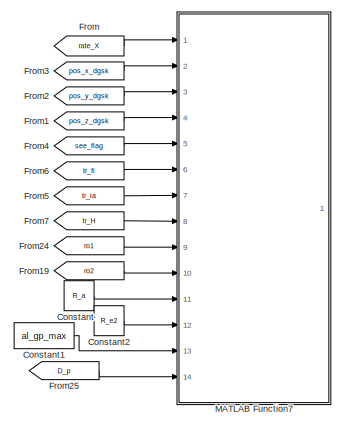
[diagram: root canvas - part 1/2, top center region]
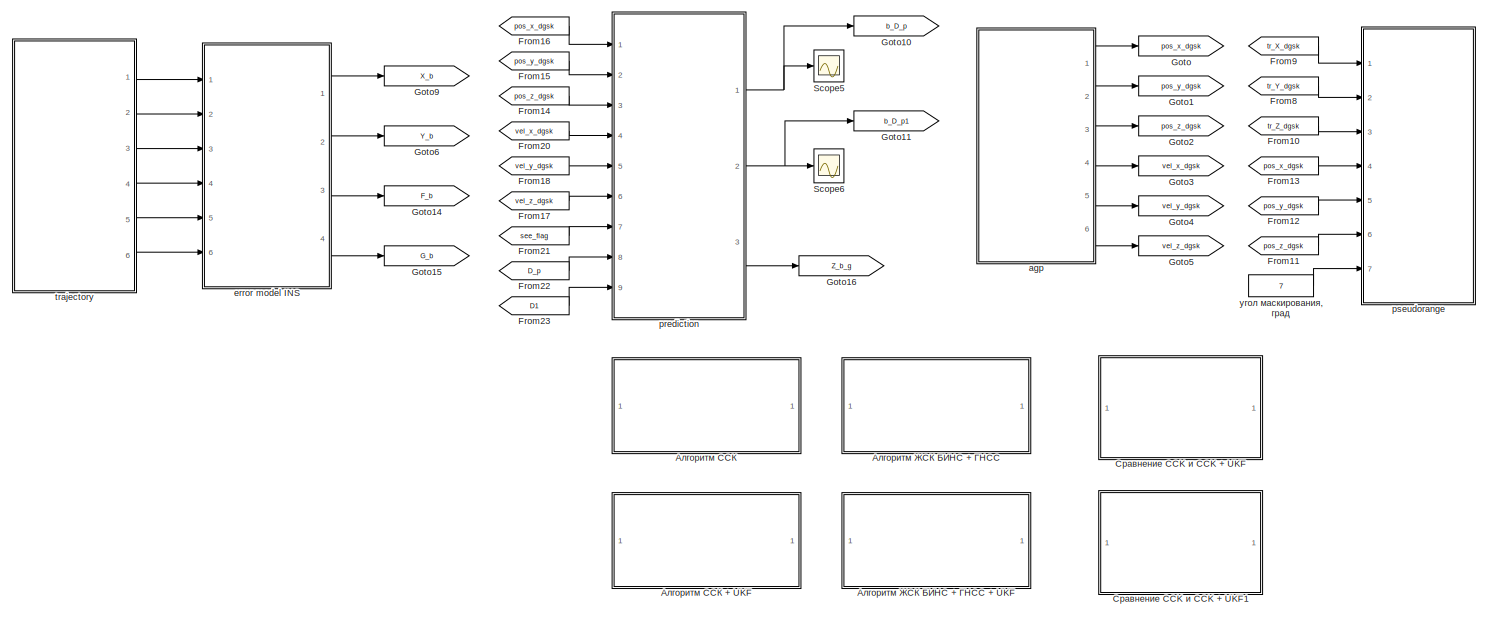
[diagram: root canvas - part 2/2, full width, bottom band]
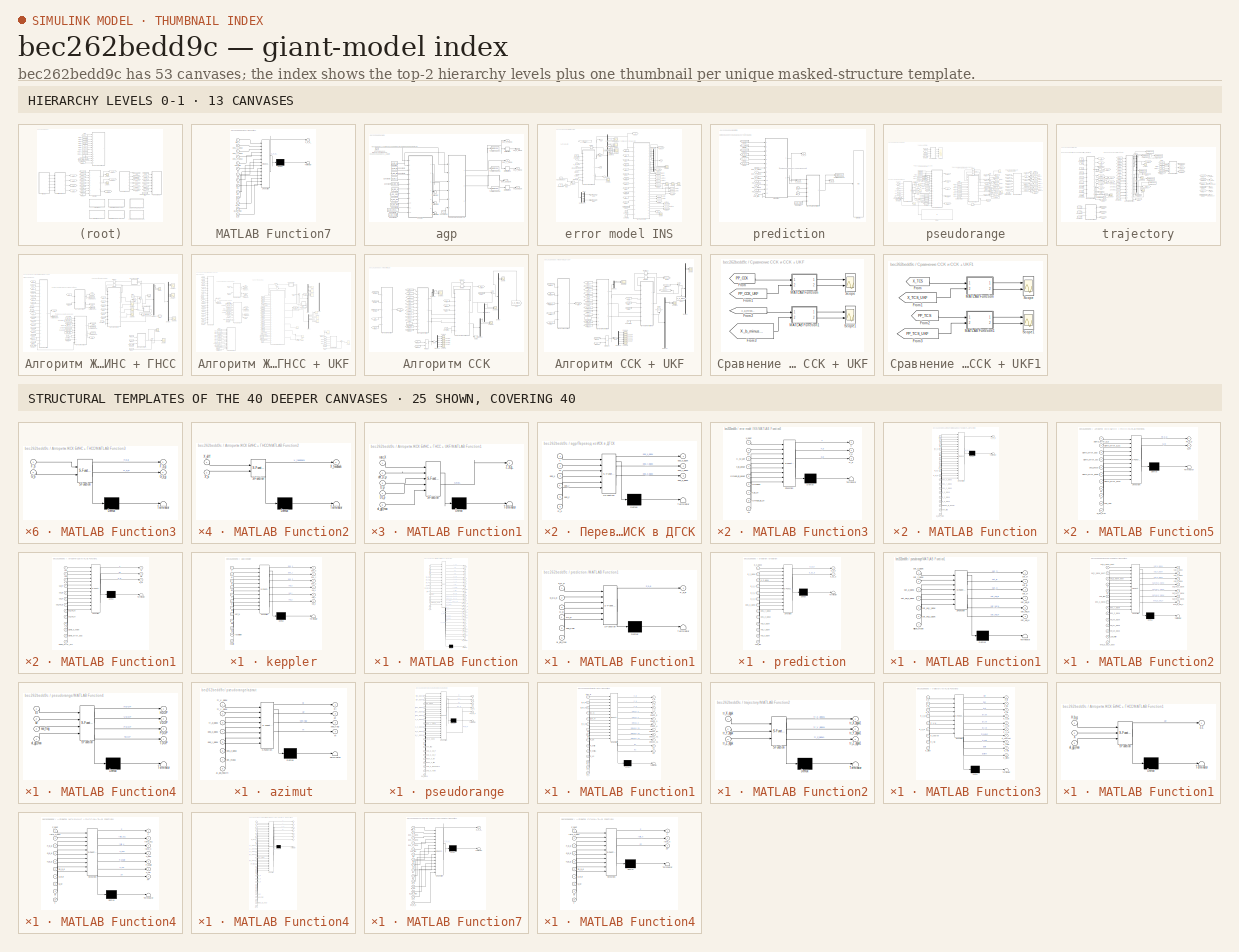
[diagram: thumbnail index - top-2 hierarchy levels (13 canvases) + 25 structural-template representatives of the remaining 40 canvases]
MODEL slx_bec262bedd9c
KIND model
CONFIG AbsTol = auto
CONFIG EnableMultiTasking = off
CONFIG FixedStep = dT
CONFIG MaxStep = auto
CONFIG MinStep = auto
CONFIG RelTol = 1e-3
CONFIG SampleTimeConstraint = Unconstrained
CONFIG Solver = FixedStepAuto
CONFIG SolverName = FixedStepAuto
CONFIG StartTime = 0.0
CONFIG StopTime = 5040
BLOCK [Constant] Constant
  Commented = on
  Value = R_a
BLOCK [Constant] Constant1
  Commented = on
  Value = al_gp_max
BLOCK [Constant] Constant2
  Commented = on
  Value = R_e2
BLOCK [From] From
  Commented = on
  GotoTag = rate_X
  TagVisibility = global
BLOCK [From] From1
  Commented = on
  GotoTag = pos_z_dgsk
  TagVisibility = global
BLOCK [From] From10
  GotoTag = tr_Z_dgsk
  TagVisibility = global
BLOCK [From] From11
  GotoTag = pos_z_dgsk
  TagVisibility = global
BLOCK [From] From12
  GotoTag = pos_y_dgsk
  TagVisibility = global
BLOCK [From] From13
  GotoTag = pos_x_dgsk
  TagVisibility = global
BLOCK [From] From14
  GotoTag = pos_z_dgsk
  TagVisibility = global
BLOCK [From] From15
  GotoTag = pos_y_dgsk
  TagVisibility = global
BLOCK [From] From16
  GotoTag = pos_x_dgsk
  TagVisibility = global
BLOCK [From] From17
  GotoTag = vel_z_dgsk
  TagVisibility = global
BLOCK [From] From18
  GotoTag = vel_y_dgsk
  TagVisibility = global
BLOCK [From] From19
  Commented = on
  GotoTag = ro2
  TagVisibility = global
BLOCK [From] From2
  Commented = on
  GotoTag = pos_y_dgsk
  TagVisibility = global
BLOCK [From] From20
  GotoTag = vel_x_dgsk
  TagVisibility = global
BLOCK [From] From21
  GotoTag = see_flag
  TagVisibility = global
BLOCK [From] From22
  GotoTag = D_p
  TagVisibility = global
BLOCK [From] From23
  GotoTag = D1
  TagVisibility = global
BLOCK [From] From24
  Commented = on
  GotoTag = ro1
  TagVisibility = global
BLOCK [From] From25
  Commented = on
  GotoTag = D_p
  TagVisibility = global
BLOCK [From] From3
  Commented = on
  GotoTag = pos_x_dgsk
  TagVisibility = global
BLOCK [From] From4
  Commented = on
  GotoTag = see_flag
  TagVisibility = global
BLOCK [From] From5
  Commented = on
  GotoTag = tr_la
  TagVisibility = global
BLOCK [From] From6
  Commented = on
  GotoTag = tr_fi
  TagVisibility = global
BLOCK [From] From7
  Commented = on
  GotoTag = tr_H
  TagVisibility = global
BLOCK [From] From8
  GotoTag = tr_Y_dgsk
  TagVisibility = global
BLOCK [From] From9
  GotoTag = tr_X_dgsk
  TagVisibility = global
BLOCK [Goto] Goto
  GotoTag = pos_x_dgsk
  TagVisibility = global
BLOCK [Goto] Goto1
  GotoTag = pos_y_dgsk
  TagVisibility = global
BLOCK [Goto] Goto10
  GotoTag = b_D_p
  TagVisibility = global
BLOCK [Goto] Goto11
  GotoTag = b_D_p1
  TagVisibility = global
BLOCK [Goto] Goto14
  GotoTag = F_b
  TagVisibility = global
BLOCK [Goto] Goto15
  GotoTag = G_b
  TagVisibility = global
BLOCK [Goto] Goto16
  GotoTag = Z_b_g
  TagVisibility = global
BLOCK [Goto] Goto2
  GotoTag = pos_z_dgsk
  TagVisibility = global
BLOCK [Goto] Goto3
  GotoTag = vel_x_dgsk
  TagVisibility = global
BLOCK [Goto] Goto4
  GotoTag = vel_y_dgsk
  TagVisibility = global
BLOCK [Goto] Goto5
  GotoTag = vel_z_dgsk
  TagVisibility = global
BLOCK [Goto] Goto6
  GotoTag = Y_b
  TagVisibility = global
BLOCK [Goto] Goto9
  GotoTag = X_b
  TagVisibility = global
BLOCK [SubSystem] MATLAB Function7
  Commented = on
  ErrorFcn = Stateflow.Translate.translate
  PermitHierarchicalResolution = ExplicitOnly
  Ports = [14, 1]
  RequestExecContextInheritance = off
  SFBlockType = MATLAB Function
  TreatAsAtomicUnit = on
BLOCK [Demux] MATLAB Function7/ Demux 
  DisplayOption = bar
  Outputs = 1
  Ports = [1, 1]
BLOCK [S-Function] MATLAB Function7/ SFunction 
  EnableBusSupport = on
  FunctionName = sf_sfun
  PortCounts = [14 2]
  Ports = [14, 2]
  SFcnIsStateOwnerBlock = off
  SFunctionDeploymentMode = off
  Tag = Stateflow S-Function 42
BLOCK [Terminator] MATLAB Function7/ Terminator 
BLOCK [Inport] MATLAB Function7/D_p
  IconDisplay = Port number
  Port = 14
BLOCK [Inport] MATLAB Function7/R_a
  IconDisplay = Port number
  Port = 11
BLOCK [Inport] MATLAB Function7/R_e2
  IconDisplay = Port number
  Port = 12
BLOCK [Outport] MATLAB Function7/Z_b_g_
  IconDisplay = Port number
BLOCK [Inport] MATLAB Function7/al_gp_max
  IconDisplay = Port number
  Port = 13
BLOCK [Inport] MATLAB Function7/pos_x_dgsk
  IconDisplay = Port number
  Port = 2
BLOCK [Inport] MATLAB Function7/pos_y_dgsk
  IconDisplay = Port number
  Port = 3
BLOCK [Inport] MATLAB Function7/pos_z_dgsk
  IconDisplay = Port number
  Port = 4
BLOCK [Inport] MATLAB Function7/rate_X
  IconDisplay = Port number
BLOCK [Inport] MATLAB Function7/ro1
  IconDisplay = Port number
  Port = 9
BLOCK [Inport] MATLAB Function7/ro2
  IconDisplay = Port number
  Port = 10
BLOCK [Inport] MATLAB Function7/see_flag
  IconDisplay = Port number
  Port = 5
BLOCK [Inport] MATLAB Function7/tr_H
  IconDisplay = Port number
  Port = 8
BLOCK [Inport] MATLAB Function7/tr_fi
  IconDisplay = Port number
  Port = 6
BLOCK [Inport] MATLAB Function7/tr_la
  IconDisplay = Port number
  Port = 7
BLOCK [Scope] Scope5
  Floating = off
  NumInputPorts = 1
  Ports = [1]
  ScopeSpecificationString = Simulink.scopes.TimeScopeBlockCfg('CurrentConfiguration', extmgr.ConfigurationSet(extmgr.Configuration('Core','General UI',true),extmgr.Configuration('Core','Source UI',true),extmgr.Configuration('Sources','WiredSimulink',true,'DataLoggingVariableName','ScopeData1'),extmgr.Configuration('Visuals','Time Domain',true,'SerializedDisplays',{struct('MinYLimReal','19461915.95826','MaxYLimReal','26623872...<+2169ch>
BLOCK [Scope] Scope6
  Floating = off
  NumInputPorts = 1
  Ports = [1]
  ScopeSpecificationString = Simulink.scopes.TimeScopeBlockCfg('CurrentConfiguration', extmgr.ConfigurationSet(extmgr.Configuration('Core','General UI',true),extmgr.Configuration('Core','Source UI',true),extmgr.Configuration('Sources','WiredSimulink',true,'DataLoggingVariableName','ScopeData2'),extmgr.Configuration('Visuals','Time Domain',true,'SerializedDisplays',{struct('MinYLimReal','-1183.53216','MaxYLimReal','1290.39266'...<+2168ch>
BLOCK [SubSystem] agp
  Ports = [0, 6]
  RequestExecContextInheritance = off
BLOCK [Clock] agp/Clock
BLOCK [Constant] agp/Constant
  Value = al_gp_M
BLOCK [Constant] agp/Constant1
  Value = al_gp_t0
BLOCK [Constant] agp/Constant10
  Value = R_u
BLOCK [Constant] agp/Constant11
  Value = al_gp_health
BLOCK [Constant] agp/Constant2
  Value = al_gp_lan
BLOCK [Constant] agp/Constant3
  Value = al_gp_i
BLOCK [Constant] agp/Constant4
  Value = al_gp_w
BLOCK [Constant] agp/Constant5
  Value = al_gp_e
BLOCK [Constant] agp/Constant6
  Value = al_gp_sqrt_a
BLOCK [Constant] agp/Constant7
  Value = al_gp_m0
BLOCK [Constant] agp/Constant8
  Value = al_gp_mu
BLOCK [Constant] agp/Constant9
  Value = al_gp_resolution
BLOCK [Derivative] agp/Derivative
BLOCK [Derivative] agp/Derivative1
BLOCK [Derivative] agp/Derivative2
BLOCK [Terminator] agp/Terminator
BLOCK [Terminator] agp/Terminator1
BLOCK [Terminator] agp/Terminator2
BLOCK [ToWorkspace] agp/To Workspace4
  Commented = on
  FixptAsFi = on
  MaxDataPoints = inf
  Ports = [1]
  SampleTime = -1
  Save2DSignal = 2-D array (concatenate along first dimension)
  VariableName = pos_x_dgsk
BLOCK [ToWorkspace] agp/To Workspace5
  Commented = on
  FixptAsFi = on
  MaxDataPoints = inf
  Ports = [1]
  SampleTime = -1
  Save2DSignal = 2-D array (concatenate along first dimension)
  VariableName = pos_y_dgsk
BLOCK [ToWorkspace] agp/To Workspace6
  Commented = on
  FixptAsFi = on
  MaxDataPoints = inf
  Ports = [1]
  SampleTime = -1
  Save2DSignal = 2-D array (concatenate along first dimension)
  VariableName = pos_z_dgsk
BLOCK [SubSystem] agp/keppler
  ErrorFcn = Stateflow.Translate.translate
  PermitHierarchicalResolution = ExplicitOnly
  Ports = [12, 6]
  RequestExecContextInheritance = off
  SFBlockType = MATLAB Function
  TreatAsAtomicUnit = on
BLOCK [Demux] agp/keppler/ Demux 
  DisplayOption = bar
  Outputs = 1
  Ports = [1, 1]
BLOCK [S-Function] agp/keppler/ SFunction 
  EnableBusSupport = on
  FunctionName = sf_sfun
  PortCounts = [12 7]
  Ports = [12, 7]
  SFcnIsStateOwnerBlock = off
  SFunctionDeploymentMode = off
  Tag = Stateflow S-Function 8
BLOCK [Terminator] agp/keppler/ Terminator 
BLOCK [Inport] agp/keppler/M
  IconDisplay = Port number
  Port = 2
BLOCK [Inport] agp/keppler/e
  IconDisplay = Port number
  Port = 7
BLOCK [Inport] agp/keppler/health
  IconDisplay = Port number
  Port = 12
BLOCK [Inport] agp/keppler/i
  IconDisplay = Port number
  Port = 5
BLOCK [Inport] agp/keppler/lan
  IconDisplay = Port number
  Port = 4
BLOCK [Inport] agp/keppler/m0
  IconDisplay = Port number
  Port = 9
BLOCK [Inport] agp/keppler/mu
  IconDisplay = Port number
  Port = 10
BLOCK [Outport] agp/keppler/pos_x
  IconDisplay = Port number
  VectorParamsAs1DForOutWhenUnconnected = off
BLOCK [Outport] agp/keppler/pos_y
  IconDisplay = Port number
  Port = 2
  VectorParamsAs1DForOutWhenUnconnected = off
BLOCK [Outport] agp/keppler/pos_z
  IconDisplay = Port number
  Port = 3
  VectorParamsAs1DForOutWhenUnconnected = off
BLOCK [Inport] agp/keppler/resolution
  IconDisplay = Port number
  Port = 11
BLOCK [Inport] agp/keppler/sqrt_a
  IconDisplay = Port number
  Port = 8
BLOCK [Inport] agp/keppler/t
  IconDisplay = Port number
BLOCK [Inport] agp/keppler/t0
  IconDisplay = Port number
  Port = 3
BLOCK [Outport] agp/keppler/vel_x
  IconDisplay = Port number
  Port = 4
BLOCK [Outport] agp/keppler/vel_y
  IconDisplay = Port number
  Port = 5
BLOCK [Outport] agp/keppler/vel_z
  IconDisplay = Port number
  Port = 6
BLOCK [Inport] agp/keppler/w
  IconDisplay = Port number
  Port = 6
BLOCK [Outport] agp/pos_x_dgsk
  IconDisplay = Port number
  VectorParamsAs1DForOutWhenUnconnected = off
BLOCK [Outport] agp/pos_y_dgsk
  IconDisplay = Port number
  Port = 2
  VectorParamsAs1DForOutWhenUnconnected = off
BLOCK [Outport] agp/pos_z_dgsk
  IconDisplay = Port number
  Port = 3
  VectorParamsAs1DForOutWhenUnconnected = off
BLOCK [Outport] agp/vel_x_dgsk
  IconDisplay = Port number
  Port = 4
  VectorParamsAs1DForOutWhenUnconnected = off
BLOCK [Outport] agp/vel_y_dgsk
  IconDisplay = Port number
  Port = 5
  VectorParamsAs1DForOutWhenUnconnected = off
BLOCK [Outport] agp/vel_z_dgsk
  IconDisplay = Port number
  Port = 6
  VectorParamsAs1DForOutWhenUnconnected = off
BLOCK [SubSystem] agp/Перевод из ИСК в ДГСК
  ErrorFcn = Stateflow.Translate.translate
  PermitHierarchicalResolution = ExplicitOnly
  Ports = [6, 3]
  RequestExecContextInheritance = off
  SFBlockType = MATLAB Function
  TreatAsAtomicUnit = on
BLOCK [Demux] agp/Перевод из ИСК в ДГСК/ Demux 
  DisplayOption = bar
  Outputs = 1
  Ports = [1, 1]
BLOCK [S-Function] agp/Перевод из ИСК в ДГСК/ SFunction 
  EnableBusSupport = on
  FunctionName = sf_sfun
  PortCounts = [6 4]
  Ports = [6, 4]
  SFcnIsStateOwnerBlock = off
  SFunctionDeploymentMode = off
  Tag = Stateflow S-Function 7
BLOCK [Terminator] agp/Перевод из ИСК в ДГСК/ Terminator 
BLOCK [Inport] agp/Перевод из ИСК в ДГСК/M
  IconDisplay = Port number
  Port = 2
BLOCK [Inport] agp/Перевод из ИСК в ДГСК/R_u
  IconDisplay = Port number
  Port = 6
BLOCK [Inport] agp/Перевод из ИСК в ДГСК/pos_x
  IconDisplay = Port number
  Port = 3
BLOCK [Outport] agp/Перевод из ИСК в ДГСК/pos_x_dgsk
  IconDisplay = Port number
  VectorParamsAs1DForOutWhenUnconnected = off
BLOCK [Inport] agp/Перевод из ИСК в ДГСК/pos_y
  IconDisplay = Port number
  Port = 4
BLOCK [Outport] agp/Перевод из ИСК в ДГСК/pos_y_dgsk
  IconDisplay = Port number
  Port = 2
  VectorParamsAs1DForOutWhenUnconnected = off
BLOCK [Inport] agp/Перевод из ИСК в ДГСК/pos_z
  IconDisplay = Port number
  Port = 5
BLOCK [Outport] agp/Перевод из ИСК в ДГСК/pos_z_dgsk
  IconDisplay = Port number
  Port = 3
  VectorParamsAs1DForOutWhenUnconnected = off
BLOCK [Inport] agp/Перевод из ИСК в ДГСК/t
  IconDisplay = Port number
BLOCK [SubSystem] error model INS
  Ports = [6, 4]
  RequestExecContextInheritance = off
BLOCK [Inport] error model INS/C_sv_gor
  IconDisplay = Port number
BLOCK [Constant] error model INS/Constant
  Value = R_a
BLOCK [Constant] error model INS/Constant1
  Value = dT
BLOCK [Constant] error model INS/Constant18
  SampleTime = dT
  Value = W
BLOCK [Constant] error model INS/Constant2
  Value = R_e2
BLOCK [Demux] error model INS/Demux
  DisplayOption = bar
  Outputs = 21
  Ports = [1, 21]
BLOCK [Demux] error model INS/Demux1
  DisplayOption = bar
  Outputs = 6
  Ports = [1, 6]
BLOCK [Outport] error model INS/F_b 
  IconDisplay = Port number
  Port = 3
  VectorParamsAs1DForOutWhenUnconnected = off
BLOCK [From] error model INS/From
  GotoTag = X_feedback_TCS
BLOCK [From] error model INS/From1
  GotoTag = tr_la
  TagVisibility = global
BLOCK [From] error model INS/From10
  GotoTag = ro2
  TagVisibility = global
BLOCK [From] error model INS/From11
  GotoTag = tr_V_H
  TagVisibility = global
BLOCK [From] error model INS/From12
  GotoTag = Omega_id_geogr
  TagVisibility = global
BLOCK [From] error model INS/From13
  GotoTag = tr_yaw
  TagVisibility = global
BLOCK [From] error model INS/From2
  GotoTag = tr_V_E
  TagVisibility = global
BLOCK [From] error model INS/From3
  GotoTag = tr_V_N
  TagVisibility = global
BLOCK [From] error model INS/From4
  GotoTag = tr_course
  TagVisibility = global
BLOCK [From] error model INS/From5
  GotoTag = tr_roll
  TagVisibility = global
BLOCK [From] error model INS/From6
  GotoTag = tr_fi
  TagVisibility = global
BLOCK [From] error model INS/From7
  GotoTag = tr_H
  TagVisibility = global
BLOCK [From] error model INS/From8
  GotoTag = tr_pitch
  TagVisibility = global
BLOCK [From] error model INS/From9
  GotoTag = ro1
  TagVisibility = global
BLOCK [Outport] error model INS/G_b
  IconDisplay = Port number
  Port = 4
  VectorParamsAs1DForOutWhenUnconnected = off
BLOCK [Gain] error model INS/Gain
  OutDataTypeStr = Inherit: Inherit via internal rule
  ParamDataTypeStr = Inherit: Inherit via internal rule
  SaturateOnIntegerOverflow = off
BLOCK [Gain] error model INS/Gain1
  OutDataTypeStr = Inherit: Inherit via internal rule
  ParamDataTypeStr = Inherit: Inherit via internal rule
  SaturateOnIntegerOverflow = off
BLOCK [Goto] error model INS/Goto
  GotoTag = del_b_la
  TagVisibility = global
BLOCK [Goto] error model INS/Goto1
  GotoTag = del_b_fi
  TagVisibility = global
BLOCK [Goto] error model INS/Goto10
  GotoTag = tr_X_dgsk
  TagVisibility = global
BLOCK [Goto] error model INS/Goto11
  GotoTag = tr_Y_dgsk
  TagVisibility = global
BLOCK [Goto] error model INS/Goto12
  GotoTag = tr_Z_dgsk
  TagVisibility = global
BLOCK [Goto] error model INS/Goto13
  GotoTag = del_b_H
  TagVisibility = global
BLOCK [Goto] error model INS/Goto14
  GotoTag = del_b_V_E
  TagVisibility = global
BLOCK [Goto] error model INS/Goto15
  GotoTag = del_b_V_N
  TagVisibility = global
BLOCK [Goto] error model INS/Goto16
  GotoTag = del_b_V_H
  TagVisibility = global
BLOCK [Goto] error model INS/Goto17
  GotoTag = R1
  TagVisibility = global
BLOCK [Goto] error model INS/Goto18
  GotoTag = X
  TagVisibility = global
BLOCK [Goto] error model INS/Goto19
  GotoTag = b_yaw
  TagVisibility = global
BLOCK [Goto] error model INS/Goto2
  GotoTag = b_X_dgsk
  TagVisibility = global
BLOCK [Goto] error model INS/Goto20
  GotoTag = b_course
  TagVisibility = global
BLOCK [Goto] error model INS/Goto3
  GotoTag = b_Y_dgsk
  TagVisibility = global
BLOCK [Goto] error model INS/Goto4
  GotoTag = b_Z_dgsk
  TagVisibility = global
BLOCK [Goto] error model INS/Goto5
  GotoTag = b_V_1
  TagVisibility = global
BLOCK [Goto] error model INS/Goto6
  GotoTag = sigma_DUS
  TagVisibility = global
BLOCK [Goto] error model INS/Goto7
  GotoTag = sigma_acs
  TagVisibility = global
BLOCK [Goto] error model INS/Goto8
  GotoTag = b_V_2
  TagVisibility = global
BLOCK [Goto] error model INS/Goto9
  GotoTag = b_V_3
  TagVisibility = global
BLOCK [SubSystem] error model INS/MATLAB Function
  ErrorFcn = Stateflow.Translate.translate
  PermitHierarchicalResolution = ExplicitOnly
  Ports = [16, 27]
  RequestExecContextInheritance = off
  SFBlockType = MATLAB Function
  TreatAsAtomicUnit = on
BLOCK [Demux] error model INS/MATLAB Function/ Demux 
  DisplayOption = bar
  Outputs = 1
  Ports = [1, 1]
BLOCK [S-Function] error model INS/MATLAB Function/ SFunction 
  EnableBusSupport = on
  FunctionName = sf_sfun
  PortCounts = [16 28]
  Ports = [16, 28]
  SFcnIsStateOwnerBlock = off
  SFunctionDeploymentMode = off
  Tag = Stateflow S-Function 11
BLOCK [Terminator] error model INS/MATLAB Function/ Terminator 
BLOCK [Inport] error model INS/MATLAB Function/Omega_id_geogr
  IconDisplay = Port number
  Port = 14
BLOCK [Outport] error model INS/MATLAB Function/R1
  IconDisplay = Port number
  Port = 26
BLOCK [Inport] error model INS/MATLAB Function/R_a
  IconDisplay = Port number
  Port = 15
BLOCK [Inport] error model INS/MATLAB Function/R_e2
  IconDisplay = Port number
  Port = 16
BLOCK [Inport] error model INS/MATLAB Function/X
  IconDisplay = Port number
BLOCK [Outport] error model INS/MATLAB Function/b_H
  IconDisplay = Port number
  Port = 4
  VectorParamsAs1DForOutWhenUnconnected = off
BLOCK [Outport] error model INS/MATLAB Function/b_V_1
  IconDisplay = Port number
  Port = 20
BLOCK [Outport] error model INS/MATLAB Function/b_V_2
  IconDisplay = Port number
  Port = 21
BLOCK [Outport] error model INS/MATLAB Function/b_V_3
  IconDisplay = Port number
  Port = 22
BLOCK [Outport] error model INS/MATLAB Function/b_V_E
  IconDisplay = Port number
  Port = 5
  VectorParamsAs1DForOutWhenUnconnected = off
BLOCK [Outport] error model INS/MATLAB Function/b_V_H
  IconDisplay = Port number
  Port = 7
  VectorParamsAs1DForOutWhenUnconnected = off
BLOCK [Outport] error model INS/MATLAB Function/b_V_N
  IconDisplay = Port number
  Port = 6
  VectorParamsAs1DForOutWhenUnconnected = off
BLOCK [Outport] error model INS/MATLAB Function/b_X_dgsk
  IconDisplay = Port number
  Port = 17
BLOCK [Outport] error model INS/MATLAB Function/b_Y_dgsk
  IconDisplay = Port number
  Port = 18
BLOCK [Outport] error model INS/MATLAB Function/b_Z_dgsk
  IconDisplay = Port number
  Port = 19
BLOCK [Outport] error model INS/MATLAB Function/b_course
  IconDisplay = Port number
  Port = 9
  VectorParamsAs1DForOutWhenUnconnected = off
BLOCK [Outport] error model INS/MATLAB Function/b_fi
  IconDisplay = Port number
  Port = 3
  VectorParamsAs1DForOutWhenUnconnected = off
BLOCK [Outport] error model INS/MATLAB Function/b_la
  IconDisplay = Port number
  Port = 2
  VectorParamsAs1DForOutWhenUnconnected = off
BLOCK [Outport] error model INS/MATLAB Function/b_pitch
  IconDisplay = Port number
  Port = 10
  VectorParamsAs1DForOutWhenUnconnected = off
BLOCK [Outport] error model INS/MATLAB Function/b_roll
  IconDisplay = Port number
  Port = 8
  VectorParamsAs1DForOutWhenUnconnected = off
BLOCK [Outport] error model INS/MATLAB Function/b_yaw
  IconDisplay = Port number
BLOCK [Outport] error model INS/MATLAB Function/del_angles
  IconDisplay = Port number
  Port = 27
BLOCK [Outport] error model INS/MATLAB Function/del_b_H
  IconDisplay = Port number
  Port = 13
BLOCK [Outport] error model INS/MATLAB Function/del_b_V_E
  IconDisplay = Port number
  Port = 14
BLOCK [Outport] error model INS/MATLAB Function/del_b_V_H
  IconDisplay = Port number
  Port = 16
BLOCK [Outport] error model INS/MATLAB Function/del_b_V_N
  IconDisplay = Port number
  Port = 15
BLOCK [Outport] error model INS/MATLAB Function/del_b_fi
  IconDisplay = Port number
  Port = 12
BLOCK [Outport] error model INS/MATLAB Function/del_b_la
  IconDisplay = Port number
  Port = 11
BLOCK [Inport] error model INS/MATLAB Function/ro1
  IconDisplay = Port number
  Port = 12
BLOCK [Inport] error model INS/MATLAB Function/ro2
  IconDisplay = Port number
  Port = 13
BLOCK [Inport] error model INS/MATLAB Function/tr_H
  IconDisplay = Port number
  Port = 4
BLOCK [Inport] error model INS/MATLAB Function/tr_V_E
  IconDisplay = Port number
  Port = 5
BLOCK [Inport] error model INS/MATLAB Function/tr_V_H
  IconDisplay = Port number
  Port = 7
BLOCK [Inport] error model INS/MATLAB Function/tr_V_N
  IconDisplay = Port number
  Port = 6
BLOCK [Outport] error model INS/MATLAB Function/tr_X_dgsk
  IconDisplay = Port number
  Port = 23
BLOCK [Outport] error model INS/MATLAB Function/tr_Y_dgsk
  IconDisplay = Port number
  Port = 24
BLOCK [Outport] error model INS/MATLAB Function/tr_Z_dgsk
  IconDisplay = Port number
  Port = 25
BLOCK [Inport] error model INS/MATLAB Function/tr_course
  IconDisplay = Port number
  Port = 9
BLOCK [Inport] error model INS/MATLAB Function/tr_fi
  IconDisplay = Port number
  Port = 2
BLOCK [Inport] error model INS/MATLAB Function/tr_la
  IconDisplay = Port number
  Port = 3
BLOCK [Inport] error model INS/MATLAB Function/tr_pitch
  IconDisplay = Port number
  Port = 11
BLOCK [Inport] error model INS/MATLAB Function/tr_roll
  IconDisplay = Port number
  Port = 10
BLOCK [Inport] error model INS/MATLAB Function/tr_yaw
  IconDisplay = Port number
  Port = 8
BLOCK [SubSystem] error model INS/MATLAB Function3
  ErrorFcn = Stateflow.Translate.translate
  PermitHierarchicalResolution = ExplicitOnly
  Ports = [9, 3]
  RequestExecContextInheritance = off
  SFBlockType = MATLAB Function
  TreatAsAtomicUnit = on
BLOCK [Demux] error model INS/MATLAB Function3/ Demux 
  DisplayOption = bar
  Outputs = 1
  Ports = [1, 1]
BLOCK [S-Function] error model INS/MATLAB Function3/ SFunction 
  EnableBusSupport = on
  FunctionName = sf_sfun
  PortCounts = [9 4]
  Ports = [9, 4]
  SFcnIsStateOwnerBlock = off
  SFunctionDeploymentMode = off
  Tag = Stateflow S-Function 12
BLOCK [Terminator] error model INS/MATLAB Function3/ Terminator 
BLOCK [Inport] error model INS/MATLAB Function3/C_sv_gor
  IconDisplay = Port number
  Port = 3
BLOCK [Outport] error model INS/MATLAB Function3/F_b
  IconDisplay = Port number
  Port = 2
BLOCK [Outport] error model INS/MATLAB Function3/G_b
  IconDisplay = Port number
  Port = 3
BLOCK [Inport] error model INS/MATLAB Function3/Omega1
  IconDisplay = Port number
  Port = 6
BLOCK [Inport] error model INS/MATLAB Function3/Omega_id_geogr
  IconDisplay = Port number
  Port = 5
BLOCK [Inport] error model INS/MATLAB Function3/Omega_id_sv
  IconDisplay = Port number
  Port = 8
BLOCK [Inport] error model INS/MATLAB Function3/W
  IconDisplay = Port number
  Port = 9
BLOCK [Outport] error model INS/MATLAB Function3/X
  IconDisplay = Port number
  VectorParamsAs1DForOutWhenUnconnected = off
BLOCK [Inport] error model INS/MATLAB Function3/X_past
  IconDisplay = Port number
BLOCK [Inport] error model INS/MATLAB Function3/dT
  IconDisplay = Port number
  Port = 2
BLOCK [Inport] error model INS/MATLAB Function3/n_id_geogr
  IconDisplay = Port number
  Port = 4
BLOCK [Inport] error model INS/MATLAB Function3/n_id_sv
  IconDisplay = Port number
  Port = 7
BLOCK [Memory] error model INS/Memory
  InitialCondition = X0
BLOCK [Mux] error model INS/Mux
  DisplayOption = bar
  Inputs = 9
  Ports = [9, 1]
BLOCK [Mux] error model INS/Mux1
  DisplayOption = bar
  Inputs = 3
  Ports = [3, 1]
BLOCK [Mux] error model INS/Mux2
  DisplayOption = bar
  Inputs = 3
  Ports = [3, 1]
BLOCK [Inport] error model INS/Omega1
  IconDisplay = Port number
  Port = 4
BLOCK [Inport] error model INS/Omega_id_geogr
  IconDisplay = Port number
  Port = 3
BLOCK [Inport] error model INS/Omega_id_sv
  IconDisplay = Port number
  Port = 6
BLOCK [Product] error model INS/Product
  InputSameDT = off
  OutDataTypeStr = Inherit: Inherit via internal rule
  Ports = [2, 1]
  RndMeth = Floor
  SaturateOnIntegerOverflow = off
BLOCK [Reference] error model INS/Radians to Degrees  REF=simulink_extras/Transformations/Radians
to Degrees
  Ports = [1, 1]
  SourceBlock = simulink_extras/Transformations/Radians\nto Degrees
  SourceProductBaseCode = SL
  SourceType = RadiansToDegrees
BLOCK [Reference] error model INS/Radians to Degrees1  REF=simulink_extras/Transformations/Radians
to Degrees
  Ports = [1, 1]
  SourceBlock = simulink_extras/Transformations/Radians\nto Degrees
  SourceProductBaseCode = SL
  SourceType = RadiansToDegrees
BLOCK [Reference] error model INS/Radians to Degrees2  REF=simulink_extras/Transformations/Radians
to Degrees
  Ports = [1, 1]
  SourceBlock = simulink_extras/Transformations/Radians\nto Degrees
  SourceProductBaseCode = SL
  SourceType = RadiansToDegrees
BLOCK [RandomNumber] error model INS/Random Number
BLOCK [Scope] error model INS/Scope
  Floating = off
  NumInputPorts = 1
  Ports = [1]
  ScopeSpecificationString = Simulink.scopes.TimeScopeBlockCfg('CurrentConfiguration', extmgr.ConfigurationSet(extmgr.Configuration('Core','General UI',true),extmgr.Configuration('Core','Source UI',true),extmgr.Configuration('Sources','WiredSimulink',true,'DataLoggingVariableName','ScopeData1'),extmgr.Configuration('Visuals','Time Domain',true,'SerializedDisplays',{struct('MinYLimReal','-0.00007','MaxYLimReal','0.00052','YLab...<+1482ch>
BLOCK [Scope] error model INS/Scope1
  Floating = off
  NumInputPorts = 3
  Ports = [3]
  ScopeSpecificationString = Simulink.scopes.TimeScopeBlockCfg('CurrentConfiguration', extmgr.ConfigurationSet(extmgr.Configuration('Core','General UI',true),extmgr.Configuration('Core','Source UI',true),extmgr.Configuration('Sources','WiredSimulink',true,'DataLoggingVariableName','ScopeData1'),extmgr.Configuration('Visuals','Time Domain',true,'SerializedDisplays',{struct('MinYLimReal','-3.48454','MaxYLimReal','31.36083','YLa...<+1465ch>
BLOCK [Scope] error model INS/Scope10
  Floating = off
  NumInputPorts = 2
  Ports = [2]
  ScopeSpecificationString = Simulink.scopes.TimeScopeBlockCfg('CurrentConfiguration', extmgr.ConfigurationSet(extmgr.Configuration('Core','General UI',true,'FigureColor',[0.941176470588235 0.941176470588235 0.941176470588235]),extmgr.Configuration('Core','Source UI',true),extmgr.Configuration('Sources','WiredSimulink',true,'DataLoggingVariableName','x1x2','DataLogging',true,'DataLoggingSaveFormat','StructureWithTime'),extmgr...<+1978ch>
BLOCK [Scope] error model INS/Scope3
  Floating = off
  NumInputPorts = 1
  Ports = [1]
  ScopeSpecificationString = Simulink.scopes.TimeScopeBlockCfg('CurrentConfiguration', extmgr.ConfigurationSet(extmgr.Configuration('Core','General UI',true,'FigureColor',[0.941176470588235 0.941176470588235 0.941176470588235]),extmgr.Configuration('Core','Source UI',true),extmgr.Configuration('Sources','WiredSimulink',true,'DataLoggingVariableName','ScopeData6'),extmgr.Configuration('Visuals','Time Domain',true,'SerializedDi...<+5173ch>
BLOCK [Scope] error model INS/Scope4
  Floating = off
  NumInputPorts = 3
  Ports = [3]
  ScopeSpecificationString = Simulink.scopes.TimeScopeBlockCfg('CurrentConfiguration', extmgr.ConfigurationSet(extmgr.Configuration('Core','General UI',true,'FigureColor',[0.941176470588235 0.941176470588235 0.941176470588235]),extmgr.Configuration('Core','Source UI',true),extmgr.Configuration('Sources','WiredSimulink',true,'DataLoggingVariableName','x4x5','DataLogging',true,'DataLoggingSaveFormat','StructureWithTime'),extmgr...<+1970ch>
BLOCK [Scope] error model INS/Scope5
  Floating = off
  NumInputPorts = 3
  Ports = [3]
  ScopeSpecificationString = Simulink.scopes.TimeScopeBlockCfg('CurrentConfiguration', extmgr.ConfigurationSet(extmgr.Configuration('Core','General UI',true,'FigureColor',[0.941176470588235 0.941176470588235 0.941176470588235]),extmgr.Configuration('Core','Source UI',true),extmgr.Configuration('Sources','WiredSimulink',true,'DataLoggingVariableName','x7x8x9','DataLogging',true,'DataLoggingSaveFormat','StructureWithTime'),extm...<+2027ch>
BLOCK [Scope] error model INS/Scope6
  Floating = off
  NumInputPorts = 1
  Ports = [1]
  ScopeSpecificationString = Simulink.scopes.TimeScopeBlockCfg('CurrentConfiguration', extmgr.ConfigurationSet(extmgr.Configuration('Core','General UI',true),extmgr.Configuration('Core','Source UI',true),extmgr.Configuration('Sources','WiredSimulink',true,'DataLoggingVariableName','ScopeData14'),extmgr.Configuration('Visuals','Time Domain',true,'SerializedDisplays',{struct('MinYLimReal','4788140.2992','MaxYLimReal','4788374.5...<+1459ch>
BLOCK [Scope] error model INS/Scope7
  Floating = off
  NumInputPorts = 1
  Ports = [1]
  ScopeSpecificationString = Simulink.scopes.TimeScopeBlockCfg('CurrentConfiguration', extmgr.ConfigurationSet(extmgr.Configuration('Core','General UI',true),extmgr.Configuration('Core','Source UI',true),extmgr.Configuration('Sources','WiredSimulink',true,'DataLoggingVariableName','ScopeData15'),extmgr.Configuration('Visuals','Time Domain',true,'SerializedDisplays',{struct('MinYLimReal','111286.088','MaxYLimReal','111311.1579...<+1448ch>
BLOCK [Scope] error model INS/Scope8
  Floating = off
  NumInputPorts = 1
  Ports = [1]
  ScopeSpecificationString = Simulink.scopes.TimeScopeBlockCfg('CurrentConfiguration', extmgr.ConfigurationSet(extmgr.Configuration('Core','General UI',true),extmgr.Configuration('Core','Source UI',true),extmgr.Configuration('Sources','WiredSimulink',true,'DataLoggingVariableName','ScopeData16'),extmgr.Configuration('Visuals','Time Domain',true,'SerializedDisplays',{struct('MinYLimReal','11315.56702','MaxYLimReal','211315.567...<+1452ch>
BLOCK [Outport] error model INS/X_b
  IconDisplay = Port number
  VectorParamsAs1DForOutWhenUnconnected = off
BLOCK [Outport] error model INS/Y_b
  IconDisplay = Port number
  Port = 2
  VectorParamsAs1DForOutWhenUnconnected = off
BLOCK [Inport] error model INS/n_id_geogr
  IconDisplay = Port number
  Port = 2
BLOCK [Inport] error model INS/n_id_sv
  IconDisplay = Port number
  Port = 5
BLOCK [SubSystem] prediction 
  Ports = [9, 3]
  RequestExecContextInheritance = off
BLOCK [Constant] prediction /Constant
  Value = al_gp_max
BLOCK [Inport] prediction /D1_p
  IconDisplay = Port number
  Port = 9
BLOCK [Inport] prediction /D_p
  IconDisplay = Port number
  Port = 8
BLOCK [Display] prediction /Display
  Decimation = 1
  Ports = [1]
BLOCK [From] prediction /From1
  GotoTag = b_V_3
  TagVisibility = global
BLOCK [From] prediction /From10
  GotoTag = b_Z_dgsk
  TagVisibility = global
BLOCK [From] prediction /From2
  GotoTag = b_V_2
  TagVisibility = global
BLOCK [From] prediction /From3
  GotoTag = b_V_1
  TagVisibility = global
BLOCK [From] prediction /From8
  GotoTag = b_Y_dgsk
  TagVisibility = global
BLOCK [From] prediction /From9
  GotoTag = b_X_dgsk
  TagVisibility = global
BLOCK [SubSystem] prediction /MATLAB Function1
  ErrorFcn = Stateflow.Translate.translate
  PermitHierarchicalResolution = ExplicitOnly
  Ports = [6, 1]
  RequestExecContextInheritance = off
  SFBlockType = MATLAB Function
  TreatAsAtomicUnit = on
BLOCK [Demux] prediction /MATLAB Function1/ Demux 
  DisplayOption = bar
  Outputs = 1
  Ports = [1, 1]
BLOCK [S-Function] prediction /MATLAB Function1/ SFunction 
  EnableBusSupport = on
  FunctionName = sf_sfun
  PortCounts = [6 2]
  Ports = [6, 2]
  SFcnIsStateOwnerBlock = off
  SFunctionDeploymentMode = off
  Tag = Stateflow S-Function 14
BLOCK [Terminator] prediction /MATLAB Function1/ Terminator 
BLOCK [Inport] prediction /MATLAB Function1/D1_p
  IconDisplay = Port number
  Port = 4
BLOCK [Inport] prediction /MATLAB Function1/D_p
  IconDisplay = Port number
  Port = 3
BLOCK [Outport] prediction /MATLAB Function1/Z_b_g
  IconDisplay = Port number
  VectorParamsAs1DForOutWhenUnconnected = off
BLOCK [Inport] prediction /MATLAB Function1/al_gp_max
  IconDisplay = Port number
  Port = 6
BLOCK [Inport] prediction /MATLAB Function1/b_D1_p
  IconDisplay = Port number
  Port = 2
BLOCK [Inport] prediction /MATLAB Function1/b_D_p
  IconDisplay = Port number
BLOCK [Inport] prediction /MATLAB Function1/see_flag
  IconDisplay = Port number
  Port = 5
BLOCK [ToWorkspace] prediction /To Workspace4
  FixptAsFi = on
  MaxDataPoints = inf
  Ports = [1]
  SampleTime = -1
  Save2DSignal = 2-D array (concatenate along first dimension)
  SaveFormat = Structure
  VariableName = Z_b_g
BLOCK [Outport] prediction /Z_b_g
  IconDisplay = Port number
  Port = 3
  VectorParamsAs1DForOutWhenUnconnected = off
BLOCK [Outport] prediction /b_D_p
  IconDisplay = Port number
  VectorParamsAs1DForOutWhenUnconnected = off
BLOCK [Outport] prediction /b_D_p1
  IconDisplay = Port number
  Port = 2
  VectorParamsAs1DForOutWhenUnconnected = off
BLOCK [Inport] prediction /pos_x_dgsk
  IconDisplay = Port number
BLOCK [Inport] prediction /pos_y_dgsk
  IconDisplay = Port number
  Port = 2
BLOCK [Inport] prediction /pos_z_dgsk
  IconDisplay = Port number
  Port = 3
BLOCK [SubSystem] prediction /prediction
  ErrorFcn = Stateflow.Translate.translate
  PermitHierarchicalResolution = ExplicitOnly
  Ports = [13, 2]
  RequestExecContextInheritance = off
  SFBlockType = MATLAB Function
  TreatAsAtomicUnit = on
BLOCK [Demux] prediction /prediction/ Demux 
  DisplayOption = bar
  Outputs = 1
  Ports = [1, 1]
BLOCK [S-Function] prediction /prediction/ SFunction 
  EnableBusSupport = on
  FunctionName = sf_sfun
  PortCounts = [13 3]
  Ports = [13, 3]
  SFcnIsStateOwnerBlock = off
  SFunctionDeploymentMode = off
  Tag = Stateflow S-Function 13
BLOCK [Terminator] prediction /prediction/ Terminator 
BLOCK [Outport] prediction /prediction/b_D1_p
  IconDisplay = Port number
  Port = 2
  VectorParamsAs1DForOutWhenUnconnected = off
BLOCK [Outport] prediction /prediction/b_D_p
  IconDisplay = Port number
  VectorParamsAs1DForOutWhenUnconnected = off
BLOCK [Inport] prediction /prediction/b_V_1
  IconDisplay = Port number
  Port = 4
BLOCK [Inport] prediction /prediction/b_V_2
  IconDisplay = Port number
  Port = 5
BLOCK [Inport] prediction /prediction/b_V_3
  IconDisplay = Port number
  Port = 6
BLOCK [Inport] prediction /prediction/b_X_dgsk
  IconDisplay = Port number
BLOCK [Inport] prediction /prediction/b_Y_dgsk
  IconDisplay = Port number
  Port = 2
BLOCK [Inport] prediction /prediction/b_Z_dgsk
  IconDisplay = Port number
  Port = 3
BLOCK [Inport] prediction /prediction/pos_x_dgsk
  IconDisplay = Port number
  Port = 7
BLOCK [Inport] prediction /prediction/pos_y_dgsk
  IconDisplay = Port number
  Port = 8
BLOCK [Inport] prediction /prediction/pos_z_dgsk
  IconDisplay = Port number
  Port = 9
BLOCK [Inport] prediction /prediction/see_flag
  IconDisplay = Port number
  Port = 13
BLOCK [Inport] prediction /prediction/vel_x_dgsk
  IconDisplay = Port number
  Port = 10
BLOCK [Inport] prediction /prediction/vel_y_dgsk
  IconDisplay = Port number
  Port = 11
BLOCK [Inport] prediction /prediction/vel_z_dgsk
  IconDisplay = Port number
  Port = 12
BLOCK [Inport] prediction /see_flag
  IconDisplay = Port number
  Port = 7
BLOCK [Inport] prediction /vel_x_dgsk
  IconDisplay = Port number
  Port = 4
BLOCK [Inport] prediction /vel_y_dgsk
  IconDisplay = Port number
  Port = 5
BLOCK [Inport] prediction /vel_z_dgsk
  IconDisplay = Port number
  Port = 6
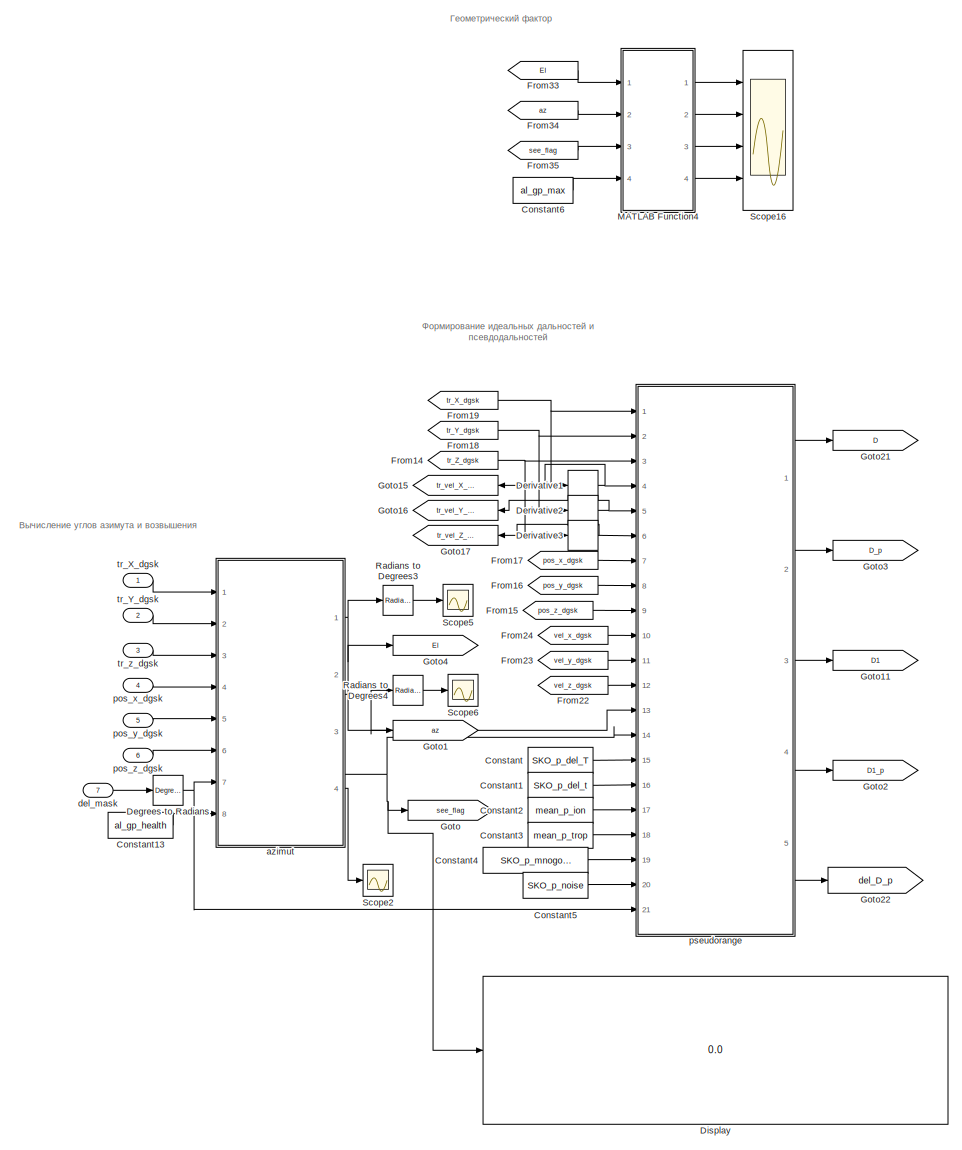
[diagram: pseudorange - part 1/2, left side, full height]
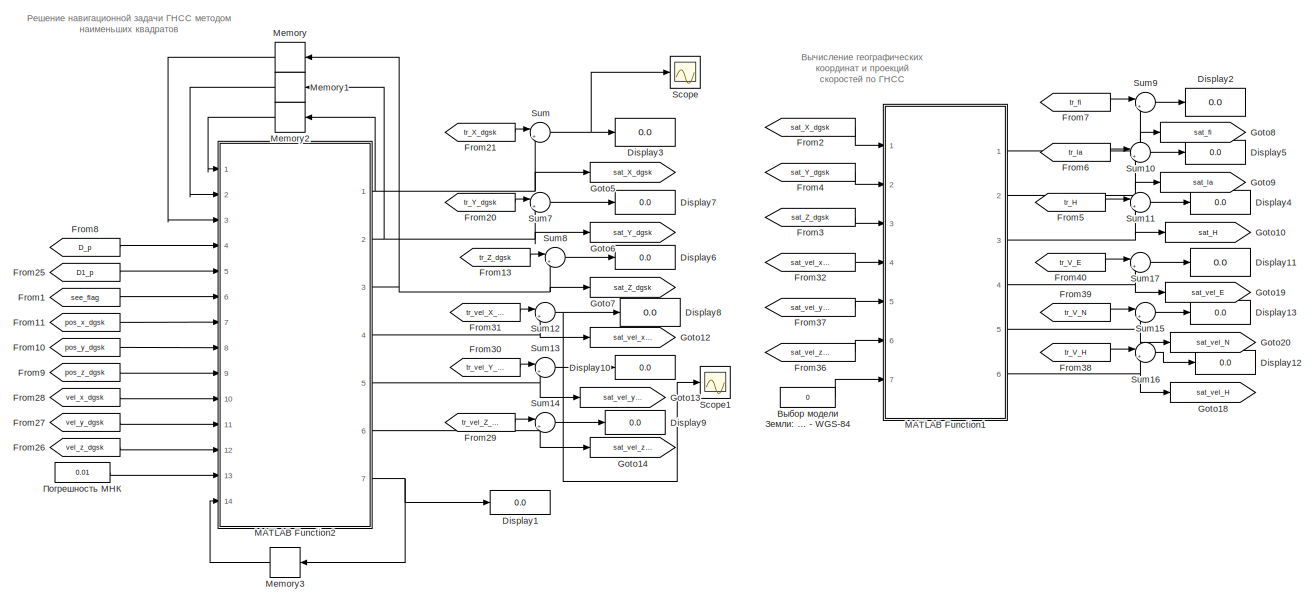
[diagram: pseudorange - part 2/2, middle right region]
BLOCK [SubSystem] pseudorange
  Ports = [7]
  RequestExecContextInheritance = off
BLOCK [Constant] pseudorange/Constant
  Value = SKO_p_del_T
BLOCK [Constant] pseudorange/Constant1
  Value = SKO_p_del_t
BLOCK [Constant] pseudorange/Constant13
  Value = al_gp_health
BLOCK [Constant] pseudorange/Constant2
  Value = mean_p_ion
BLOCK [Constant] pseudorange/Constant3
  Value = mean_p_trop
BLOCK [Constant] pseudorange/Constant4
  Value = SKO_p_mnogoluch
BLOCK [Constant] pseudorange/Constant5
  Value = SKO_p_noise
BLOCK [Constant] pseudorange/Constant6
  Value = al_gp_max
BLOCK [Reference] pseudorange/Degrees to Radians  REF=simulink_extras/Transformations/Degrees to
Radians
  Ports = [1, 1]
  SourceBlock = simulink_extras/Transformations/Degrees to\nRadians
  SourceProductBaseCode = SL
  SourceType = DegreesToRadians
BLOCK [Derivative] pseudorange/Derivative1
BLOCK [Derivative] pseudorange/Derivative2
BLOCK [Derivative] pseudorange/Derivative3
BLOCK [Display] pseudorange/Display
  Decimation = 1
  Ports = [1]
BLOCK [Display] pseudorange/Display1
  Decimation = 1
  Ports = [1]
BLOCK [Display] pseudorange/Display10
  Decimation = 1
  Ports = [1]
BLOCK [Display] pseudorange/Display11
  Decimation = 1
  Ports = [1]
BLOCK [Display] pseudorange/Display12
  Decimation = 1
  Ports = [1]
BLOCK [Display] pseudorange/Display13
  Decimation = 1
  Ports = [1]
BLOCK [Display] pseudorange/Display2
  Decimation = 1
  Ports = [1]
BLOCK [Display] pseudorange/Display3
  Decimation = 1
  Ports = [1]
BLOCK [Display] pseudorange/Display4
  Decimation = 1
  Ports = [1]
BLOCK [Display] pseudorange/Display5
  Decimation = 1
  Ports = [1]
BLOCK [Display] pseudorange/Display6
  Decimation = 1
  Ports = [1]
BLOCK [Display] pseudorange/Display7
  Decimation = 1
  Ports = [1]
BLOCK [Display] pseudorange/Display8
  Decimation = 1
  Ports = [1]
BLOCK [Display] pseudorange/Display9
  Decimation = 1
  Ports = [1]
BLOCK [From] pseudorange/From1
  GotoTag = see_flag
  TagVisibility = global
BLOCK [From] pseudorange/From10
  GotoTag = pos_y_dgsk
  TagVisibility = global
BLOCK [From] pseudorange/From11
  GotoTag = pos_x_dgsk
  TagVisibility = global
BLOCK [From] pseudorange/From13
  GotoTag = tr_Z_dgsk
  TagVisibility = global
BLOCK [From] pseudorange/From14
  GotoTag = tr_Z_dgsk
  TagVisibility = global
BLOCK [From] pseudorange/From15
  GotoTag = pos_z_dgsk
  TagVisibility = global
BLOCK [From] pseudorange/From16
  GotoTag = pos_y_dgsk
  TagVisibility = global
BLOCK [From] pseudorange/From17
  GotoTag = pos_x_dgsk
  TagVisibility = global
BLOCK [From] pseudorange/From18
  GotoTag = tr_Y_dgsk
  TagVisibility = global
BLOCK [From] pseudorange/From19
  GotoTag = tr_X_dgsk
  TagVisibility = global
BLOCK [From] pseudorange/From2
  GotoTag = sat_X_dgsk
  TagVisibility = global
BLOCK [From] pseudorange/From20
  GotoTag = tr_Y_dgsk
  TagVisibility = global
BLOCK [From] pseudorange/From21
  GotoTag = tr_X_dgsk
  TagVisibility = global
BLOCK [From] pseudorange/From22
  GotoTag = vel_z_dgsk
  TagVisibility = global
BLOCK [From] pseudorange/From23
  GotoTag = vel_y_dgsk
  TagVisibility = global
BLOCK [From] pseudorange/From24
  GotoTag = vel_x_dgsk
  TagVisibility = global
BLOCK [From] pseudorange/From25
  GotoTag = D1_p
  TagVisibility = global
BLOCK [From] pseudorange/From26
  GotoTag = vel_z_dgsk
  TagVisibility = global
BLOCK [From] pseudorange/From27
  GotoTag = vel_y_dgsk
  TagVisibility = global
BLOCK [From] pseudorange/From28
  GotoTag = vel_x_dgsk
  TagVisibility = global
BLOCK [From] pseudorange/From29
  GotoTag = tr_vel_Z_dgsk
  TagVisibility = global
BLOCK [From] pseudorange/From3
  GotoTag = sat_Z_dgsk
  TagVisibility = global
BLOCK [From] pseudorange/From30
  GotoTag = tr_vel_Y_dgsk
  TagVisibility = global
BLOCK [From] pseudorange/From31
  GotoTag = tr_vel_X_dgsk
  TagVisibility = global
BLOCK [From] pseudorange/From32
  GotoTag = sat_vel_x_dgsk
  TagVisibility = global
BLOCK [From] pseudorange/From33
  GotoTag = El
BLOCK [From] pseudorange/From34
  GotoTag = az
BLOCK [From] pseudorange/From35
  GotoTag = see_flag
  TagVisibility = global
BLOCK [From] pseudorange/From36
  GotoTag = sat_vel_z_dgsk
  TagVisibility = global
BLOCK [From] pseudorange/From37
  GotoTag = sat_vel_y_dgsk
  TagVisibility = global
BLOCK [From] pseudorange/From38
  GotoTag = tr_V_H
  TagVisibility = global
BLOCK [From] pseudorange/From39
  GotoTag = tr_V_N
  TagVisibility = global
BLOCK [From] pseudorange/From4
  GotoTag = sat_Y_dgsk
  TagVisibility = global
BLOCK [From] pseudorange/From40
  GotoTag = tr_V_E
  TagVisibility = global
BLOCK [From] pseudorange/From5
  GotoTag = tr_H
  TagVisibility = global
BLOCK [From] pseudorange/From6
  GotoTag = tr_la
  TagVisibility = global
BLOCK [From] pseudorange/From7
  GotoTag = tr_fi
  TagVisibility = global
BLOCK [From] pseudorange/From8
  GotoTag = D_p
  TagVisibility = global
BLOCK [From] pseudorange/From9
  GotoTag = pos_z_dgsk
  TagVisibility = global
BLOCK [Goto] pseudorange/Goto
  GotoTag = see_flag
  TagVisibility = global
BLOCK [Goto] pseudorange/Goto1
  GotoTag = az
BLOCK [Goto] pseudorange/Goto10
  GotoTag = sat_H
  TagVisibility = global
BLOCK [Goto] pseudorange/Goto11
  GotoTag = D1
  TagVisibility = global
BLOCK [Goto] pseudorange/Goto12
  GotoTag = sat_vel_x_dgsk
  TagVisibility = global
BLOCK [Goto] pseudorange/Goto13
  GotoTag = sat_vel_y_dgsk
  TagVisibility = global
BLOCK [Goto] pseudorange/Goto14
  GotoTag = sat_vel_z_dgsk
  TagVisibility = global
BLOCK [Goto] pseudorange/Goto15
  GotoTag = tr_vel_X_dgsk
  TagVisibility = global
BLOCK [Goto] pseudorange/Goto16
  GotoTag = tr_vel_Y_dgsk
  TagVisibility = global
BLOCK [Goto] pseudorange/Goto17
  GotoTag = tr_vel_Z_dgsk
  TagVisibility = global
BLOCK [Goto] pseudorange/Goto18
  GotoTag = sat_vel_H
  TagVisibility = global
BLOCK [Goto] pseudorange/Goto19
  GotoTag = sat_vel_E
  TagVisibility = global
BLOCK [Goto] pseudorange/Goto2
  GotoTag = D1_p
  TagVisibility = global
BLOCK [Goto] pseudorange/Goto20
  GotoTag = sat_vel_N
  TagVisibility = global
BLOCK [Goto] pseudorange/Goto21
  GotoTag = D
  TagVisibility = global
BLOCK [Goto] pseudorange/Goto22
  GotoTag = del_D_p
  TagVisibility = global
BLOCK [Goto] pseudorange/Goto3
  GotoTag = D_p
  TagVisibility = global
BLOCK [Goto] pseudorange/Goto4
  GotoTag = El
BLOCK [Goto] pseudorange/Goto5
  GotoTag = sat_X_dgsk
  TagVisibility = global
BLOCK [Goto] pseudorange/Goto6
  GotoTag = sat_Y_dgsk
  TagVisibility = global
BLOCK [Goto] pseudorange/Goto7
  GotoTag = sat_Z_dgsk
  TagVisibility = global
BLOCK [Goto] pseudorange/Goto8
  GotoTag = sat_fi
  TagVisibility = global
BLOCK [Goto] pseudorange/Goto9
  GotoTag = sat_la
  TagVisibility = global
BLOCK [SubSystem] pseudorange/MATLAB Function1
  ErrorFcn = Stateflow.Translate.translate
  PermitHierarchicalResolution = ExplicitOnly
  Ports = [7, 6]
  RequestExecContextInheritance = off
  SFBlockType = MATLAB Function
  TreatAsAtomicUnit = on
BLOCK [Demux] pseudorange/MATLAB Function1/ Demux 
  DisplayOption = bar
  Outputs = 1
  Ports = [1, 1]
BLOCK [S-Function] pseudorange/MATLAB Function1/ SFunction 
  EnableBusSupport = on
  FunctionName = sf_sfun
  PortCounts = [7 7]
  Ports = [7, 7]
  SFcnIsStateOwnerBlock = off
  SFunctionDeploymentMode = off
  Tag = Stateflow S-Function 17
BLOCK [Terminator] pseudorange/MATLAB Function1/ Terminator 
BLOCK [Inport] pseudorange/MATLAB Function1/ellipse_mode
  IconDisplay = Port number
  Port = 7
BLOCK [Outport] pseudorange/MATLAB Function1/sat_H
  IconDisplay = Port number
  Port = 3
BLOCK [Inport] pseudorange/MATLAB Function1/sat_X_dgsk
  IconDisplay = Port number
BLOCK [Inport] pseudorange/MATLAB Function1/sat_Y_dgsk
  IconDisplay = Port number
  Port = 2
BLOCK [Inport] pseudorange/MATLAB Function1/sat_Z_dgsk
  IconDisplay = Port number
  Port = 3
BLOCK [Outport] pseudorange/MATLAB Function1/sat_fi
  IconDisplay = Port number
BLOCK [Outport] pseudorange/MATLAB Function1/sat_la
  IconDisplay = Port number
  Port = 2
BLOCK [Outport] pseudorange/MATLAB Function1/sat_vel_E
  IconDisplay = Port number
  Port = 4
BLOCK [Outport] pseudorange/MATLAB Function1/sat_vel_H
  IconDisplay = Port number
  Port = 6
BLOCK [Outport] pseudorange/MATLAB Function1/sat_vel_N
  IconDisplay = Port number
  Port = 5
BLOCK [Inport] pseudorange/MATLAB Function1/sat_vel_x_dgsk
  IconDisplay = Port number
  Port = 4
BLOCK [Inport] pseudorange/MATLAB Function1/sat_vel_y_dgsk
  IconDisplay = Port number
  Port = 5
BLOCK [Inport] pseudorange/MATLAB Function1/sat_vel_z_dgsk
  IconDisplay = Port number
  Port = 6
BLOCK [SubSystem] pseudorange/MATLAB Function2
  ErrorFcn = Stateflow.Translate.translate
  PermitHierarchicalResolution = ExplicitOnly
  Ports = [14, 7]
  RequestExecContextInheritance = off
  SFBlockType = MATLAB Function
  TreatAsAtomicUnit = on
BLOCK [Demux] pseudorange/MATLAB Function2/ Demux 
  DisplayOption = bar
  Outputs = 1
  Ports = [1, 1]
BLOCK [S-Function] pseudorange/MATLAB Function2/ SFunction 
  EnableBusSupport = on
  FunctionName = sf_sfun
  PortCounts = [14 8]
  Ports = [14, 8]
  SFcnIsStateOwnerBlock = off
  SFunctionDeploymentMode = off
  Tag = Stateflow S-Function 6
BLOCK [Terminator] pseudorange/MATLAB Function2/ Terminator 
BLOCK [Inport] pseudorange/MATLAB Function2/D
  IconDisplay = Port number
  Port = 4
BLOCK [Inport] pseudorange/MATLAB Function2/D1
  IconDisplay = Port number
  Port = 5
BLOCK [Inport] pseudorange/MATLAB Function2/LSM_error
  IconDisplay = Port number
  Port = 13
BLOCK [Outport] pseudorange/MATLAB Function2/eval_p_del_T
  IconDisplay = Port number
  Port = 7
BLOCK [Inport] pseudorange/MATLAB Function2/eval_p_del_T_past
  IconDisplay = Port number
  Port = 14
BLOCK [Inport] pseudorange/MATLAB Function2/pos_x_dgsk
  IconDisplay = Port number
  Port = 7
BLOCK [Inport] pseudorange/MATLAB Function2/pos_y_dgsk
  IconDisplay = Port number
  Port = 8
BLOCK [Inport] pseudorange/MATLAB Function2/pos_z_dgsk
  IconDisplay = Port number
  Port = 9
BLOCK [Outport] pseudorange/MATLAB Function2/sat_X_dgsk
  IconDisplay = Port number
BLOCK [Inport] pseudorange/MATLAB Function2/sat_X_dgsk_past
  IconDisplay = Port number
BLOCK [Outport] pseudorange/MATLAB Function2/sat_Y_dgsk
  IconDisplay = Port number
  Port = 2
BLOCK [Inport] pseudorange/MATLAB Function2/sat_Y_dgsk_past
  IconDisplay = Port number
  Port = 2
BLOCK [Outport] pseudorange/MATLAB Function2/sat_Z_dgsk
  IconDisplay = Port number
  Port = 3
BLOCK [Inport] pseudorange/MATLAB Function2/sat_Z_dgsk_past
  IconDisplay = Port number
  Port = 3
BLOCK [Outport] pseudorange/MATLAB Function2/sat_vel_x_dgsk
  IconDisplay = Port number
  Port = 4
BLOCK [Outport] pseudorange/MATLAB Function2/sat_vel_y_dgsk
  IconDisplay = Port number
  Port = 5
BLOCK [Outport] pseudorange/MATLAB Function2/sat_vel_z_dgsk
  IconDisplay = Port number
  Port = 6
BLOCK [Inport] pseudorange/MATLAB Function2/see_flag
  IconDisplay = Port number
  Port = 6
BLOCK [Inport] pseudorange/MATLAB Function2/vel_Vx_dgsk
  IconDisplay = Port number
  Port = 10
BLOCK [Inport] pseudorange/MATLAB Function2/vel_Vy_dgsk
  IconDisplay = Port number
  Port = 11
BLOCK [Inport] pseudorange/MATLAB Function2/vel_Vz_dgsk
  IconDisplay = Port number
  Port = 12
BLOCK [SubSystem] pseudorange/MATLAB Function4
  ErrorFcn = Stateflow.Translate.translate
  PermitHierarchicalResolution = ExplicitOnly
  Ports = [4, 4]
  RequestExecContextInheritance = off
  SFBlockType = MATLAB Function
  TreatAsAtomicUnit = on
BLOCK [Demux] pseudorange/MATLAB Function4/ Demux 
  DisplayOption = bar
  Outputs = 1
  Ports = [1, 1]
BLOCK [S-Function] pseudorange/MATLAB Function4/ SFunction 
  EnableBusSupport = on
  FunctionName = sf_sfun
  PortCounts = [4 5]
  Ports = [4, 5]
  SFcnIsStateOwnerBlock = off
  SFunctionDeploymentMode = off
  Tag = Stateflow S-Function 33
BLOCK [Terminator] pseudorange/MATLAB Function4/ Terminator 
BLOCK [Inport] pseudorange/MATLAB Function4/El
  IconDisplay = Port number
BLOCK [Outport] pseudorange/MATLAB Function4/HDOP
  IconDisplay = Port number
BLOCK [Outport] pseudorange/MATLAB Function4/PDOP
  IconDisplay = Port number
  Port = 3
BLOCK [Outport] pseudorange/MATLAB Function4/TDOP
  IconDisplay = Port number
  Port = 4
BLOCK [Outport] pseudorange/MATLAB Function4/VDOP
  IconDisplay = Port number
  Port = 2
BLOCK [Inport] pseudorange/MATLAB Function4/al_gp_max
  IconDisplay = Port number
  Port = 4
BLOCK [Inport] pseudorange/MATLAB Function4/az
  IconDisplay = Port number
  Port = 2
BLOCK [Inport] pseudorange/MATLAB Function4/see_flag
  IconDisplay = Port number
  Port = 3
BLOCK [Memory] pseudorange/Memory
BLOCK [Memory] pseudorange/Memory1
BLOCK [Memory] pseudorange/Memory2
BLOCK [Memory] pseudorange/Memory3
  InitialCondition = SKO_p_del_T
BLOCK [Reference] pseudorange/Radians to Degrees3  REF=simulink_extras/Transformations/Radians
to Degrees
  Ports = [1, 1]
  SourceBlock = simulink_extras/Transformations/Radians\nto Degrees
  SourceProductBaseCode = SL
  SourceType = RadiansToDegrees
BLOCK [Reference] pseudorange/Radians to Degrees4  REF=simulink_extras/Transformations/Radians
to Degrees
  Ports = [1, 1]
  SourceBlock = simulink_extras/Transformations/Radians\nto Degrees
  SourceProductBaseCode = SL
  SourceType = RadiansToDegrees
BLOCK [Scope] pseudorange/Scope
  Floating = off
  NumInputPorts = 1
  Ports = [1]
  ScopeSpecificationString = Simulink.scopes.TimeScopeBlockCfg('CurrentConfiguration', extmgr.ConfigurationSet(extmgr.Configuration('Core','General UI',true),extmgr.Configuration('Core','Source UI',true),extmgr.Configuration('Sources','WiredSimulink',true,'DataLoggingVariableName','ScopeData1'),extmgr.Configuration('Visuals','Time Domain',true,'SerializedDisplays',{struct('MinYLimReal','-0.000000007','MaxYLimReal','0.00000000...<+1449ch>
BLOCK [Scope] pseudorange/Scope1
  Floating = off
  NumInputPorts = 1
  Ports = [1]
  ScopeSpecificationString = Simulink.scopes.TimeScopeBlockCfg('CurrentConfiguration', extmgr.ConfigurationSet(extmgr.Configuration('Core','General UI',true),extmgr.Configuration('Core','Source UI',true),extmgr.Configuration('Sources','WiredSimulink',true,'DataLoggingVariableName','ScopeData2'),extmgr.Configuration('Visuals','Time Domain',true,'SerializedDisplays',{struct('MinYLimReal','-0.000000000007','MaxYLimReal','0.00000...<+1475ch>
BLOCK [Scope] pseudorange/Scope16
  Floating = off
  NumInputPorts = 4
  Ports = [4]
  ScopeSpecificationString = Simulink.scopes.TimeScopeBlockCfg('CurrentConfiguration', extmgr.ConfigurationSet(extmgr.Configuration('Core','General UI',true),extmgr.Configuration('Core','Source UI',true),extmgr.Configuration('Sources','WiredSimulink',true,'DataLoggingVariableName','DOP','DataLogging',true,'DataLoggingSaveFormat','StructureWithTime'),extmgr.Configuration('Visuals','Time Domain',true,'SerializedDisplays',{struc...<+1559ch>
BLOCK [Scope] pseudorange/Scope2
  Floating = off
  NumInputPorts = 1
  Ports = [1]
  ScopeSpecificationString = Simulink.scopes.TimeScopeBlockCfg('CurrentConfiguration', extmgr.ConfigurationSet(extmgr.Configuration('Core','General UI',true,'FigureColor',[1 1 1]),extmgr.Configuration('Core','Source UI',true),extmgr.Configuration('Sources','WiredSimulink',true,'DataLoggingVariableName','see_nka','DataLogging',true,'DataLoggingSaveFormat','Array'),extmgr.Configuration('Visuals','Time Domain',true,'SerializedDi...<+1616ch>
BLOCK [Scope] pseudorange/Scope5
  Floating = off
  NumInputPorts = 1
  Ports = [1]
  ScopeSpecificationString = Simulink.scopes.TimeScopeBlockCfg('CurrentConfiguration', extmgr.ConfigurationSet(extmgr.Configuration('Core','General UI',true),extmgr.Configuration('Core','Source UI',true),extmgr.Configuration('Sources','WiredSimulink',true,'DataLoggingVariableName','ScopeData1'),extmgr.Configuration('Visuals','Time Domain',true,'SerializedDisplays',{struct('MinYLimReal','0.28756','MaxYLimReal','97.42525','YLab...<+2187ch>
BLOCK [Scope] pseudorange/Scope6
  Floating = off
  NumInputPorts = 1
  Ports = [1]
  ScopeSpecificationString = Simulink.scopes.TimeScopeBlockCfg('CurrentConfiguration', extmgr.ConfigurationSet(extmgr.Configuration('Core','General UI',true),extmgr.Configuration('Core','Source UI',true),extmgr.Configuration('Sources','WiredSimulink',true,'DataLoggingVariableName','ScopeData2'),extmgr.Configuration('Visuals','Time Domain',true,'SerializedDisplays',{struct('MinYLimReal','45.00055','MaxYLimReal','494.99908','YL...<+2187ch>
BLOCK [Sum] pseudorange/Sum
  IconShape = round
  InputSameDT = off
  Inputs = |+-
  OutDataTypeStr = Inherit: Inherit via internal rule
  Ports = [2, 1]
  SaturateOnIntegerOverflow = off
BLOCK [Sum] pseudorange/Sum10
  IconShape = round
  InputSameDT = off
  Inputs = |+-
  OutDataTypeStr = Inherit: Inherit via internal rule
  Ports = [2, 1]
  SaturateOnIntegerOverflow = off
BLOCK [Sum] pseudorange/Sum11
  IconShape = round
  InputSameDT = off
  Inputs = |+-
  OutDataTypeStr = Inherit: Inherit via internal rule
  Ports = [2, 1]
  SaturateOnIntegerOverflow = off
BLOCK [Sum] pseudorange/Sum12
  IconShape = round
  InputSameDT = off
  Inputs = |+-
  OutDataTypeStr = Inherit: Inherit via internal rule
  Ports = [2, 1]
  SaturateOnIntegerOverflow = off
BLOCK [Sum] pseudorange/Sum13
  IconShape = round
  InputSameDT = off
  Inputs = |+-
  OutDataTypeStr = Inherit: Inherit via internal rule
  Ports = [2, 1]
  SaturateOnIntegerOverflow = off
BLOCK [Sum] pseudorange/Sum14
  IconShape = round
  InputSameDT = off
  Inputs = |+-
  OutDataTypeStr = Inherit: Inherit via internal rule
  Ports = [2, 1]
  SaturateOnIntegerOverflow = off
BLOCK [Sum] pseudorange/Sum15
  IconShape = round
  InputSameDT = off
  Inputs = |+-
  OutDataTypeStr = Inherit: Inherit via internal rule
  Ports = [2, 1]
  SaturateOnIntegerOverflow = off
BLOCK [Sum] pseudorange/Sum16
  IconShape = round
  InputSameDT = off
  Inputs = |+-
  OutDataTypeStr = Inherit: Inherit via internal rule
  Ports = [2, 1]
  SaturateOnIntegerOverflow = off
BLOCK [Sum] pseudorange/Sum17
  IconShape = round
  InputSameDT = off
  Inputs = |+-
  OutDataTypeStr = Inherit: Inherit via internal rule
  Ports = [2, 1]
  SaturateOnIntegerOverflow = off
BLOCK [Sum] pseudorange/Sum7
  IconShape = round
  InputSameDT = off
  Inputs = |+-
  OutDataTypeStr = Inherit: Inherit via internal rule
  Ports = [2, 1]
  SaturateOnIntegerOverflow = off
BLOCK [Sum] pseudorange/Sum8
  IconShape = round
  InputSameDT = off
  Inputs = |+-
  OutDataTypeStr = Inherit: Inherit via internal rule
  Ports = [2, 1]
  SaturateOnIntegerOverflow = off
BLOCK [Sum] pseudorange/Sum9
  IconShape = round
  InputSameDT = off
  Inputs = |+-
  OutDataTypeStr = Inherit: Inherit via internal rule
  Ports = [2, 1]
  SaturateOnIntegerOverflow = off
BLOCK [SubSystem] pseudorange/azimut
  ErrorFcn = Stateflow.Translate.translate
  PermitHierarchicalResolution = ExplicitOnly
  Ports = [8, 4]
  RequestExecContextInheritance = off
  SFBlockType = MATLAB Function
  TreatAsAtomicUnit = on
BLOCK [Demux] pseudorange/azimut/ Demux 
  DisplayOption = bar
  Outputs = 1
  Ports = [1, 1]
BLOCK [S-Function] pseudorange/azimut/ SFunction 
  EnableBusSupport = on
  FunctionName = sf_sfun
  PortCounts = [8 5]
  Ports = [8, 5]
  SFcnIsStateOwnerBlock = off
  SFunctionDeploymentMode = off
  Tag = Stateflow S-Function 9
BLOCK [Terminator] pseudorange/azimut/ Terminator 
BLOCK [Outport] pseudorange/azimut/El
  IconDisplay = Port number
  VectorParamsAs1DForOutWhenUnconnected = off
BLOCK [Inport] pseudorange/azimut/al_gp_health
  IconDisplay = Port number
  Port = 8
BLOCK [Outport] pseudorange/azimut/az
  IconDisplay = Port number
  Port = 2
  VectorParamsAs1DForOutWhenUnconnected = off
BLOCK [Inport] pseudorange/azimut/del_mask
  IconDisplay = Port number
  Port = 7
BLOCK [Outport] pseudorange/azimut/m
  IconDisplay = Port number
  Port = 4
BLOCK [Inport] pseudorange/azimut/pos_x_dgsk
  IconDisplay = Port number
  Port = 4
BLOCK [Inport] pseudorange/azimut/pos_y_dgsk
  IconDisplay = Port number
  Port = 5
BLOCK [Inport] pseudorange/azimut/pos_z_dgsk
  IconDisplay = Port number
  Port = 6
BLOCK [Outport] pseudorange/azimut/see_flag
  IconDisplay = Port number
  Port = 3
  VectorParamsAs1DForOutWhenUnconnected = off
BLOCK [Inport] pseudorange/azimut/tr_X_dgsk
  IconDisplay = Port number
BLOCK [Inport] pseudorange/azimut/tr_Y_dgsk
  IconDisplay = Port number
  Port = 2
BLOCK [Inport] pseudorange/azimut/tr_Z_dgsk
  IconDisplay = Port number
  Port = 3
BLOCK [Inport] pseudorange/del_mask
  IconDisplay = Port number
  Port = 7
BLOCK [Inport] pseudorange/pos_x_dgsk
  IconDisplay = Port number
  Port = 4
BLOCK [Inport] pseudorange/pos_y_dgsk
  IconDisplay = Port number
  Port = 5
BLOCK [Inport] pseudorange/pos_z_dgsk
  IconDisplay = Port number
  Port = 6
BLOCK [SubSystem] pseudorange/pseudorange
  ErrorFcn = Stateflow.Translate.translate
  PermitHierarchicalResolution = ExplicitOnly
  Ports = [21, 5]
  RequestExecContextInheritance = off
  SFBlockType = MATLAB Function
  TreatAsAtomicUnit = on
BLOCK [Demux] pseudorange/pseudorange/ Demux 
  DisplayOption = bar
  Outputs = 1
  Ports = [1, 1]
BLOCK [S-Function] pseudorange/pseudorange/ SFunction 
  EnableBusSupport = on
  FunctionName = sf_sfun
  PortCounts = [21 6]
  Ports = [21, 6]
  SFcnIsStateOwnerBlock = off
  SFunctionDeploymentMode = off
  Tag = Stateflow S-Function 10
BLOCK [Terminator] pseudorange/pseudorange/ Terminator 
BLOCK [Outport] pseudorange/pseudorange/D
  IconDisplay = Port number
  VectorParamsAs1DForOutWhenUnconnected = off
BLOCK [Outport] pseudorange/pseudorange/D1
  IconDisplay = Port number
  Port = 3
BLOCK [Outport] pseudorange/pseudorange/D1_p
  IconDisplay = Port number
  Port = 4
BLOCK [Outport] pseudorange/pseudorange/D_p
  IconDisplay = Port number
  Port = 2
  VectorParamsAs1DForOutWhenUnconnected = off
BLOCK [Inport] pseudorange/pseudorange/El
  IconDisplay = Port number
  Port = 13
BLOCK [Inport] pseudorange/pseudorange/SKO_p_del_T
  IconDisplay = Port number
  Port = 15
BLOCK [Inport] pseudorange/pseudorange/SKO_p_del_t
  IconDisplay = Port number
  Port = 16
BLOCK [Inport] pseudorange/pseudorange/SKO_p_mnogoluch
  IconDisplay = Port number
  Port = 19
BLOCK [Inport] pseudorange/pseudorange/SKO_p_noise
  IconDisplay = Port number
  Port = 20
BLOCK [Outport] pseudorange/pseudorange/del_D_p
  IconDisplay = Port number
  Port = 5
BLOCK [Inport] pseudorange/pseudorange/del_mask
  IconDisplay = Port number
  Port = 21
BLOCK [Inport] pseudorange/pseudorange/mean_p_ion
  IconDisplay = Port number
  Port = 17
BLOCK [Inport] pseudorange/pseudorange/mean_p_trop
  IconDisplay = Port number
  Port = 18
BLOCK [Inport] pseudorange/pseudorange/pos_x_dgsk
  IconDisplay = Port number
  Port = 7
BLOCK [Inport] pseudorange/pseudorange/pos_y_dgsk
  IconDisplay = Port number
  Port = 8
BLOCK [Inport] pseudorange/pseudorange/pos_z_dgsk
  IconDisplay = Port number
  Port = 9
BLOCK [Inport] pseudorange/pseudorange/see_flag
  IconDisplay = Port number
  Port = 14
BLOCK [Inport] pseudorange/pseudorange/tr_Vx_dgsk
  IconDisplay = Port number
  Port = 4
BLOCK [Inport] pseudorange/pseudorange/tr_Vy_dgsk
  IconDisplay = Port number
  Port = 5
BLOCK [Inport] pseudorange/pseudorange/tr_Vz_dgsk
  IconDisplay = Port number
  Port = 6
BLOCK [Inport] pseudorange/pseudorange/tr_X_dgsk
  IconDisplay = Port number
BLOCK [Inport] pseudorange/pseudorange/tr_Y_dgsk
  IconDisplay = Port number
  Port = 2
BLOCK [Inport] pseudorange/pseudorange/tr_Z_dgsk
  IconDisplay = Port number
  Port = 3
BLOCK [Inport] pseudorange/pseudorange/vel_x_dgsk
  IconDisplay = Port number
  Port = 10
BLOCK [Inport] pseudorange/pseudorange/vel_y_dgsk
  IconDisplay = Port number
  Port = 11
BLOCK [Inport] pseudorange/pseudorange/vel_z_dgsk
  IconDisplay = Port number
  Port = 12
BLOCK [Inport] pseudorange/tr_X_dgsk
  IconDisplay = Port number
BLOCK [Inport] pseudorange/tr_Y_dgsk
  IconDisplay = Port number
  Port = 2
BLOCK [Inport] pseudorange/tr_z_dgsk
  IconDisplay = Port number
  Port = 3
BLOCK [Constant] pseudorange/Выбор модели Земли: 0 - сфера 1 - ПЗ-90.11 2 - WGS-84
  Value = 0
BLOCK [Constant] pseudorange/Погрешность МНК
  Value = 0.01
BLOCK [SubSystem] trajectory
  Ports = [0, 6]
  RequestExecContextInheritance = off
BLOCK [Outport] trajectory/C_sv_gor
  IconDisplay = Port number
  VectorParamsAs1DForOutWhenUnconnected = off
BLOCK [Constant] trajectory/Constant1
  Commented = on
  Value = tr_X_dgsk
BLOCK [Constant] trajectory/Constant10
  Value = R_betta
BLOCK [Constant] trajectory/Constant11
  Value = R_betta1
BLOCK [Constant] trajectory/Constant12
  Value = R_e2
BLOCK [Constant] trajectory/Constant13
  Value = R_a
BLOCK [Constant] trajectory/Constant14
  Value = R_q
BLOCK [Constant] trajectory/Constant15
  Value = R_u
BLOCK [Constant] trajectory/Constant16
  Value = tr_pitch
BLOCK [Constant] trajectory/Constant17
  Value = tr_la
BLOCK [Constant] trajectory/Constant18
  Commented = on
  Value = tr_Y_dgsk
BLOCK [Constant] trajectory/Constant19
  Commented = on
  Value = tr_Z_dgsk
BLOCK [Constant] trajectory/Constant2
  Value = tr_V_E
BLOCK [Constant] trajectory/Constant3
  Value = tr_V_N
BLOCK [Constant] trajectory/Constant4
  Value = tr_V_H
BLOCK [Constant] trajectory/Constant5
  Value = tr_course
BLOCK [Constant] trajectory/Constant6
  Value = tr_roll
BLOCK [Constant] trajectory/Constant7
  Value = tr_fi
BLOCK [Constant] trajectory/Constant8
  Value = tr_H
BLOCK [Constant] trajectory/Constant9
  Value = R_ge
BLOCK [Derivative] trajectory/Derivative1
BLOCK [Derivative] trajectory/Derivative2
BLOCK [Derivative] trajectory/Derivative3
BLOCK [From] trajectory/From
  GotoTag = tr_dV_E
  TagVisibility = global
BLOCK [From] trajectory/From1
  GotoTag = tr_V_E
  TagVisibility = global
BLOCK [From] trajectory/From10
  GotoTag = tr_pitch
  TagVisibility = global
BLOCK [From] trajectory/From11
  GotoTag = n_id_geogr
  TagVisibility = global
BLOCK [From] trajectory/From12
  GotoTag = Omega_id_geogr
  TagVisibility = global
BLOCK [From] trajectory/From13
  GotoTag = n_id_geogr
  TagVisibility = global
BLOCK [From] trajectory/From14
  GotoTag = C_sv_gor
  TagVisibility = global
BLOCK [From] trajectory/From15
  GotoTag = Omega_id_geogr
  TagVisibility = global
BLOCK [From] trajectory/From16
  GotoTag = Omega1
  TagVisibility = global
BLOCK [From] trajectory/From17
  GotoTag = n_id_sv
  TagVisibility = global
BLOCK [From] trajectory/From18
  GotoTag = Omega_id_sv
  TagVisibility = global
BLOCK [From] trajectory/From19
  GotoTag = tr_yaw
  TagVisibility = global
BLOCK [From] trajectory/From2
  GotoTag = tr_dV_N
  TagVisibility = global
BLOCK [From] trajectory/From3
  GotoTag = tr_V_N
  TagVisibility = global
BLOCK [From] trajectory/From4
  GotoTag = tr_dV_H
  TagVisibility = global
BLOCK [From] trajectory/From5
  GotoTag = tr_V_H
  TagVisibility = global
BLOCK [From] trajectory/From6
  GotoTag = tr_fi
  TagVisibility = global
BLOCK [From] trajectory/From7
  GotoTag = tr_H
  TagVisibility = global
BLOCK [From] trajectory/From8
  GotoTag = tr_course
  TagVisibility = global
BLOCK [From] trajectory/From9
  GotoTag = tr_roll
  TagVisibility = global
BLOCK [Goto] trajectory/Goto1
  GotoTag = tr_V_E
  TagVisibility = global
BLOCK [Goto] trajectory/Goto10
  GotoTag = tr_pitch
  TagVisibility = global
BLOCK [Goto] trajectory/Goto11
  GotoTag = n_id_geogr
  TagVisibility = global
BLOCK [Goto] trajectory/Goto12
  GotoTag = Omega_id_geogr
  TagVisibility = global
BLOCK [Goto] trajectory/Goto13
  GotoTag = Omega1
  TagVisibility = global
BLOCK [Goto] trajectory/Goto14
  GotoTag = n_id_sv
  TagVisibility = global
BLOCK [Goto] trajectory/Goto15
  GotoTag = Omega_id_sv
  TagVisibility = global
BLOCK [Goto] trajectory/Goto16
  GotoTag = C_sv_gor
  TagVisibility = global
BLOCK [Goto] trajectory/Goto17
  GotoTag = tr_la
  TagVisibility = global
BLOCK [Goto] trajectory/Goto18
  Commented = on
  GotoTag = tr_X_dgsk
  TagVisibility = global
BLOCK [Goto] trajectory/Goto19
  Commented = on
  GotoTag = tr_Y_dgsk
  TagVisibility = global
BLOCK [Goto] trajectory/Goto2
  GotoTag = tr_yaw
  TagVisibility = global
BLOCK [Goto] trajectory/Goto20
  Commented = on
  GotoTag = tr_Z_dgsk
  TagVisibility = global
BLOCK [Goto] trajectory/Goto21
  GotoTag = ro1
  TagVisibility = global
BLOCK [Goto] trajectory/Goto22
  GotoTag = ro2
  TagVisibility = global
BLOCK [Goto] trajectory/Goto23
  GotoTag = tr_dV_N
  TagVisibility = global
BLOCK [Goto] trajectory/Goto24
  GotoTag = tr_dV_H
  TagVisibility = global
BLOCK [Goto] trajectory/Goto3
  GotoTag = tr_V_N
  TagVisibility = global
BLOCK [Goto] trajectory/Goto4
  GotoTag = tr_dV_E
  TagVisibility = global
BLOCK [Goto] trajectory/Goto5
  GotoTag = tr_V_H
  TagVisibility = global
BLOCK [Goto] trajectory/Goto6
  GotoTag = tr_fi
  TagVisibility = global
BLOCK [Goto] trajectory/Goto7
  GotoTag = tr_H
  TagVisibility = global
BLOCK [Goto] trajectory/Goto8
  GotoTag = tr_course
  TagVisibility = global
BLOCK [Goto] trajectory/Goto9
  GotoTag = tr_roll
  TagVisibility = global
BLOCK [SubSystem] trajectory/MATLAB Function1
  ErrorFcn = Stateflow.Translate.translate
  PermitHierarchicalResolution = ExplicitOnly
  Ports = [15, 11]
  RequestExecContextInheritance = off
  SFBlockType = MATLAB Function
  TreatAsAtomicUnit = on
BLOCK [Demux] trajectory/MATLAB Function1/ Demux 
  DisplayOption = bar
  Outputs = 1
  Ports = [1, 1]
BLOCK [S-Function] trajectory/MATLAB Function1/ SFunction 
  EnableBusSupport = on
  FunctionName = sf_sfun
  PortCounts = [15 12]
  Ports = [15, 12]
  SFcnIsStateOwnerBlock = off
  SFunctionDeploymentMode = off
  Tag = Stateflow S-Function 1
BLOCK [Terminator] trajectory/MATLAB Function1/ Terminator 
BLOCK [Outport] trajectory/MATLAB Function1/Omega1_E1
  IconDisplay = Port number
  Port = 7
  VectorParamsAs1DForOutWhenUnconnected = off
BLOCK [Outport] trajectory/MATLAB Function1/Omega1_H1
  IconDisplay = Port number
  Port = 9
  VectorParamsAs1DForOutWhenUnconnected = off
BLOCK [Outport] trajectory/MATLAB Function1/Omega1_N1
  IconDisplay = Port number
  Port = 8
  VectorParamsAs1DForOutWhenUnconnected = off
BLOCK [Outport] trajectory/MATLAB Function1/Omega_E
  IconDisplay = Port number
  Port = 4
  VectorParamsAs1DForOutWhenUnconnected = off
BLOCK [Outport] trajectory/MATLAB Function1/Omega_H
  IconDisplay = Port number
  Port = 6
  VectorParamsAs1DForOutWhenUnconnected = off
BLOCK [Outport] trajectory/MATLAB Function1/Omega_N
  IconDisplay = Port number
  Port = 5
  VectorParamsAs1DForOutWhenUnconnected = off
BLOCK [Inport] trajectory/MATLAB Function1/R_a
  IconDisplay = Port number
  Port = 13
BLOCK [Inport] trajectory/MATLAB Function1/R_betta
  IconDisplay = Port number
  Port = 10
BLOCK [Inport] trajectory/MATLAB Function1/R_betta1
  IconDisplay = Port number
  Port = 11
BLOCK [Inport] trajectory/MATLAB Function1/R_e2
  IconDisplay = Port number
  Port = 12
BLOCK [Inport] trajectory/MATLAB Function1/R_ge
  IconDisplay = Port number
  Port = 9
BLOCK [Inport] trajectory/MATLAB Function1/R_q
  IconDisplay = Port number
  Port = 14
BLOCK [Inport] trajectory/MATLAB Function1/R_u
  IconDisplay = Port number
  Port = 15
BLOCK [Outport] trajectory/MATLAB Function1/n_E
  IconDisplay = Port number
  VectorParamsAs1DForOutWhenUnconnected = off
BLOCK [Outport] trajectory/MATLAB Function1/n_H
  IconDisplay = Port number
  Port = 3
  VectorParamsAs1DForOutWhenUnconnected = off
BLOCK [Outport] trajectory/MATLAB Function1/n_N
  IconDisplay = Port number
  Port = 2
  VectorParamsAs1DForOutWhenUnconnected = off
BLOCK [Outport] trajectory/MATLAB Function1/ro1
  IconDisplay = Port number
  Port = 10
  VectorParamsAs1DForOutWhenUnconnected = off
BLOCK [Outport] trajectory/MATLAB Function1/ro2
  IconDisplay = Port number
  Port = 11
  VectorParamsAs1DForOutWhenUnconnected = off
BLOCK [Inport] trajectory/MATLAB Function1/tr_H
  IconDisplay = Port number
  Port = 8
BLOCK [Inport] trajectory/MATLAB Function1/tr_V_E
  IconDisplay = Port number
  Port = 2
BLOCK [Inport] trajectory/MATLAB Function1/tr_V_H
  IconDisplay = Port number
  Port = 6
BLOCK [Inport] trajectory/MATLAB Function1/tr_V_N
  IconDisplay = Port number
  Port = 4
BLOCK [Inport] trajectory/MATLAB Function1/tr_dV_E
  IconDisplay = Port number
BLOCK [Inport] trajectory/MATLAB Function1/tr_dV_H
  IconDisplay = Port number
  Port = 5
BLOCK [Inport] trajectory/MATLAB Function1/tr_dV_N
  IconDisplay = Port number
  Port = 3
BLOCK [Inport] trajectory/MATLAB Function1/tr_fi
  IconDisplay = Port number
  Port = 7
BLOCK [SubSystem] trajectory/MATLAB Function2
  Commented = on
  ErrorFcn = Stateflow.Translate.translate
  PermitHierarchicalResolution = ExplicitOnly
  Ports = [3, 3]
  RequestExecContextInheritance = off
  SFBlockType = MATLAB Function
  TreatAsAtomicUnit = on
BLOCK [Demux] trajectory/MATLAB Function2/ Demux 
  DisplayOption = bar
  Outputs = 1
  Ports = [1, 1]
BLOCK [S-Function] trajectory/MATLAB Function2/ SFunction 
  EnableBusSupport = on
  FunctionName = sf_sfun
  PortCounts = [3 4]
  Ports = [3, 4]
  SFcnIsStateOwnerBlock = off
  SFunctionDeploymentMode = off
  Tag = Stateflow S-Function 3
BLOCK [Terminator] trajectory/MATLAB Function2/ Terminator 
BLOCK [Inport] trajectory/MATLAB Function2/tr_X_dgsk
  IconDisplay = Port number
BLOCK [Outport] trajectory/MATLAB Function2/tr_X_dgsk1
  IconDisplay = Port number
  VectorParamsAs1DForOutWhenUnconnected = off
BLOCK [Inport] trajectory/MATLAB Function2/tr_Y_dgsk
  IconDisplay = Port number
  Port = 2
BLOCK [Outport] trajectory/MATLAB Function2/tr_Y_dgsk1
  IconDisplay = Port number
  Port = 2
  VectorParamsAs1DForOutWhenUnconnected = off
BLOCK [Inport] trajectory/MATLAB Function2/tr_Z_dgsk
  IconDisplay = Port number
  Port = 3
BLOCK [Outport] trajectory/MATLAB Function2/tr_Z_dgsk1
  IconDisplay = Port number
  Port = 3
  VectorParamsAs1DForOutWhenUnconnected = off
BLOCK [SubSystem] trajectory/MATLAB Function3
  ErrorFcn = Stateflow.Translate.translate
  PermitHierarchicalResolution = ExplicitOnly
  Ports = [9, 10]
  RequestExecContextInheritance = off
  SFBlockType = MATLAB Function
  TreatAsAtomicUnit = on
BLOCK [Demux] trajectory/MATLAB Function3/ Demux 
  DisplayOption = bar
  Outputs = 1
  Ports = [1, 1]
BLOCK [S-Function] trajectory/MATLAB Function3/ SFunction 
  EnableBusSupport = on
  FunctionName = sf_sfun
  PortCounts = [9 11]
  Ports = [9, 11]
  SFcnIsStateOwnerBlock = off
  SFunctionDeploymentMode = off
  Tag = Stateflow S-Function 4
BLOCK [Terminator] trajectory/MATLAB Function3/ Terminator 
BLOCK [Inport] trajectory/MATLAB Function3/tr_H
  IconDisplay = Port number
  Port = 3
BLOCK [Outport] trajectory/MATLAB Function3/tr_Ht
  IconDisplay = Port number
  Port = 3
  VectorParamsAs1DForOutWhenUnconnected = off
BLOCK [Inport] trajectory/MATLAB Function3/tr_V_E
  IconDisplay = Port number
  Port = 4
BLOCK [Outport] trajectory/MATLAB Function3/tr_V_Et
  IconDisplay = Port number
  Port = 4
  VectorParamsAs1DForOutWhenUnconnected = off
BLOCK [Inport] trajectory/MATLAB Function3/tr_V_H
  IconDisplay = Port number
  Port = 6
BLOCK [Outport] trajectory/MATLAB Function3/tr_V_Ht
  IconDisplay = Port number
  Port = 6
  VectorParamsAs1DForOutWhenUnconnected = off
BLOCK [Inport] trajectory/MATLAB Function3/tr_V_N
  IconDisplay = Port number
  Port = 5
BLOCK [Outport] trajectory/MATLAB Function3/tr_V_Nt
  IconDisplay = Port number
  Port = 5
  VectorParamsAs1DForOutWhenUnconnected = off
BLOCK [Inport] trajectory/MATLAB Function3/tr_course
  IconDisplay = Port number
  Port = 7
BLOCK [Outport] trajectory/MATLAB Function3/tr_courset
  IconDisplay = Port number
  Port = 7
  VectorParamsAs1DForOutWhenUnconnected = off
BLOCK [Inport] trajectory/MATLAB Function3/tr_fi
  IconDisplay = Port number
BLOCK [Outport] trajectory/MATLAB Function3/tr_fit
  IconDisplay = Port number
  VectorParamsAs1DForOutWhenUnconnected = off
BLOCK [Inport] trajectory/MATLAB Function3/tr_la
  IconDisplay = Port number
  Port = 2
BLOCK [Outport] trajectory/MATLAB Function3/tr_lat
  IconDisplay = Port number
  Port = 2
  VectorParamsAs1DForOutWhenUnconnected = off
BLOCK [Inport] trajectory/MATLAB Function3/tr_pitch
  IconDisplay = Port number
  Port = 9
BLOCK [Outport] trajectory/MATLAB Function3/tr_pitcht
  IconDisplay = Port number
  Port = 10
  VectorParamsAs1DForOutWhenUnconnected = off
BLOCK [Inport] trajectory/MATLAB Function3/tr_roll
  IconDisplay = Port number
  Port = 8
BLOCK [Outport] trajectory/MATLAB Function3/tr_rollt
  IconDisplay = Port number
  Port = 9
  VectorParamsAs1DForOutWhenUnconnected = off
BLOCK [Outport] trajectory/MATLAB Function3/tr_yawt
  IconDisplay = Port number
  Port = 8
BLOCK [SubSystem] trajectory/MATLAB Function4
  ErrorFcn = Stateflow.Translate.translate
  PermitHierarchicalResolution = ExplicitOnly
  Ports = [6, 3]
  RequestExecContextInheritance = off
  SFBlockType = MATLAB Function
  TreatAsAtomicUnit = on
BLOCK [Demux] trajectory/MATLAB Function4/ Demux 
  DisplayOption = bar
  Outputs = 1
  Ports = [1, 1]
BLOCK [S-Function] trajectory/MATLAB Function4/ SFunction 
  EnableBusSupport = on
  FunctionName = sf_sfun
  PortCounts = [6 4]
  Ports = [6, 4]
  SFcnIsStateOwnerBlock = off
  SFunctionDeploymentMode = off
  Tag = Stateflow S-Function 5
BLOCK [Terminator] trajectory/MATLAB Function4/ Terminator 
BLOCK [Outport] trajectory/MATLAB Function4/C_sv_gor
  IconDisplay = Port number
  Port = 3
  VectorParamsAs1DForOutWhenUnconnected = off
BLOCK [Inport] trajectory/MATLAB Function4/Omega_id_geogr
  IconDisplay = Port number
  Port = 6
BLOCK [Outport] trajectory/MATLAB Function4/Omega_id_sv
  IconDisplay = Port number
  Port = 2
  VectorParamsAs1DForOutWhenUnconnected = off
BLOCK [Inport] trajectory/MATLAB Function4/n_id_geogr
  IconDisplay = Port number
  Port = 5
BLOCK [Outport] trajectory/MATLAB Function4/n_id_sv
  IconDisplay = Port number
  VectorParamsAs1DForOutWhenUnconnected = off
BLOCK [Inport] trajectory/MATLAB Function4/tr_course
  IconDisplay = Port number
BLOCK [Inport] trajectory/MATLAB Function4/tr_pitch
  IconDisplay = Port number
  Port = 4
BLOCK [Inport] trajectory/MATLAB Function4/tr_roll
  IconDisplay = Port number
  Port = 3
BLOCK [Inport] trajectory/MATLAB Function4/tr_yaw
  IconDisplay = Port number
  Port = 2
BLOCK [Mux] trajectory/Mux
  DisplayOption = bar
  Inputs = 3
  Ports = [3, 1]
BLOCK [Mux] trajectory/Mux1
  DisplayOption = bar
  Inputs = 3
  Ports = [3, 1]
BLOCK [Mux] trajectory/Mux2
  DisplayOption = bar
  Inputs = 3
  Ports = [3, 1]
BLOCK [Outport] trajectory/Omega1
  IconDisplay = Port number
  Port = 4
  VectorParamsAs1DForOutWhenUnconnected = off
BLOCK [Outport] trajectory/Omega_id_geogr
  IconDisplay = Port number
  Port = 3
  VectorParamsAs1DForOutWhenUnconnected = off
BLOCK [Outport] trajectory/Omega_id_sv
  IconDisplay = Port number
  Port = 6
  VectorParamsAs1DForOutWhenUnconnected = off
BLOCK [Reference] trajectory/Radians to Degrees  REF=simulink_extras/Transformations/Radians
to Degrees
  Ports = [1, 1]
  SourceBlock = simulink_extras/Transformations/Radians\nto Degrees
  SourceProductBaseCode = SL
  SourceType = RadiansToDegrees
BLOCK [Reference] trajectory/Radians to Degrees1  REF=simulink_extras/Transformations/Radians
to Degrees
  Ports = [1, 1]
  SourceBlock = simulink_extras/Transformations/Radians\nto Degrees
  SourceProductBaseCode = SL
  SourceType = RadiansToDegrees
BLOCK [Scope] trajectory/Scope1
  Floating = off
  NumInputPorts = 1
  Ports = [1]
  ScopeSpecificationString = Simulink.scopes.TimeScopeBlockCfg('CurrentConfiguration', extmgr.ConfigurationSet(extmgr.Configuration('Core','General UI',true),extmgr.Configuration('Core','Source UI',true),extmgr.Configuration('Sources','WiredSimulink',true,'DataLoggingVariableName','ScopeData3'),extmgr.Configuration('Visuals','Time Domain',true,'SerializedDisplays',{struct('MinYLimReal','-0.00000000038','MaxYLimReal','0.000000...<+1564ch>
BLOCK [Scope] trajectory/Scope14
  Floating = off
  NumInputPorts = 2
  Ports = [2]
  ScopeSpecificationString = Simulink.scopes.TimeScopeBlockCfg('CurrentConfiguration', extmgr.ConfigurationSet(extmgr.Configuration('Core','General UI',true),extmgr.Configuration('Core','Source UI',true),extmgr.Configuration('Sources','WiredSimulink',true,'DataLoggingVariableName','ScopeData8'),extmgr.Configuration('Visuals','Time Domain',true,'SerializedDisplays',{struct('MinYLimReal','-56.48505','MaxYLimReal','56.48505','YL...<+1479ch>
BLOCK [Scope] trajectory/Scope2
  Floating = off
  NumInputPorts = 1
  Ports = [1]
  ScopeSpecificationString = Simulink.scopes.TimeScopeBlockCfg('CurrentConfiguration', extmgr.ConfigurationSet(extmgr.Configuration('Core','General UI',true),extmgr.Configuration('Core','Source UI',true),extmgr.Configuration('Sources','WiredSimulink',true,'DataLoggingVariableName','ScopeData10'),extmgr.Configuration('Visuals','Time Domain',true,'SerializedDisplays',{struct('MinYLimReal','-11.37701','MaxYLimReal','4.19085','YL...<+1506ch>
BLOCK [Scope] trajectory/Scope3
  Floating = off
  NumInputPorts = 1
  Ports = [1]
  ScopeSpecificationString = Simulink.scopes.TimeScopeBlockCfg('CurrentConfiguration', extmgr.ConfigurationSet(extmgr.Configuration('Core','General UI',true),extmgr.Configuration('Core','Source UI',true),extmgr.Configuration('Sources','WiredSimulink',true,'DataLoggingVariableName','ScopeData11'),extmgr.Configuration('Visuals','Time Domain',true,'SerializedDisplays',{struct('MinYLimReal','-0.000013','MaxYLimReal','0.000067','Y...<+1519ch>
BLOCK [ToWorkspace] trajectory/To Workspace
  FixptAsFi = on
  MaxDataPoints = inf
  Ports = [1]
  SampleTime = -1
  VariableName = tr_Omega_E
BLOCK [ToWorkspace] trajectory/To Workspace1
  FixptAsFi = on
  MaxDataPoints = inf
  Ports = [1]
  SampleTime = -1
  VariableName = tr_Omega_N
BLOCK [ToWorkspace] trajectory/To Workspace2
  FixptAsFi = on
  MaxDataPoints = inf
  Ports = [1]
  SampleTime = -1
  VariableName = tr_Omega_H
BLOCK [ToWorkspace] trajectory/To Workspace3
  FixptAsFi = on
  MaxDataPoints = inf
  Ports = [1]
  SampleTime = -1
  VariableName = tr_n_E
BLOCK [ToWorkspace] trajectory/To Workspace4
  FixptAsFi = on
  MaxDataPoints = inf
  Ports = [1]
  SampleTime = -1
  VariableName = tr_n_N
BLOCK [ToWorkspace] trajectory/To Workspace5
  FixptAsFi = on
  MaxDataPoints = inf
  Ports = [1]
  SampleTime = -1
  VariableName = tr_n_H
BLOCK [Outport] trajectory/n_id_geogr
  IconDisplay = Port number
  Port = 2
  VectorParamsAs1DForOutWhenUnconnected = off
BLOCK [Outport] trajectory/n_id_sv
  IconDisplay = Port number
  Port = 5
  VectorParamsAs1DForOutWhenUnconnected = off
BLOCK [SubSystem] Алгоритм ЖСК БИНС + ГНСС
  Commented = on
  Ports = []
  RequestExecContextInheritance = off
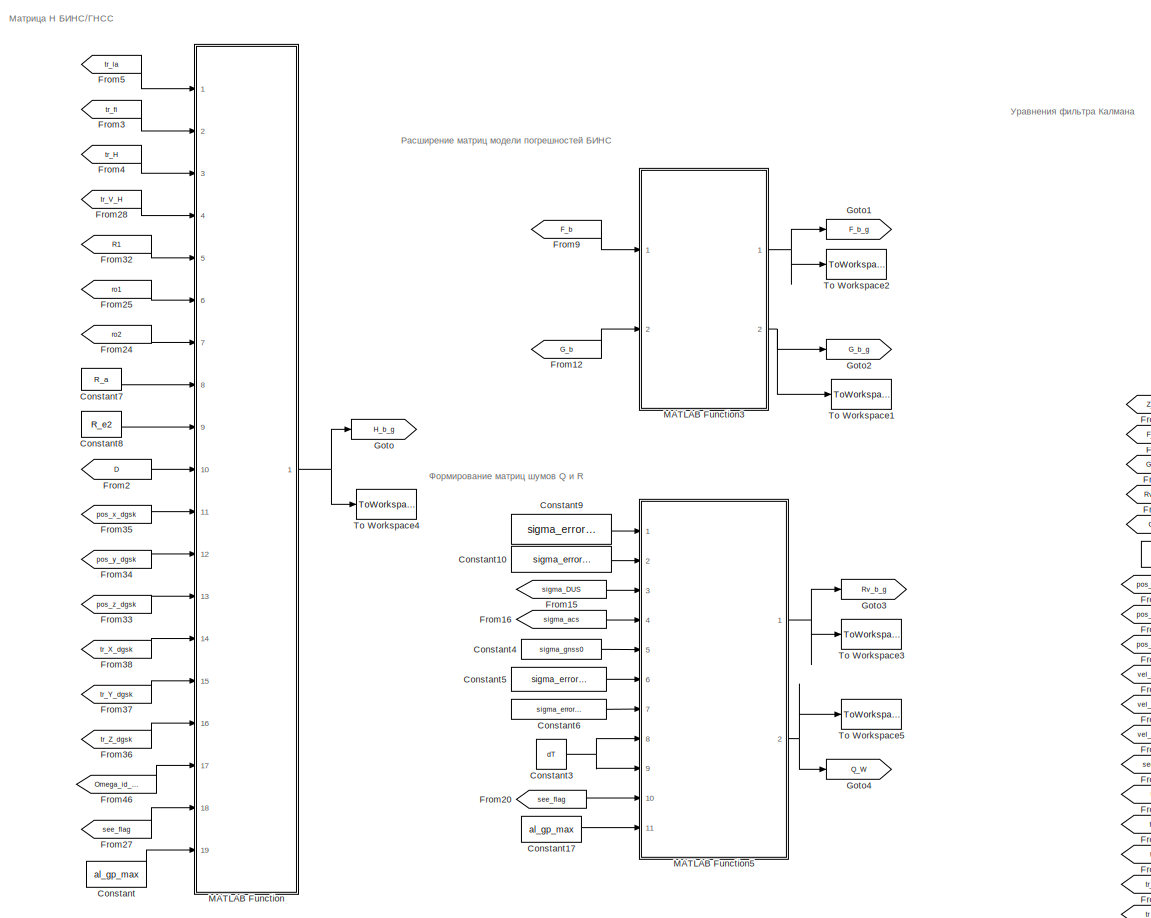
[diagram: Алгоритм ЖСК БИНС + ГНСС + UKF - part 1/4, middle left region]
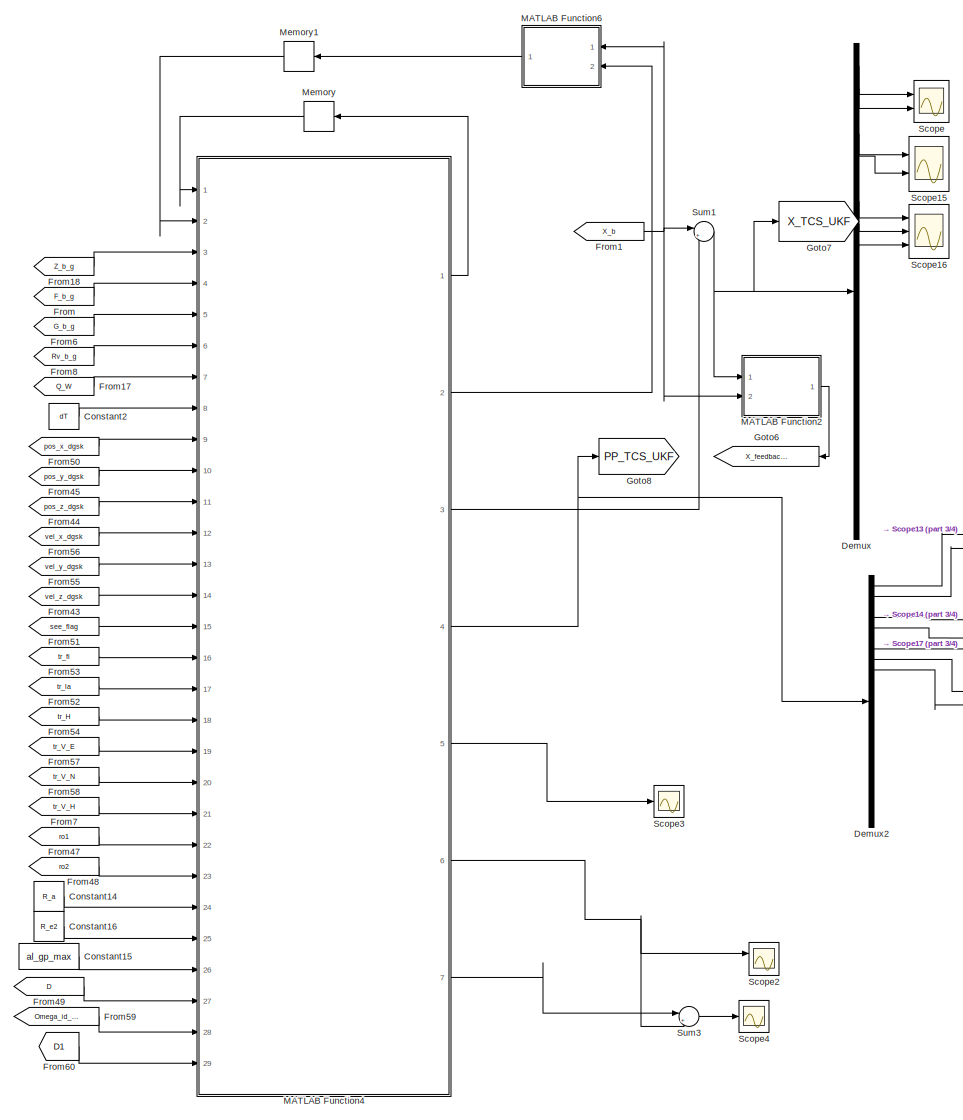
[diagram: Алгоритм ЖСК БИНС + ГНСС + UKF - part 2/4, center side, full height]
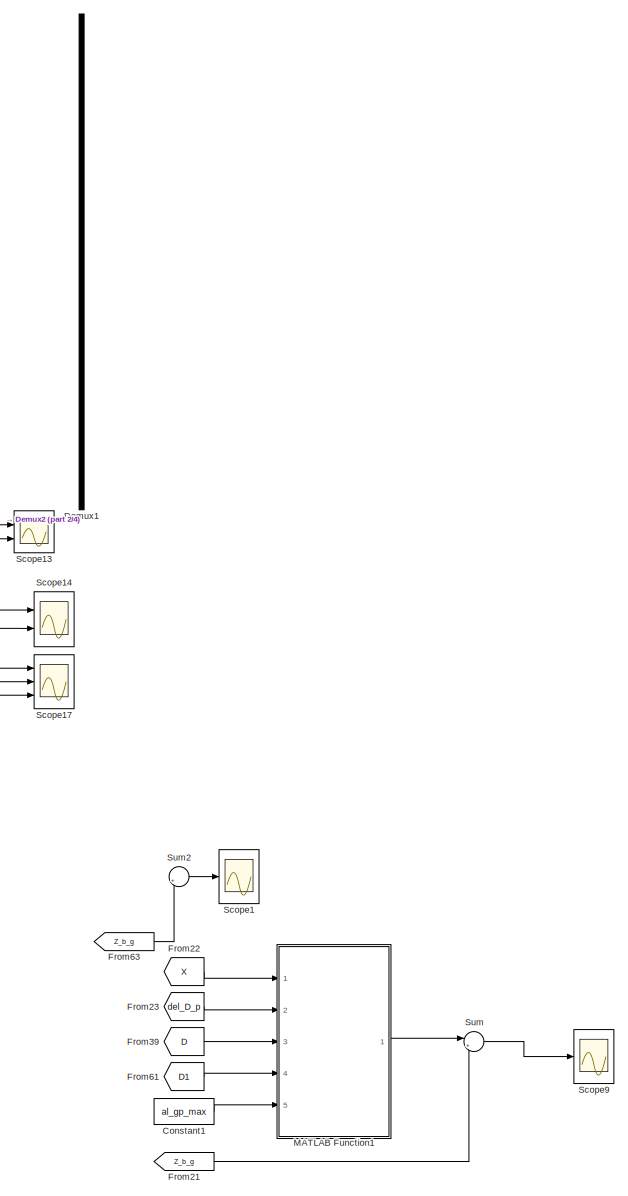
[diagram: Алгоритм ЖСК БИНС + ГНСС + UKF - part 3/4, right side, full height]
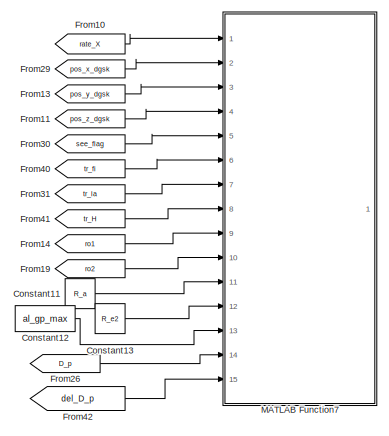
[diagram: Алгоритм ЖСК БИНС + ГНСС + UKF - part 4/4, bottom left region]
BLOCK [SubSystem] Алгоритм ЖСК БИНС + ГНСС + UKF
  Commented = on
  Ports = []
  RequestExecContextInheritance = off
BLOCK [Constant] Алгоритм ЖСК БИНС + ГНСС + UKF/Constant
  Commented = on
  Value = al_gp_max
BLOCK [Constant] Алгоритм ЖСК БИНС + ГНСС + UKF/Constant1
  Commented = on
  Value = al_gp_max
BLOCK [Constant] Алгоритм ЖСК БИНС + ГНСС + UKF/Constant10
  Value = sigma_error_D_p1
BLOCK [Constant] Алгоритм ЖСК БИНС + ГНСС + UKF/Constant11
  Commented = on
  Value = R_a
BLOCK [Constant] Алгоритм ЖСК БИНС + ГНСС + UKF/Constant12
  Commented = on
  Value = al_gp_max
BLOCK [Constant] Алгоритм ЖСК БИНС + ГНСС + UKF/Constant13
  Commented = on
  Value = R_e2
BLOCK [Constant] Алгоритм ЖСК БИНС + ГНСС + UKF/Constant14
  Value = R_a
BLOCK [Constant] Алгоритм ЖСК БИНС + ГНСС + UKF/Constant15
  Value = al_gp_max
BLOCK [Constant] Алгоритм ЖСК БИНС + ГНСС + UKF/Constant16
  Value = R_e2
BLOCK [Constant] Алгоритм ЖСК БИНС + ГНСС + UKF/Constant17
  Value = al_gp_max
BLOCK [Constant] Алгоритм ЖСК БИНС + ГНСС + UKF/Constant2
  Value = dT
BLOCK [Constant] Алгоритм ЖСК БИНС + ГНСС + UKF/Constant3
  Value = dT
BLOCK [Constant] Алгоритм ЖСК БИНС + ГНСС + UKF/Constant4
  Value = sigma_gnss0
BLOCK [Constant] Алгоритм ЖСК БИНС + ГНСС + UKF/Constant5
  Value = sigma_error_DUS0
BLOCK [Constant] Алгоритм ЖСК БИНС + ГНСС + UKF/Constant6
  Value = sigma_error_acs0
BLOCK [Constant] Алгоритм ЖСК БИНС + ГНСС + UKF/Constant7
  Commented = on
  Value = R_a
BLOCK [Constant] Алгоритм ЖСК БИНС + ГНСС + UKF/Constant8
  Commented = on
  Value = R_e2
BLOCK [Constant] Алгоритм ЖСК БИНС + ГНСС + UKF/Constant9
  Value = sigma_error_D_p
BLOCK [Demux] Алгоритм ЖСК БИНС + ГНСС + UKF/Demux
  DisplayOption = bar
  Outputs = 21
  Ports = [1, 21]
BLOCK [Demux] Алгоритм ЖСК БИНС + ГНСС + UKF/Demux1
  DisplayOption = bar
  Outputs = 21
  Ports = [1, 21]
BLOCK [Demux] Алгоритм ЖСК БИНС + ГНСС + UKF/Demux2
  DisplayOption = bar
  Outputs = 23
  Ports = [1, 23]
BLOCK [From] Алгоритм ЖСК БИНС + ГНСС + UKF/From
  GotoTag = F_b_g
BLOCK [From] Алгоритм ЖСК БИНС + ГНСС + UKF/From1
  GotoTag = X_b
  TagVisibility = global
BLOCK [From] Алгоритм ЖСК БИНС + ГНСС + UKF/From10
  Commented = on
  GotoTag = rate_X
  TagVisibility = global
BLOCK [From] Алгоритм ЖСК БИНС + ГНСС + UKF/From11
  Commented = on
  GotoTag = pos_z_dgsk
  TagVisibility = global
BLOCK [From] Алгоритм ЖСК БИНС + ГНСС + UKF/From12
  GotoTag = G_b
  TagVisibility = global
BLOCK [From] Алгоритм ЖСК БИНС + ГНСС + UKF/From13
  Commented = on
  GotoTag = pos_y_dgsk
  TagVisibility = global
BLOCK [From] Алгоритм ЖСК БИНС + ГНСС + UKF/From14
  Commented = on
  GotoTag = ro1
  TagVisibility = global
BLOCK [From] Алгоритм ЖСК БИНС + ГНСС + UKF/From15
  GotoTag = sigma_DUS
  TagVisibility = global
BLOCK [From] Алгоритм ЖСК БИНС + ГНСС + UKF/From16
  GotoTag = sigma_acs
  TagVisibility = global
BLOCK [From] Алгоритм ЖСК БИНС + ГНСС + UKF/From17
  GotoTag = Q_W
BLOCK [From] Алгоритм ЖСК БИНС + ГНСС + UKF/From18
  GotoTag = Z_b_g
  TagVisibility = global
BLOCK [From] Алгоритм ЖСК БИНС + ГНСС + UKF/From19
  Commented = on
  GotoTag = ro2
  TagVisibility = global
BLOCK [From] Алгоритм ЖСК БИНС + ГНСС + UKF/From2
  Commented = on
  GotoTag = D
  TagVisibility = global
BLOCK [From] Алгоритм ЖСК БИНС + ГНСС + UKF/From20
  GotoTag = see_flag
  TagVisibility = global
BLOCK [From] Алгоритм ЖСК БИНС + ГНСС + UKF/From21
  Commented = on
  GotoTag = Z_b_g
  TagVisibility = global
BLOCK [From] Алгоритм ЖСК БИНС + ГНСС + UKF/From22
  Commented = on
  GotoTag = X
  TagVisibility = global
BLOCK [From] Алгоритм ЖСК БИНС + ГНСС + UKF/From23
  Commented = on
  GotoTag = del_D_p
  TagVisibility = global
BLOCK [From] Алгоритм ЖСК БИНС + ГНСС + UKF/From24
  Commented = on
  GotoTag = ro2
  TagVisibility = global
BLOCK [From] Алгоритм ЖСК БИНС + ГНСС + UKF/From25
  Commented = on
  GotoTag = ro1
  TagVisibility = global
BLOCK [From] Алгоритм ЖСК БИНС + ГНСС + UKF/From26
  Commented = on
  GotoTag = D_p
  TagVisibility = global
BLOCK [From] Алгоритм ЖСК БИНС + ГНСС + UKF/From27
  Commented = on
  GotoTag = see_flag
  TagVisibility = global
BLOCK [From] Алгоритм ЖСК БИНС + ГНСС + UKF/From28
  Commented = on
  GotoTag = tr_V_H
  TagVisibility = global
BLOCK [From] Алгоритм ЖСК БИНС + ГНСС + UKF/From29
  Commented = on
  GotoTag = pos_x_dgsk
  TagVisibility = global
BLOCK [From] Алгоритм ЖСК БИНС + ГНСС + UKF/From3
  Commented = on
  GotoTag = tr_fi
  TagVisibility = global
BLOCK [From] Алгоритм ЖСК БИНС + ГНСС + UKF/From30
  Commented = on
  GotoTag = see_flag
  TagVisibility = global
BLOCK [From] Алгоритм ЖСК БИНС + ГНСС + UKF/From31
  Commented = on
  GotoTag = tr_la
  TagVisibility = global
BLOCK [From] Алгоритм ЖСК БИНС + ГНСС + UKF/From32
  Commented = on
  GotoTag = R1
  TagVisibility = global
BLOCK [From] Алгоритм ЖСК БИНС + ГНСС + UKF/From33
  Commented = on
  GotoTag = pos_z_dgsk
  TagVisibility = global
BLOCK [From] Алгоритм ЖСК БИНС + ГНСС + UKF/From34
  Commented = on
  GotoTag = pos_y_dgsk
  TagVisibility = global
BLOCK [From] Алгоритм ЖСК БИНС + ГНСС + UKF/From35
  Commented = on
  GotoTag = pos_x_dgsk
  TagVisibility = global
BLOCK [From] Алгоритм ЖСК БИНС + ГНСС + UKF/From36
  Commented = on
  GotoTag = tr_Z_dgsk
  TagVisibility = global
BLOCK [From] Алгоритм ЖСК БИНС + ГНСС + UKF/From37
  Commented = on
  GotoTag = tr_Y_dgsk
  TagVisibility = global
BLOCK [From] Алгоритм ЖСК БИНС + ГНСС + UKF/From38
  Commented = on
  GotoTag = tr_X_dgsk
  TagVisibility = global
BLOCK [From] Алгоритм ЖСК БИНС + ГНСС + UKF/From39
  Commented = on
  GotoTag = D
  TagVisibility = global
BLOCK [From] Алгоритм ЖСК БИНС + ГНСС + UKF/From4
  Commented = on
  GotoTag = tr_H
  TagVisibility = global
BLOCK [From] Алгоритм ЖСК БИНС + ГНСС + UKF/From40
  Commented = on
  GotoTag = tr_fi
  TagVisibility = global
BLOCK [From] Алгоритм ЖСК БИНС + ГНСС + UKF/From41
  Commented = on
  GotoTag = tr_H
  TagVisibility = global
BLOCK [From] Алгоритм ЖСК БИНС + ГНСС + UKF/From42
  Commented = on
  GotoTag = del_D_p
  TagVisibility = global
BLOCK [From] Алгоритм ЖСК БИНС + ГНСС + UKF/From43
  GotoTag = vel_z_dgsk
  TagVisibility = global
BLOCK [From] Алгоритм ЖСК БИНС + ГНСС + UKF/From44
  GotoTag = pos_z_dgsk
  TagVisibility = global
BLOCK [From] Алгоритм ЖСК БИНС + ГНСС + UKF/From45
  GotoTag = pos_y_dgsk
  TagVisibility = global
BLOCK [From] Алгоритм ЖСК БИНС + ГНСС + UKF/From46
  Commented = on
  GotoTag = Omega_id_geogr
  TagVisibility = global
BLOCK [From] Алгоритм ЖСК БИНС + ГНСС + UKF/From47
  GotoTag = ro1
  TagVisibility = global
BLOCK [From] Алгоритм ЖСК БИНС + ГНСС + UKF/From48
  GotoTag = ro2
  TagVisibility = global
BLOCK [From] Алгоритм ЖСК БИНС + ГНСС + UKF/From49
  GotoTag = D
  TagVisibility = global
BLOCK [From] Алгоритм ЖСК БИНС + ГНСС + UKF/From5
  Commented = on
  GotoTag = tr_la
  TagVisibility = global
BLOCK [From] Алгоритм ЖСК БИНС + ГНСС + UKF/From50
  GotoTag = pos_x_dgsk
  TagVisibility = global
BLOCK [From] Алгоритм ЖСК БИНС + ГНСС + UKF/From51
  GotoTag = see_flag
  TagVisibility = global
BLOCK [From] Алгоритм ЖСК БИНС + ГНСС + UKF/From52
  GotoTag = tr_la
  TagVisibility = global
BLOCK [From] Алгоритм ЖСК БИНС + ГНСС + UKF/From53
  GotoTag = tr_fi
  TagVisibility = global
BLOCK [From] Алгоритм ЖСК БИНС + ГНСС + UKF/From54
  GotoTag = tr_H
  TagVisibility = global
BLOCK [From] Алгоритм ЖСК БИНС + ГНСС + UKF/From55
  GotoTag = vel_y_dgsk
  TagVisibility = global
BLOCK [From] Алгоритм ЖСК БИНС + ГНСС + UKF/From56
  GotoTag = vel_x_dgsk
  TagVisibility = global
BLOCK [From] Алгоритм ЖСК БИНС + ГНСС + UKF/From57
  GotoTag = tr_V_E
  TagVisibility = global
BLOCK [From] Алгоритм ЖСК БИНС + ГНСС + UKF/From58
  GotoTag = tr_V_N
  TagVisibility = global
BLOCK [From] Алгоритм ЖСК БИНС + ГНСС + UKF/From59
  GotoTag = Omega_id_geogr
  TagVisibility = global
BLOCK [From] Алгоритм ЖСК БИНС + ГНСС + UKF/From6
  GotoTag = G_b_g
BLOCK [From] Алгоритм ЖСК БИНС + ГНСС + UKF/From60
  GotoTag = D1
  TagVisibility = global
BLOCK [From] Алгоритм ЖСК БИНС + ГНСС + UKF/From61
  Commented = on
  GotoTag = D1
  TagVisibility = global
BLOCK [From] Алгоритм ЖСК БИНС + ГНСС + UKF/From63
  Commented = on
  GotoTag = Z_b_g
  TagVisibility = global
BLOCK [From] Алгоритм ЖСК БИНС + ГНСС + UKF/From7
  GotoTag = tr_V_H
  TagVisibility = global
BLOCK [From] Алгоритм ЖСК БИНС + ГНСС + UKF/From8
  GotoTag = Rv_b_g
BLOCK [From] Алгоритм ЖСК БИНС + ГНСС + UKF/From9
  GotoTag = F_b
  TagVisibility = global
BLOCK [Goto] Алгоритм ЖСК БИНС + ГНСС + UKF/Goto
  Commented = on
  GotoTag = H_b_g
BLOCK [Goto] Алгоритм ЖСК БИНС + ГНСС + UKF/Goto1
  GotoTag = F_b_g
BLOCK [Goto] Алгоритм ЖСК БИНС + ГНСС + UKF/Goto2
  GotoTag = G_b_g
BLOCK [Goto] Алгоритм ЖСК БИНС + ГНСС + UKF/Goto3
  GotoTag = Rv_b_g
BLOCK [Goto] Алгоритм ЖСК БИНС + ГНСС + UKF/Goto4
  GotoTag = Q_W
BLOCK [Goto] Алгоритм ЖСК БИНС + ГНСС + UKF/Goto6
  GotoTag = X_feedback_TCS_UKF
  TagVisibility = global
BLOCK [Goto] Алгоритм ЖСК БИНС + ГНСС + UKF/Goto7
  GotoTag = X_TCS_UKF
  TagVisibility = global
BLOCK [Goto] Алгоритм ЖСК БИНС + ГНСС + UKF/Goto8
  GotoTag = PP_TCS_UKF
  TagVisibility = global
BLOCK [SubSystem] Алгоритм ЖСК БИНС + ГНСС + UKF/MATLAB Function
  Commented = on
  ErrorFcn = Stateflow.Translate.translate
  PermitHierarchicalResolution = ExplicitOnly
  Ports = [19, 1]
  RequestExecContextInheritance = off
  SFBlockType = MATLAB Function
  TreatAsAtomicUnit = on
BLOCK [Demux] Алгоритм ЖСК БИНС + ГНСС + UKF/MATLAB Function/ Demux 
  DisplayOption = bar
  Outputs = 1
  Ports = [1, 1]
BLOCK [S-Function] Алгоритм ЖСК БИНС + ГНСС + UKF/MATLAB Function/ SFunction 
  EnableBusSupport = on
  FunctionName = sf_sfun
  PortCounts = [19 2]
  Ports = [19, 2]
  SFcnIsStateOwnerBlock = off
  SFunctionDeploymentMode = off
  Tag = Stateflow S-Function 28
BLOCK [Terminator] Алгоритм ЖСК БИНС + ГНСС + UKF/MATLAB Function/ Terminator 
BLOCK [Outport] Алгоритм ЖСК БИНС + ГНСС + UKF/MATLAB Function/H_b_g
  IconDisplay = Port number
BLOCK [Inport] Алгоритм ЖСК БИНС + ГНСС + UKF/MATLAB Function/Omega_id_geogr
  IconDisplay = Port number
  Port = 17
BLOCK [Inport] Алгоритм ЖСК БИНС + ГНСС + UKF/MATLAB Function/R1
  IconDisplay = Port number
  Port = 5
BLOCK [Inport] Алгоритм ЖСК БИНС + ГНСС + UKF/MATLAB Function/R_a
  IconDisplay = Port number
  Port = 8
BLOCK [Inport] Алгоритм ЖСК БИНС + ГНСС + UKF/MATLAB Function/R_e2
  IconDisplay = Port number
  Port = 9
BLOCK [Inport] Алгоритм ЖСК БИНС + ГНСС + UKF/MATLAB Function/al_gp_max
  IconDisplay = Port number
  Port = 19
BLOCK [Inport] Алгоритм ЖСК БИНС + ГНСС + UKF/MATLAB Function/b_D_p
  IconDisplay = Port number
  Port = 10
BLOCK [Inport] Алгоритм ЖСК БИНС + ГНСС + UKF/MATLAB Function/b_X_dgsk
  IconDisplay = Port number
  Port = 14
BLOCK [Inport] Алгоритм ЖСК БИНС + ГНСС + UKF/MATLAB Function/b_Y_dgsk
  IconDisplay = Port number
  Port = 15
BLOCK [Inport] Алгоритм ЖСК БИНС + ГНСС + UKF/MATLAB Function/b_Z_dgsk
  IconDisplay = Port number
  Port = 16
BLOCK [Inport] Алгоритм ЖСК БИНС + ГНСС + UKF/MATLAB Function/pos_x_dgks
  IconDisplay = Port number
  Port = 11
BLOCK [Inport] Алгоритм ЖСК БИНС + ГНСС + UKF/MATLAB Function/pos_y_dgks
  IconDisplay = Port number
  Port = 12
BLOCK [Inport] Алгоритм ЖСК БИНС + ГНСС + UKF/MATLAB Function/pos_z_dgks
  IconDisplay = Port number
  Port = 13
BLOCK [Inport] Алгоритм ЖСК БИНС + ГНСС + UKF/MATLAB Function/ro1
  IconDisplay = Port number
  Port = 6
BLOCK [Inport] Алгоритм ЖСК БИНС + ГНСС + UKF/MATLAB Function/ro2
  IconDisplay = Port number
  Port = 7
BLOCK [Inport] Алгоритм ЖСК БИНС + ГНСС + UKF/MATLAB Function/see_flag
  IconDisplay = Port number
  Port = 18
BLOCK [Inport] Алгоритм ЖСК БИНС + ГНСС + UKF/MATLAB Function/tr_H
  IconDisplay = Port number
  Port = 3
BLOCK [Inport] Алгоритм ЖСК БИНС + ГНСС + UKF/MATLAB Function/tr_V_H
  IconDisplay = Port number
  Port = 4
BLOCK [Inport] Алгоритм ЖСК БИНС + ГНСС + UKF/MATLAB Function/tr_fi
  IconDisplay = Port number
  Port = 2
BLOCK [Inport] Алгоритм ЖСК БИНС + ГНСС + UKF/MATLAB Function/tr_la
  IconDisplay = Port number
BLOCK [SubSystem] Алгоритм ЖСК БИНС + ГНСС + UKF/MATLAB Function1
  Commented = on
  ErrorFcn = Stateflow.Translate.translate
  PermitHierarchicalResolution = ExplicitOnly
  Ports = [5, 1]
  RequestExecContextInheritance = off
  SFBlockType = MATLAB Function
  TreatAsAtomicUnit = on
BLOCK [Demux] Алгоритм ЖСК БИНС + ГНСС + UKF/MATLAB Function1/ Demux 
  DisplayOption = bar
  Outputs = 1
  Ports = [1, 1]
BLOCK [S-Function] Алгоритм ЖСК БИНС + ГНСС + UKF/MATLAB Function1/ SFunction 
  EnableBusSupport = on
  FunctionName = sf_sfun
  PortCounts = [5 2]
  Ports = [5, 2]
  SFcnIsStateOwnerBlock = off
  SFunctionDeploymentMode = off
  Tag = Stateflow S-Function 29
BLOCK [Terminator] Алгоритм ЖСК БИНС + ГНСС + UKF/MATLAB Function1/ Terminator 
BLOCK [Inport] Алгоритм ЖСК БИНС + ГНСС + UKF/MATLAB Function1/D1_p
  IconDisplay = Port number
  Port = 4
BLOCK [Inport] Алгоритм ЖСК БИНС + ГНСС + UKF/MATLAB Function1/D_p
  IconDisplay = Port number
  Port = 3
BLOCK [Outport] Алгоритм ЖСК БИНС + ГНСС + UKF/MATLAB Function1/Z_b_g_
  IconDisplay = Port number
BLOCK [Inport] Алгоритм ЖСК БИНС + ГНСС + UKF/MATLAB Function1/al_gp_max
  IconDisplay = Port number
  Port = 5
BLOCK [Inport] Алгоритм ЖСК БИНС + ГНСС + UKF/MATLAB Function1/del_D_p
  IconDisplay = Port number
  Port = 2
BLOCK [Inport] Алгоритм ЖСК БИНС + ГНСС + UKF/MATLAB Function1/rate_X
  IconDisplay = Port number
BLOCK [SubSystem] Алгоритм ЖСК БИНС + ГНСС + UKF/MATLAB Function2
  ErrorFcn = Stateflow.Translate.translate
  PermitHierarchicalResolution = ExplicitOnly
  Ports = [2, 1]
  RequestExecContextInheritance = off
  SFBlockType = MATLAB Function
  TreatAsAtomicUnit = on
BLOCK [Demux] Алгоритм ЖСК БИНС + ГНСС + UKF/MATLAB Function2/ Demux 
  DisplayOption = bar
  Outputs = 1
  Ports = [1, 1]
BLOCK [S-Function] Алгоритм ЖСК БИНС + ГНСС + UKF/MATLAB Function2/ SFunction 
  EnableBusSupport = on
  FunctionName = sf_sfun
  PortCounts = [2 2]
  Ports = [2, 2]
  SFcnIsStateOwnerBlock = off
  SFunctionDeploymentMode = off
  Tag = Stateflow S-Function 31
BLOCK [Terminator] Алгоритм ЖСК БИНС + ГНСС + UKF/MATLAB Function2/ Terminator 
BLOCK [Inport] Алгоритм ЖСК БИНС + ГНСС + UKF/MATLAB Function2/X_b
  IconDisplay = Port number
  Port = 2
BLOCK [Inport] Алгоритм ЖСК БИНС + ГНСС + UKF/MATLAB Function2/X_diff
  IconDisplay = Port number
BLOCK [Outport] Алгоритм ЖСК БИНС + ГНСС + UKF/MATLAB Function2/X_feedback
  IconDisplay = Port number
BLOCK [SubSystem] Алгоритм ЖСК БИНС + ГНСС + UKF/MATLAB Function3
  ErrorFcn = Stateflow.Translate.translate
  PermitHierarchicalResolution = ExplicitOnly
  Ports = [2, 2]
  RequestExecContextInheritance = off
  SFBlockType = MATLAB Function
  TreatAsAtomicUnit = on
BLOCK [Demux] Алгоритм ЖСК БИНС + ГНСС + UKF/MATLAB Function3/ Demux 
  DisplayOption = bar
  Outputs = 1
  Ports = [1, 1]
BLOCK [S-Function] Алгоритм ЖСК БИНС + ГНСС + UKF/MATLAB Function3/ SFunction 
  EnableBusSupport = on
  FunctionName = sf_sfun
  PortCounts = [2 3]
  Ports = [2, 3]
  SFcnIsStateOwnerBlock = off
  SFunctionDeploymentMode = off
  Tag = Stateflow S-Function 32
BLOCK [Terminator] Алгоритм ЖСК БИНС + ГНСС + UKF/MATLAB Function3/ Terminator 
BLOCK [Inport] Алгоритм ЖСК БИНС + ГНСС + UKF/MATLAB Function3/F_b
  IconDisplay = Port number
BLOCK [Outport] Алгоритм ЖСК БИНС + ГНСС + UKF/MATLAB Function3/F_b_g
  IconDisplay = Port number
BLOCK [Inport] Алгоритм ЖСК БИНС + ГНСС + UKF/MATLAB Function3/G_b
  IconDisplay = Port number
  Port = 2
BLOCK [Outport] Алгоритм ЖСК БИНС + ГНСС + UKF/MATLAB Function3/G_b_g
  IconDisplay = Port number
  Port = 2
BLOCK [SubSystem] Алгоритм ЖСК БИНС + ГНСС + UKF/MATLAB Function4
  ErrorFcn = Stateflow.Translate.translate
  PermitHierarchicalResolution = ExplicitOnly
  Ports = [29, 7]
  RequestExecContextInheritance = off
  SFBlockType = MATLAB Function
  TreatAsAtomicUnit = on
BLOCK [Demux] Алгоритм ЖСК БИНС + ГНСС + UKF/MATLAB Function4/ Demux 
  DisplayOption = bar
  Outputs = 1
  Ports = [1, 1]
BLOCK [S-Function] Алгоритм ЖСК БИНС + ГНСС + UKF/MATLAB Function4/ SFunction 
  EnableBusSupport = on
  FunctionName = sf_sfun
  PortCounts = [29 8]
  Ports = [29, 8]
  SFcnIsStateOwnerBlock = off
  SFunctionDeploymentMode = off
  Tag = Stateflow S-Function 34
BLOCK [Terminator] Алгоритм ЖСК БИНС + ГНСС + UKF/MATLAB Function4/ Terminator 
BLOCK [Inport] Алгоритм ЖСК БИНС + ГНСС + UKF/MATLAB Function4/D1_p
  IconDisplay = Port number
  Port = 29
BLOCK [Inport] Алгоритм ЖСК БИНС + ГНСС + UKF/MATLAB Function4/D_p
  IconDisplay = Port number
  Port = 27
BLOCK [Inport] Алгоритм ЖСК БИНС + ГНСС + UKF/MATLAB Function4/F
  IconDisplay = Port number
  Port = 4
BLOCK [Inport] Алгоритм ЖСК БИНС + ГНСС + UKF/MATLAB Function4/G
  IconDisplay = Port number
  Port = 5
BLOCK [Inport] Алгоритм ЖСК БИНС + ГНСС + UKF/MATLAB Function4/Omega_id_geogr
  IconDisplay = Port number
  Port = 28
BLOCK [Outport] Алгоритм ЖСК БИНС + ГНСС + UKF/MATLAB Function4/P
  IconDisplay = Port number
  VectorParamsAs1DForOutWhenUnconnected = off
BLOCK [Inport] Алгоритм ЖСК БИНС + ГНСС + UKF/MATLAB Function4/P 
  IconDisplay = Port number
BLOCK [Outport] Алгоритм ЖСК БИНС + ГНСС + UKF/MATLAB Function4/PP
  IconDisplay = Port number
  Port = 4
BLOCK [Inport] Алгоритм ЖСК БИНС + ГНСС + UKF/MATLAB Function4/Q_km1
  IconDisplay = Port number
  Port = 7
BLOCK [Inport] Алгоритм ЖСК БИНС + ГНСС + UKF/MATLAB Function4/R_a
  IconDisplay = Port number
  Port = 24
BLOCK [Inport] Алгоритм ЖСК БИНС + ГНСС + UKF/MATLAB Function4/R_e2
  IconDisplay = Port number
  Port = 25
BLOCK [Inport] Алгоритм ЖСК БИНС + ГНСС + UKF/MATLAB Function4/R_k
  IconDisplay = Port number
  Port = 6
BLOCK [Inport] Алгоритм ЖСК БИНС + ГНСС + UKF/MATLAB Function4/al_gp_max
  IconDisplay = Port number
  Port = 26
BLOCK [Inport] Алгоритм ЖСК БИНС + ГНСС + UKF/MATLAB Function4/dt
  IconDisplay = Port number
  Port = 8
BLOCK [Outport] Алгоритм ЖСК БИНС + ГНСС + UKF/MATLAB Function4/e
  IconDisplay = Port number
  Port = 6
BLOCK [Outport] Алгоритм ЖСК БИНС + ГНСС + UKF/MATLAB Function4/l
  IconDisplay = Port number
  Port = 7
BLOCK [Inport] Алгоритм ЖСК БИНС + ГНСС + UKF/MATLAB Function4/pos_x_dgsk
  IconDisplay = Port number
  Port = 9
BLOCK [Inport] Алгоритм ЖСК БИНС + ГНСС + UKF/MATLAB Function4/pos_y_dgsk
  IconDisplay = Port number
  Port = 10
BLOCK [Inport] Алгоритм ЖСК БИНС + ГНСС + UKF/MATLAB Function4/pos_z_dgsk
  IconDisplay = Port number
  Port = 11
BLOCK [Inport] Алгоритм ЖСК БИНС + ГНСС + UKF/MATLAB Function4/ro1
  IconDisplay = Port number
  Port = 22
BLOCK [Inport] Алгоритм ЖСК БИНС + ГНСС + UKF/MATLAB Function4/ro2
  IconDisplay = Port number
  Port = 23
BLOCK [Inport] Алгоритм ЖСК БИНС + ГНСС + UKF/MATLAB Function4/see_flag
  IconDisplay = Port number
  Port = 15
BLOCK [Inport] Алгоритм ЖСК БИНС + ГНСС + UKF/MATLAB Function4/tr_H
  IconDisplay = Port number
  Port = 18
BLOCK [Inport] Алгоритм ЖСК БИНС + ГНСС + UKF/MATLAB Function4/tr_V_E
  IconDisplay = Port number
  Port = 19
BLOCK [Inport] Алгоритм ЖСК БИНС + ГНСС + UKF/MATLAB Function4/tr_V_H
  IconDisplay = Port number
  Port = 21
BLOCK [Inport] Алгоритм ЖСК БИНС + ГНСС + UKF/MATLAB Function4/tr_V_N
  IconDisplay = Port number
  Port = 20
BLOCK [Inport] Алгоритм ЖСК БИНС + ГНСС + UKF/MATLAB Function4/tr_fi
  IconDisplay = Port number
  Port = 16
BLOCK [Inport] Алгоритм ЖСК БИНС + ГНСС + UKF/MATLAB Function4/tr_la
  IconDisplay = Port number
  Port = 17
BLOCK [Inport] Алгоритм ЖСК БИНС + ГНСС + UKF/MATLAB Function4/vel_x_dgsk
  IconDisplay = Port number
  Port = 12
BLOCK [Inport] Алгоритм ЖСК БИНС + ГНСС + UKF/MATLAB Function4/vel_y_dgsk
  IconDisplay = Port number
  Port = 13
BLOCK [Inport] Алгоритм ЖСК БИНС + ГНСС + UKF/MATLAB Function4/vel_z_dgsk
  IconDisplay = Port number
  Port = 14
BLOCK [Outport] Алгоритм ЖСК БИНС + ГНСС + UKF/MATLAB Function4/x
  IconDisplay = Port number
  Port = 2
BLOCK [Inport] Алгоритм ЖСК БИНС + ГНСС + UKF/MATLAB Function4/x 
  IconDisplay = Port number
  Port = 2
BLOCK [Outport] Алгоритм ЖСК БИНС + ГНСС + UKF/MATLAB Function4/x12
  IconDisplay = Port number
  Port = 5
BLOCK [Outport] Алгоритм ЖСК БИНС + ГНСС + UKF/MATLAB Function4/x_21
  IconDisplay = Port number
  Port = 3
BLOCK [Inport] Алгоритм ЖСК БИНС + ГНСС + UKF/MATLAB Function4/z_k
  IconDisplay = Port number
  Port = 3
BLOCK [SubSystem] Алгоритм ЖСК БИНС + ГНСС + UKF/MATLAB Function5
  ErrorFcn = Stateflow.Translate.translate
  PermitHierarchicalResolution = ExplicitOnly
  Ports = [11, 2]
  RequestExecContextInheritance = off
  SFBlockType = MATLAB Function
  TreatAsAtomicUnit = on
BLOCK [Demux] Алгоритм ЖСК БИНС + ГНСС + UKF/MATLAB Function5/ Demux 
  DisplayOption = bar
  Outputs = 1
  Ports = [1, 1]
BLOCK [S-Function] Алгоритм ЖСК БИНС + ГНСС + UKF/MATLAB Function5/ SFunction 
  EnableBusSupport = on
  FunctionName = sf_sfun
  PortCounts = [11 3]
  Ports = [11, 3]
  SFcnIsStateOwnerBlock = off
  SFunctionDeploymentMode = off
  Tag = Stateflow S-Function 35
BLOCK [Terminator] Алгоритм ЖСК БИНС + ГНСС + UKF/MATLAB Function5/ Terminator 
BLOCK [Outport] Алгоритм ЖСК БИНС + ГНСС + UKF/MATLAB Function5/Q_W
  IconDisplay = Port number
  Port = 2
BLOCK [Outport] Алгоритм ЖСК БИНС + ГНСС + UKF/MATLAB Function5/Rv_b_g
  IconDisplay = Port number
BLOCK [Inport] Алгоритм ЖСК БИНС + ГНСС + UKF/MATLAB Function5/SKO_gnss0
  IconDisplay = Port number
  Port = 5
BLOCK [Inport] Алгоритм ЖСК БИНС + ГНСС + UKF/MATLAB Function5/T
  IconDisplay = Port number
  Port = 9
BLOCK [Inport] Алгоритм ЖСК БИНС + ГНСС + UKF/MATLAB Function5/al_gp_max
  IconDisplay = Port number
  Port = 11
BLOCK [Inport] Алгоритм ЖСК БИНС + ГНСС + UKF/MATLAB Function5/dt
  IconDisplay = Port number
  Port = 8
BLOCK [Inport] Алгоритм ЖСК БИНС + ГНСС + UKF/MATLAB Function5/see_flag
  IconDisplay = Port number
  Port = 10
BLOCK [Inport] Алгоритм ЖСК БИНС + ГНСС + UKF/MATLAB Function5/sigma_error_DUS
  IconDisplay = Port number
  Port = 3
BLOCK [Inport] Алгоритм ЖСК БИНС + ГНСС + UKF/MATLAB Function5/sigma_error_DUS0
  IconDisplay = Port number
  Port = 6
BLOCK [Inport] Алгоритм ЖСК БИНС + ГНСС + UKF/MATLAB Function5/sigma_error_D_p
  IconDisplay = Port number
BLOCK [Inport] Алгоритм ЖСК БИНС + ГНСС + UKF/MATLAB Function5/sigma_error_D_p1
  IconDisplay = Port number
  Port = 2
BLOCK [Inport] Алгоритм ЖСК БИНС + ГНСС + UKF/MATLAB Function5/sigma_error_acs
  IconDisplay = Port number
  Port = 4
BLOCK [Inport] Алгоритм ЖСК БИНС + ГНСС + UKF/MATLAB Function5/sigma_error_acs0
  IconDisplay = Port number
  Port = 7
BLOCK [SubSystem] Алгоритм ЖСК БИНС + ГНСС + UKF/MATLAB Function6
  ErrorFcn = Stateflow.Translate.translate
  PermitHierarchicalResolution = ExplicitOnly
  Ports = [2, 1]
  RequestExecContextInheritance = off
  SFBlockType = MATLAB Function
  TreatAsAtomicUnit = on
BLOCK [Demux] Алгоритм ЖСК БИНС + ГНСС + UKF/MATLAB Function6/ Demux 
  DisplayOption = bar
  Outputs = 1
  Ports = [1, 1]
BLOCK [S-Function] Алгоритм ЖСК БИНС + ГНСС + UKF/MATLAB Function6/ SFunction 
  EnableBusSupport = on
  FunctionName = sf_sfun
  PortCounts = [2 2]
  Ports = [2, 2]
  SFcnIsStateOwnerBlock = off
  SFunctionDeploymentMode = off
  Tag = Stateflow S-Function 36
BLOCK [Terminator] Алгоритм ЖСК БИНС + ГНСС + UKF/MATLAB Function6/ Terminator 
BLOCK [Inport] Алгоритм ЖСК БИНС + ГНСС + UKF/MATLAB Function6/X_b
  IconDisplay = Port number
BLOCK [Inport] Алгоритм ЖСК БИНС + ГНСС + UKF/MATLAB Function6/rate_X
  IconDisplay = Port number
  Port = 2
BLOCK [Outport] Алгоритм ЖСК БИНС + ГНСС + UKF/MATLAB Function6/rate_X_feedback
  IconDisplay = Port number
BLOCK [SubSystem] Алгоритм ЖСК БИНС + ГНСС + UKF/MATLAB Function7
  Commented = on
  ErrorFcn = Stateflow.Translate.translate
  PermitHierarchicalResolution = ExplicitOnly
  Ports = [15, 1]
  RequestExecContextInheritance = off
  SFBlockType = MATLAB Function
  TreatAsAtomicUnit = on
BLOCK [Demux] Алгоритм ЖСК БИНС + ГНСС + UKF/MATLAB Function7/ Demux 
  DisplayOption = bar
  Outputs = 1
  Ports = [1, 1]
BLOCK [S-Function] Алгоритм ЖСК БИНС + ГНСС + UKF/MATLAB Function7/ SFunction 
  EnableBusSupport = on
  FunctionName = sf_sfun
  PortCounts = [15 2]
  Ports = [15, 2]
  SFcnIsStateOwnerBlock = off
  SFunctionDeploymentMode = off
  Tag = Stateflow S-Function 43
BLOCK [Terminator] Алгоритм ЖСК БИНС + ГНСС + UKF/MATLAB Function7/ Terminator 
BLOCK [Inport] Алгоритм ЖСК БИНС + ГНСС + UKF/MATLAB Function7/D_p
  IconDisplay = Port number
  Port = 14
BLOCK [Inport] Алгоритм ЖСК БИНС + ГНСС + UKF/MATLAB Function7/R_a
  IconDisplay = Port number
  Port = 11
BLOCK [Inport] Алгоритм ЖСК БИНС + ГНСС + UKF/MATLAB Function7/R_e2
  IconDisplay = Port number
  Port = 12
BLOCK [Outport] Алгоритм ЖСК БИНС + ГНСС + UKF/MATLAB Function7/Z_b_g_
  IconDisplay = Port number
BLOCK [Inport] Алгоритм ЖСК БИНС + ГНСС + UKF/MATLAB Function7/al_gp_max
  IconDisplay = Port number
  Port = 13
BLOCK [Inport] Алгоритм ЖСК БИНС + ГНСС + UKF/MATLAB Function7/del_D_p
  IconDisplay = Port number
  Port = 15
BLOCK [Inport] Алгоритм ЖСК БИНС + ГНСС + UKF/MATLAB Function7/pos_x_dgsk
  IconDisplay = Port number
  Port = 2
BLOCK [Inport] Алгоритм ЖСК БИНС + ГНСС + UKF/MATLAB Function7/pos_y_dgsk
  IconDisplay = Port number
  Port = 3
BLOCK [Inport] Алгоритм ЖСК БИНС + ГНСС + UKF/MATLAB Function7/pos_z_dgsk
  IconDisplay = Port number
  Port = 4
BLOCK [Inport] Алгоритм ЖСК БИНС + ГНСС + UKF/MATLAB Function7/rate_X
  IconDisplay = Port number
BLOCK [Inport] Алгоритм ЖСК БИНС + ГНСС + UKF/MATLAB Function7/ro1
  IconDisplay = Port number
  Port = 9
BLOCK [Inport] Алгоритм ЖСК БИНС + ГНСС + UKF/MATLAB Function7/ro2
  IconDisplay = Port number
  Port = 10
BLOCK [Inport] Алгоритм ЖСК БИНС + ГНСС + UKF/MATLAB Function7/see_flag
  IconDisplay = Port number
  Port = 5
BLOCK [Inport] Алгоритм ЖСК БИНС + ГНСС + UKF/MATLAB Function7/tr_H
  IconDisplay = Port number
  Port = 8
BLOCK [Inport] Алгоритм ЖСК БИНС + ГНСС + UKF/MATLAB Function7/tr_fi
  IconDisplay = Port number
  Port = 6
BLOCK [Inport] Алгоритм ЖСК БИНС + ГНСС + UKF/MATLAB Function7/tr_la
  IconDisplay = Port number
  Port = 7
BLOCK [Memory] Алгоритм ЖСК БИНС + ГНСС + UKF/Memory
  InitialCondition = P0_b_g
BLOCK [Memory] Алгоритм ЖСК БИНС + ГНСС + UKF/Memory1
  InitialCondition = X0_b_g
BLOCK [Scope] Алгоритм ЖСК БИНС + ГНСС + UKF/Scope
  Floating = off
  NumInputPorts = 2
  Ports = [2]
  ScopeSpecificationString = Simulink.scopes.TimeScopeBlockCfg('CurrentConfiguration', extmgr.ConfigurationSet(extmgr.Configuration('Core','General UI',true),extmgr.Configuration('Core','Source UI',true),extmgr.Configuration('Sources','WiredSimulink',true,'DataLoggingVariableName','ScopeData4'),extmgr.Configuration('Visuals','Time Domain',true,'SerializedDisplays',{struct('MinYLimReal','-2.00612','MaxYLimReal','10.00933','YLa...<+1451ch>
BLOCK [Scope] Алгоритм ЖСК БИНС + ГНСС + UKF/Scope1
  Commented = on
  Floating = off
  NumInputPorts = 1
  Ports = [1]
  ScopeSpecificationString = Simulink.scopes.TimeScopeBlockCfg('CurrentConfiguration', extmgr.ConfigurationSet(extmgr.Configuration('Core','General UI',true),extmgr.Configuration('Core','Source UI',true),extmgr.Configuration('Sources','WiredSimulink',true,'DataLoggingVariableName','ScopeData2'),extmgr.Configuration('Visuals','Time Domain',true,'SerializedDisplays',{struct('MinYLimReal','-3.92284','MaxYLimReal','4.3122','YLabe...<+1720ch>
BLOCK [Scope] Алгоритм ЖСК БИНС + ГНСС + UKF/Scope13
  Floating = off
  NumInputPorts = 2
  Ports = [2]
  ScopeSpecificationString = Simulink.scopes.TimeScopeBlockCfg('CurrentConfiguration', extmgr.ConfigurationSet(extmgr.Configuration('Core','General UI',true,'FigureColor',[1 1 1]),extmgr.Configuration('Core','Source UI',true),extmgr.Configuration('Sources','WiredSimulink',true,'DataLoggingVariableName','ScopeData1','DataLogging',true,'DataLoggingSaveFormat','StructureWithTime'),extmgr.Configuration('Visuals','Time Domain',tru...<+1652ch>
BLOCK [Scope] Алгоритм ЖСК БИНС + ГНСС + UKF/Scope14
  Floating = off
  NumInputPorts = 2
  Ports = [2]
  ScopeSpecificationString = Simulink.scopes.TimeScopeBlockCfg('CurrentConfiguration', extmgr.ConfigurationSet(extmgr.Configuration('Core','General UI',true),extmgr.Configuration('Core','Source UI',true),extmgr.Configuration('Sources','WiredSimulink',true,'DataLoggingVariableName','ScopeData2','DataLogging',true,'DataLoggingSaveFormat','StructureWithTime'),extmgr.Configuration('Visuals','Time Domain',true,'SerializedDisplays'...<+1515ch>
BLOCK [Scope] Алгоритм ЖСК БИНС + ГНСС + UKF/Scope15
  Floating = off
  NumInputPorts = 2
  Ports = [2]
  ScopeSpecificationString = Simulink.scopes.TimeScopeBlockCfg('CurrentConfiguration', extmgr.ConfigurationSet(extmgr.Configuration('Core','General UI',true),extmgr.Configuration('Core','Source UI',true),extmgr.Configuration('Sources','WiredSimulink',true,'DataLoggingVariableName','e4e5','DataLogging',true,'DataLoggingSaveFormat','StructureWithTime'),extmgr.Configuration('Visuals','Time Domain',true,'SerializedDisplays',{stru...<+1511ch>
BLOCK [Scope] Алгоритм ЖСК БИНС + ГНСС + UKF/Scope16
  Floating = off
  NumInputPorts = 3
  Ports = [3]
  ScopeSpecificationString = Simulink.scopes.TimeScopeBlockCfg('CurrentConfiguration', extmgr.ConfigurationSet(extmgr.Configuration('Core','General UI',true),extmgr.Configuration('Core','Source UI',true),extmgr.Configuration('Sources','WiredSimulink',true,'DataLoggingVariableName','e7e8e9','DataLogging',true,'DataLoggingSaveFormat','StructureWithTime'),extmgr.Configuration('Visuals','Time Domain',true,'SerializedDisplays',{st...<+1557ch>
BLOCK [Scope] Алгоритм ЖСК БИНС + ГНСС + UKF/Scope17
  Floating = off
  NumInputPorts = 3
  Ports = [3]
  ScopeSpecificationString = Simulink.scopes.TimeScopeBlockCfg('CurrentConfiguration', extmgr.ConfigurationSet(extmgr.Configuration('Core','General UI',true),extmgr.Configuration('Core','Source UI',true),extmgr.Configuration('Sources','WiredSimulink',true,'DataLoggingVariableName','ScopeData3','DataLogging',true,'DataLoggingSaveFormat','StructureWithTime'),extmgr.Configuration('Visuals','Time Domain',true,'SerializedDisplays'...<+1525ch>
BLOCK [Scope] Алгоритм ЖСК БИНС + ГНСС + UKF/Scope2
  Floating = off
  NumInputPorts = 2
  Ports = [2]
  ScopeSpecificationString = Simulink.scopes.TimeScopeBlockCfg('CurrentConfiguration', extmgr.ConfigurationSet(extmgr.Configuration('Core','General UI',true),extmgr.Configuration('Core','Source UI',true),extmgr.Configuration('Sources','WiredSimulink',true,'DataLoggingVariableName','ScopeData3'),extmgr.Configuration('Visuals','Time Domain',true,'SerializedDisplays',{struct('MinYLimReal','-19544.38571','MaxYLimReal','2187.58952...<+2930ch>
BLOCK [Scope] Алгоритм ЖСК БИНС + ГНСС + UKF/Scope3
  Floating = off
  NumInputPorts = 1
  Ports = [1]
  ScopeSpecificationString = Simulink.scopes.TimeScopeBlockCfg('CurrentConfiguration', extmgr.ConfigurationSet(extmgr.Configuration('Core','General UI',true),extmgr.Configuration('Core','Source UI',true),extmgr.Configuration('Sources','WiredSimulink',true,'DataLoggingVariableName','ScopeData1'),extmgr.Configuration('Visuals','Time Domain',true,'SerializedDisplays',{struct('MinYLimReal','-17817.11592','MaxYLimReal','30588.7919...<+1487ch>
BLOCK [Scope] Алгоритм ЖСК БИНС + ГНСС + UKF/Scope4
  Floating = off
  NumInputPorts = 1
  Ports = [1]
  ScopeSpecificationString = Simulink.scopes.TimeScopeBlockCfg('CurrentConfiguration', extmgr.ConfigurationSet(extmgr.Configuration('Core','General UI',true),extmgr.Configuration('Core','Source UI',true),extmgr.Configuration('Sources','WiredSimulink',true,'DataLoggingVariableName','ScopeData5'),extmgr.Configuration('Visuals','Time Domain',true,'SerializedDisplays',{struct('MinYLimReal','-3.88095','MaxYLimReal','4.43799','YLab...<+1388ch>
BLOCK [Scope] Алгоритм ЖСК БИНС + ГНСС + UKF/Scope9
  Floating = off
  NumInputPorts = 1
  Ports = [1]
  ScopeSpecificationString = Simulink.scopes.TimeScopeBlockCfg('CurrentConfiguration', extmgr.ConfigurationSet(extmgr.Configuration('Core','General UI',true),extmgr.Configuration('Core','Source UI',true),extmgr.Configuration('Sources','WiredSimulink',true,'DataLoggingVariableName','ScopeData1'),extmgr.Configuration('Visuals','Time Domain',true,'SerializedDisplays',{struct('MinYLimReal','-25846.34127','MaxYLimReal','14942.7078...<+1724ch>
BLOCK [Sum] Алгоритм ЖСК БИНС + ГНСС + UKF/Sum
  Commented = on
  IconShape = round
  InputSameDT = off
  Inputs = |+-
  OutDataTypeStr = Inherit: Inherit via internal rule
  Ports = [2, 1]
  SaturateOnIntegerOverflow = off
BLOCK [Sum] Алгоритм ЖСК БИНС + ГНСС + UKF/Sum1
  IconShape = round
  InputSameDT = off
  Inputs = |+-
  OutDataTypeStr = Inherit: Inherit via internal rule
  Ports = [2, 1]
  SaturateOnIntegerOverflow = off
BLOCK [Sum] Алгоритм ЖСК БИНС + ГНСС + UKF/Sum2
  Commented = on
  IconShape = round
  InputSameDT = off
  Inputs = |+-
  OutDataTypeStr = Inherit: Inherit via internal rule
  Ports = [2, 1]
  SaturateOnIntegerOverflow = off
BLOCK [Sum] Алгоритм ЖСК БИНС + ГНСС + UKF/Sum3
  IconShape = round
  InputSameDT = off
  Inputs = |+-
  OutDataTypeStr = Inherit: Inherit via internal rule
  Ports = [2, 1]
  SaturateOnIntegerOverflow = off
BLOCK [ToWorkspace] Алгоритм ЖСК БИНС + ГНСС + UKF/To Workspace1
  Commented = on
  FixptAsFi = on
  MaxDataPoints = inf
  Ports = [1]
  SampleTime = -1
  Save2DSignal = 2-D array (concatenate along first dimension)
  SaveFormat = Structure
  VariableName = G_b_g
BLOCK [ToWorkspace] Алгоритм ЖСК БИНС + ГНСС + UKF/To Workspace2
  Commented = on
  FixptAsFi = on
  MaxDataPoints = inf
  Ports = [1]
  SampleTime = -1
  Save2DSignal = 2-D array (concatenate along first dimension)
  SaveFormat = Structure
  VariableName = F_b_g
BLOCK [ToWorkspace] Алгоритм ЖСК БИНС + ГНСС + UKF/To Workspace3
  Commented = on
  FixptAsFi = on
  MaxDataPoints = inf
  Ports = [1]
  SampleTime = -1
  Save2DSignal = 2-D array (concatenate along first dimension)
  SaveFormat = Structure
  VariableName = Rv_b_g
BLOCK [ToWorkspace] Алгоритм ЖСК БИНС + ГНСС + UKF/To Workspace4
  Commented = on
  FixptAsFi = on
  MaxDataPoints = inf
  Ports = [1]
  SampleTime = -1
  Save2DSignal = 2-D array (concatenate along first dimension)
  SaveFormat = Structure
  VariableName = H_b_g
BLOCK [ToWorkspace] Алгоритм ЖСК БИНС + ГНСС + UKF/To Workspace5
  Commented = on
  FixptAsFi = on
  MaxDataPoints = inf
  Ports = [1]
  SampleTime = -1
  Save2DSignal = 2-D array (concatenate along first dimension)
  SaveFormat = Structure
  VariableName = Q_W
BLOCK [Constant] Алгоритм ЖСК БИНС + ГНСС/Constant
  Value = al_gp_max
BLOCK [Constant] Алгоритм ЖСК БИНС + ГНСС/Constant1
  Value = al_gp_max
BLOCK [Constant] Алгоритм ЖСК БИНС + ГНСС/Constant10
  Value = sigma_error_D_p1
BLOCK [Constant] Алгоритм ЖСК БИНС + ГНСС/Constant2
  Value = dT
BLOCK [Constant] Алгоритм ЖСК БИНС + ГНСС/Constant3
  Value = dT
BLOCK [Constant] Алгоритм ЖСК БИНС + ГНСС/Constant4
  Value = sigma_gnss0
BLOCK [Constant] Алгоритм ЖСК БИНС + ГНСС/Constant5
  Value = sigma_error_DUS0
BLOCK [Constant] Алгоритм ЖСК БИНС + ГНСС/Constant6
  Value = sigma_error_acs0
BLOCK [Constant] Алгоритм ЖСК БИНС + ГНСС/Constant7
  Value = R_a
BLOCK [Constant] Алгоритм ЖСК БИНС + ГНСС/Constant8
  Value = R_e2
BLOCK [Constant] Алгоритм ЖСК БИНС + ГНСС/Constant9
  Value = sigma_error_D_p
BLOCK [Demux] Алгоритм ЖСК БИНС + ГНСС/Demux
  DisplayOption = bar
  Outputs = 21
  Ports = [1, 21]
BLOCK [Demux] Алгоритм ЖСК БИНС + ГНСС/Demux1
  DisplayOption = bar
  Outputs = 23
  Ports = [1, 23]
BLOCK [From] Алгоритм ЖСК БИНС + ГНСС/From
  GotoTag = F_b_g
BLOCK [From] Алгоритм ЖСК БИНС + ГНСС/From1
  GotoTag = X_b
  TagVisibility = global
BLOCK [From] Алгоритм ЖСК БИНС + ГНСС/From10
  GotoTag = Z_b_g
  TagVisibility = global
BLOCK [From] Алгоритм ЖСК БИНС + ГНСС/From12
  GotoTag = G_b
  TagVisibility = global
BLOCK [From] Алгоритм ЖСК БИНС + ГНСС/From15
  GotoTag = sigma_DUS
  TagVisibility = global
BLOCK [From] Алгоритм ЖСК БИНС + ГНСС/From16
  GotoTag = sigma_acs
  TagVisibility = global
BLOCK [From] Алгоритм ЖСК БИНС + ГНСС/From17
  GotoTag = Q_W
BLOCK [From] Алгоритм ЖСК БИНС + ГНСС/From18
  GotoTag = Z_b_g
  TagVisibility = global
BLOCK [From] Алгоритм ЖСК БИНС + ГНСС/From2
  GotoTag = D
  TagVisibility = global
BLOCK [From] Алгоритм ЖСК БИНС + ГНСС/From20
  GotoTag = see_flag
  TagVisibility = global
BLOCK [From] Алгоритм ЖСК БИНС + ГНСС/From21
  GotoTag = H_b_g
BLOCK [From] Алгоритм ЖСК БИНС + ГНСС/From22
  GotoTag = X
  TagVisibility = global
BLOCK [From] Алгоритм ЖСК БИНС + ГНСС/From24
  GotoTag = ro2
  TagVisibility = global
BLOCK [From] Алгоритм ЖСК БИНС + ГНСС/From25
  GotoTag = ro1
  TagVisibility = global
BLOCK [From] Алгоритм ЖСК БИНС + ГНСС/From27
  GotoTag = see_flag
  TagVisibility = global
BLOCK [From] Алгоритм ЖСК БИНС + ГНСС/From28
  GotoTag = tr_V_H
  TagVisibility = global
BLOCK [From] Алгоритм ЖСК БИНС + ГНСС/From3
  GotoTag = tr_fi
  TagVisibility = global
BLOCK [From] Алгоритм ЖСК БИНС + ГНСС/From32
  GotoTag = R1
  TagVisibility = global
BLOCK [From] Алгоритм ЖСК БИНС + ГНСС/From33
  GotoTag = pos_z_dgsk
  TagVisibility = global
BLOCK [From] Алгоритм ЖСК БИНС + ГНСС/From34
  GotoTag = pos_y_dgsk
  TagVisibility = global
BLOCK [From] Алгоритм ЖСК БИНС + ГНСС/From35
  GotoTag = pos_x_dgsk
  TagVisibility = global
BLOCK [From] Алгоритм ЖСК БИНС + ГНСС/From36
  GotoTag = tr_Z_dgsk
  TagVisibility = global
BLOCK [From] Алгоритм ЖСК БИНС + ГНСС/From37
  GotoTag = tr_Y_dgsk
  TagVisibility = global
BLOCK [From] Алгоритм ЖСК БИНС + ГНСС/From38
  GotoTag = tr_X_dgsk
  TagVisibility = global
BLOCK [From] Алгоритм ЖСК БИНС + ГНСС/From4
  GotoTag = tr_H
  TagVisibility = global
BLOCK [From] Алгоритм ЖСК БИНС + ГНСС/From46
  GotoTag = Omega_id_geogr
  TagVisibility = global
BLOCK [From] Алгоритм ЖСК БИНС + ГНСС/From5
  GotoTag = tr_la
  TagVisibility = global
BLOCK [From] Алгоритм ЖСК БИНС + ГНСС/From6
  GotoTag = G_b_g
BLOCK [From] Алгоритм ЖСК БИНС + ГНСС/From7
  GotoTag = H_b_g
BLOCK [From] Алгоритм ЖСК БИНС + ГНСС/From8
  GotoTag = Rv_b_g
BLOCK [From] Алгоритм ЖСК БИНС + ГНСС/From9
  GotoTag = F_b
  TagVisibility = global
BLOCK [Goto] Алгоритм ЖСК БИНС + ГНСС/Goto
  GotoTag = H_b_g
BLOCK [Goto] Алгоритм ЖСК БИНС + ГНСС/Goto1
  GotoTag = F_b_g
BLOCK [Goto] Алгоритм ЖСК БИНС + ГНСС/Goto2
  GotoTag = G_b_g
BLOCK [Goto] Алгоритм ЖСК БИНС + ГНСС/Goto3
  GotoTag = Rv_b_g
BLOCK [Goto] Алгоритм ЖСК БИНС + ГНСС/Goto4
  GotoTag = Q_W
BLOCK [Goto] Алгоритм ЖСК БИНС + ГНСС/Goto5
  GotoTag = rate_X
  TagVisibility = global
BLOCK [Goto] Алгоритм ЖСК БИНС + ГНСС/Goto6
  GotoTag = X_feedback_TCS
  TagVisibility = global
BLOCK [Goto] Алгоритм ЖСК БИНС + ГНСС/Goto7
  GotoTag = PP_TCS
  TagVisibility = global
BLOCK [Goto] Алгоритм ЖСК БИНС + ГНСС/Goto8
  GotoTag = X_TCS
  TagVisibility = global
BLOCK [SubSystem] Алгоритм ЖСК БИНС + ГНСС/MATLAB Function
  ErrorFcn = Stateflow.Translate.translate
  PermitHierarchicalResolution = ExplicitOnly
  Ports = [19, 1]
  RequestExecContextInheritance = off
  SFBlockType = MATLAB Function
  TreatAsAtomicUnit = on
BLOCK [Demux] Алгоритм ЖСК БИНС + ГНСС/MATLAB Function/ Demux 
  DisplayOption = bar
  Outputs = 1
  Ports = [1, 1]
BLOCK [S-Function] Алгоритм ЖСК БИНС + ГНСС/MATLAB Function/ SFunction 
  EnableBusSupport = on
  FunctionName = sf_sfun
  PortCounts = [19 2]
  Ports = [19, 2]
  SFcnIsStateOwnerBlock = off
  SFunctionDeploymentMode = off
  Tag = Stateflow S-Function 15
BLOCK [Terminator] Алгоритм ЖСК БИНС + ГНСС/MATLAB Function/ Terminator 
BLOCK [Outport] Алгоритм ЖСК БИНС + ГНСС/MATLAB Function/H_b_g
  IconDisplay = Port number
BLOCK [Inport] Алгоритм ЖСК БИНС + ГНСС/MATLAB Function/Omega_id_geogr
  IconDisplay = Port number
  Port = 17
BLOCK [Inport] Алгоритм ЖСК БИНС + ГНСС/MATLAB Function/R1
  IconDisplay = Port number
  Port = 5
BLOCK [Inport] Алгоритм ЖСК БИНС + ГНСС/MATLAB Function/R_a
  IconDisplay = Port number
  Port = 8
BLOCK [Inport] Алгоритм ЖСК БИНС + ГНСС/MATLAB Function/R_e2
  IconDisplay = Port number
  Port = 9
BLOCK [Inport] Алгоритм ЖСК БИНС + ГНСС/MATLAB Function/al_gp_max
  IconDisplay = Port number
  Port = 19
BLOCK [Inport] Алгоритм ЖСК БИНС + ГНСС/MATLAB Function/b_D_p
  IconDisplay = Port number
  Port = 10
BLOCK [Inport] Алгоритм ЖСК БИНС + ГНСС/MATLAB Function/b_X_dgsk
  IconDisplay = Port number
  Port = 14
BLOCK [Inport] Алгоритм ЖСК БИНС + ГНСС/MATLAB Function/b_Y_dgsk
  IconDisplay = Port number
  Port = 15
BLOCK [Inport] Алгоритм ЖСК БИНС + ГНСС/MATLAB Function/b_Z_dgsk
  IconDisplay = Port number
  Port = 16
BLOCK [Inport] Алгоритм ЖСК БИНС + ГНСС/MATLAB Function/pos_x_dgks
  IconDisplay = Port number
  Port = 11
BLOCK [Inport] Алгоритм ЖСК БИНС + ГНСС/MATLAB Function/pos_y_dgks
  IconDisplay = Port number
  Port = 12
BLOCK [Inport] Алгоритм ЖСК БИНС + ГНСС/MATLAB Function/pos_z_dgks
  IconDisplay = Port number
  Port = 13
BLOCK [Inport] Алгоритм ЖСК БИНС + ГНСС/MATLAB Function/ro1
  IconDisplay = Port number
  Port = 6
BLOCK [Inport] Алгоритм ЖСК БИНС + ГНСС/MATLAB Function/ro2
  IconDisplay = Port number
  Port = 7
BLOCK [Inport] Алгоритм ЖСК БИНС + ГНСС/MATLAB Function/see_flag
  IconDisplay = Port number
  Port = 18
BLOCK [Inport] Алгоритм ЖСК БИНС + ГНСС/MATLAB Function/tr_H
  IconDisplay = Port number
  Port = 3
BLOCK [Inport] Алгоритм ЖСК БИНС + ГНСС/MATLAB Function/tr_V_H
  IconDisplay = Port number
  Port = 4
BLOCK [Inport] Алгоритм ЖСК БИНС + ГНСС/MATLAB Function/tr_fi
  IconDisplay = Port number
  Port = 2
BLOCK [Inport] Алгоритм ЖСК БИНС + ГНСС/MATLAB Function/tr_la
  IconDisplay = Port number
BLOCK [SubSystem] Алгоритм ЖСК БИНС + ГНСС/MATLAB Function1
  ErrorFcn = Stateflow.Translate.translate
  PermitHierarchicalResolution = ExplicitOnly
  Ports = [3, 1]
  RequestExecContextInheritance = off
  SFBlockType = MATLAB Function
  TreatAsAtomicUnit = on
BLOCK [Demux] Алгоритм ЖСК БИНС + ГНСС/MATLAB Function1/ Demux 
  DisplayOption = bar
  Outputs = 1
  Ports = [1, 1]
BLOCK [S-Function] Алгоритм ЖСК БИНС + ГНСС/MATLAB Function1/ SFunction 
  EnableBusSupport = on
  FunctionName = sf_sfun
  PortCounts = [3 2]
  Ports = [3, 2]
  SFcnIsStateOwnerBlock = off
  SFunctionDeploymentMode = off
  Tag = Stateflow S-Function 22
BLOCK [Terminator] Алгоритм ЖСК БИНС + ГНСС/MATLAB Function1/ Terminator 
BLOCK [Inport] Алгоритм ЖСК БИНС + ГНСС/MATLAB Function1/H_b_g
  IconDisplay = Port number
BLOCK [Inport] Алгоритм ЖСК БИНС + ГНСС/MATLAB Function1/X
  IconDisplay = Port number
  Port = 2
BLOCK [Outport] Алгоритм ЖСК БИНС + ГНСС/MATLAB Function1/ZZ
  IconDisplay = Port number
BLOCK [Inport] Алгоритм ЖСК БИНС + ГНСС/MATLAB Function1/al_gp_max
  IconDisplay = Port number
  Port = 3
BLOCK [SubSystem] Алгоритм ЖСК БИНС + ГНСС/MATLAB Function2
  ErrorFcn = Stateflow.Translate.translate
  PermitHierarchicalResolution = ExplicitOnly
  Ports = [2, 1]
  RequestExecContextInheritance = off
  SFBlockType = MATLAB Function
  TreatAsAtomicUnit = on
BLOCK [Demux] Алгоритм ЖСК БИНС + ГНСС/MATLAB Function2/ Demux 
  DisplayOption = bar
  Outputs = 1
  Ports = [1, 1]
BLOCK [S-Function] Алгоритм ЖСК БИНС + ГНСС/MATLAB Function2/ SFunction 
  EnableBusSupport = on
  FunctionName = sf_sfun
  PortCounts = [2 2]
  Ports = [2, 2]
  SFcnIsStateOwnerBlock = off
  SFunctionDeploymentMode = off
  Tag = Stateflow S-Function 30
BLOCK [Terminator] Алгоритм ЖСК БИНС + ГНСС/MATLAB Function2/ Terminator 
BLOCK [Inport] Алгоритм ЖСК БИНС + ГНСС/MATLAB Function2/X_b
  IconDisplay = Port number
  Port = 2
BLOCK [Inport] Алгоритм ЖСК БИНС + ГНСС/MATLAB Function2/X_diff
  IconDisplay = Port number
BLOCK [Outport] Алгоритм ЖСК БИНС + ГНСС/MATLAB Function2/X_feedback
  IconDisplay = Port number
BLOCK [SubSystem] Алгоритм ЖСК БИНС + ГНСС/MATLAB Function3
  ErrorFcn = Stateflow.Translate.translate
  PermitHierarchicalResolution = ExplicitOnly
  Ports = [2, 2]
  RequestExecContextInheritance = off
  SFBlockType = MATLAB Function
  TreatAsAtomicUnit = on
BLOCK [Demux] Алгоритм ЖСК БИНС + ГНСС/MATLAB Function3/ Demux 
  DisplayOption = bar
  Outputs = 1
  Ports = [1, 1]
BLOCK [S-Function] Алгоритм ЖСК БИНС + ГНСС/MATLAB Function3/ SFunction 
  EnableBusSupport = on
  FunctionName = sf_sfun
  PortCounts = [2 3]
  Ports = [2, 3]
  SFcnIsStateOwnerBlock = off
  SFunctionDeploymentMode = off
  Tag = Stateflow S-Function 18
BLOCK [Terminator] Алгоритм ЖСК БИНС + ГНСС/MATLAB Function3/ Terminator 
BLOCK [Inport] Алгоритм ЖСК БИНС + ГНСС/MATLAB Function3/F_b
  IconDisplay = Port number
BLOCK [Outport] Алгоритм ЖСК БИНС + ГНСС/MATLAB Function3/F_b_g
  IconDisplay = Port number
BLOCK [Inport] Алгоритм ЖСК БИНС + ГНСС/MATLAB Function3/G_b
  IconDisplay = Port number
  Port = 2
BLOCK [Outport] Алгоритм ЖСК БИНС + ГНСС/MATLAB Function3/G_b_g
  IconDisplay = Port number
  Port = 2
BLOCK [SubSystem] Алгоритм ЖСК БИНС + ГНСС/MATLAB Function4
  ErrorFcn = Stateflow.Translate.translate
  PermitHierarchicalResolution = ExplicitOnly
  Ports = [10, 7]
  RequestExecContextInheritance = off
  SFBlockType = MATLAB Function
  TreatAsAtomicUnit = on
BLOCK [Demux] Алгоритм ЖСК БИНС + ГНСС/MATLAB Function4/ Demux 
  DisplayOption = bar
  Outputs = 1
  Ports = [1, 1]
BLOCK [S-Function] Алгоритм ЖСК БИНС + ГНСС/MATLAB Function4/ SFunction 
  EnableBusSupport = on
  FunctionName = sf_sfun
  PortCounts = [10 8]
  Ports = [10, 8]
  SFcnIsStateOwnerBlock = off
  SFunctionDeploymentMode = off
  Tag = Stateflow S-Function 19
BLOCK [Terminator] Алгоритм ЖСК БИНС + ГНСС/MATLAB Function4/ Terminator 
BLOCK [Inport] Алгоритм ЖСК БИНС + ГНСС/MATLAB Function4/F_b_g
  IconDisplay = Port number
  Port = 3
BLOCK [Inport] Алгоритм ЖСК БИНС + ГНСС/MATLAB Function4/G_b_g
  IconDisplay = Port number
  Port = 4
BLOCK [Inport] Алгоритм ЖСК БИНС + ГНСС/MATLAB Function4/H_b_g
  IconDisplay = Port number
  Port = 5
BLOCK [Outport] Алгоритм ЖСК БИНС + ГНСС/MATLAB Function4/P
  IconDisplay = Port number
BLOCK [Outport] Алгоритм ЖСК БИНС + ГНСС/MATLAB Function4/PP
  IconDisplay = Port number
  Port = 7
BLOCK [Outport] Алгоритм ЖСК БИНС + ГНСС/MATLAB Function4/P_angle
  IconDisplay = Port number
  Port = 5
BLOCK [Inport] Алгоритм ЖСК БИНС + ГНСС/MATLAB Function4/P_past
  IconDisplay = Port number
BLOCK [Outport] Алгоритм ЖСК БИНС + ГНСС/MATLAB Function4/P_pos
  IconDisplay = Port number
  Port = 4
BLOCK [Outport] Алгоритм ЖСК БИНС + ГНСС/MATLAB Function4/P_vel
  IconDisplay = Port number
  Port = 6
BLOCK [Inport] Алгоритм ЖСК БИНС + ГНСС/MATLAB Function4/Q_W
  IconDisplay = Port number
  Port = 8
BLOCK [Inport] Алгоритм ЖСК БИНС + ГНСС/MATLAB Function4/Rv_b_g
  IconDisplay = Port number
  Port = 6
BLOCK [Inport] Алгоритм ЖСК БИНС + ГНСС/MATLAB Function4/T
  IconDisplay = Port number
  Port = 10
BLOCK [Inport] Алгоритм ЖСК БИНС + ГНСС/MATLAB Function4/Z_b_g
  IconDisplay = Port number
  Port = 7
BLOCK [Inport] Алгоритм ЖСК БИНС + ГНСС/MATLAB Function4/dt
  IconDisplay = Port number
  Port = 9
BLOCK [Outport] Алгоритм ЖСК БИНС + ГНСС/MATLAB Function4/rate_X
  IconDisplay = Port number
  Port = 3
BLOCK [Outport] Алгоритм ЖСК БИНС + ГНСС/MATLAB Function4/rate_X21
  IconDisplay = Port number
  Port = 2
BLOCK [Inport] Алгоритм ЖСК БИНС + ГНСС/MATLAB Function4/rate_X_past
  IconDisplay = Port number
  Port = 2
BLOCK [SubSystem] Алгоритм ЖСК БИНС + ГНСС/MATLAB Function5
  ErrorFcn = Stateflow.Translate.translate
  PermitHierarchicalResolution = ExplicitOnly
  Ports = [11, 2]
  RequestExecContextInheritance = off
  SFBlockType = MATLAB Function
  TreatAsAtomicUnit = on
BLOCK [Demux] Алгоритм ЖСК БИНС + ГНСС/MATLAB Function5/ Demux 
  DisplayOption = bar
  Outputs = 1
  Ports = [1, 1]
BLOCK [S-Function] Алгоритм ЖСК БИНС + ГНСС/MATLAB Function5/ SFunction 
  EnableBusSupport = on
  FunctionName = sf_sfun
  PortCounts = [11 3]
  Ports = [11, 3]
  SFcnIsStateOwnerBlock = off
  SFunctionDeploymentMode = off
  Tag = Stateflow S-Function 21
BLOCK [Terminator] Алгоритм ЖСК БИНС + ГНСС/MATLAB Function5/ Terminator 
BLOCK [Outport] Алгоритм ЖСК БИНС + ГНСС/MATLAB Function5/Q_W
  IconDisplay = Port number
  Port = 2
BLOCK [Outport] Алгоритм ЖСК БИНС + ГНСС/MATLAB Function5/Rv_b_g
  IconDisplay = Port number
BLOCK [Inport] Алгоритм ЖСК БИНС + ГНСС/MATLAB Function5/SKO_gnss0
  IconDisplay = Port number
  Port = 5
BLOCK [Inport] Алгоритм ЖСК БИНС + ГНСС/MATLAB Function5/T
  IconDisplay = Port number
  Port = 9
BLOCK [Inport] Алгоритм ЖСК БИНС + ГНСС/MATLAB Function5/al_gp_max
  IconDisplay = Port number
  Port = 11
BLOCK [Inport] Алгоритм ЖСК БИНС + ГНСС/MATLAB Function5/dt
  IconDisplay = Port number
  Port = 8
BLOCK [Inport] Алгоритм ЖСК БИНС + ГНСС/MATLAB Function5/see_flag
  IconDisplay = Port number
  Port = 10
BLOCK [Inport] Алгоритм ЖСК БИНС + ГНСС/MATLAB Function5/sigma_error_DUS
  IconDisplay = Port number
  Port = 3
BLOCK [Inport] Алгоритм ЖСК БИНС + ГНСС/MATLAB Function5/sigma_error_DUS0
  IconDisplay = Port number
  Port = 6
BLOCK [Inport] Алгоритм ЖСК БИНС + ГНСС/MATLAB Function5/sigma_error_D_p
  IconDisplay = Port number
BLOCK [Inport] Алгоритм ЖСК БИНС + ГНСС/MATLAB Function5/sigma_error_D_p1
  IconDisplay = Port number
  Port = 2
BLOCK [Inport] Алгоритм ЖСК БИНС + ГНСС/MATLAB Function5/sigma_error_acs
  IconDisplay = Port number
  Port = 4
BLOCK [Inport] Алгоритм ЖСК БИНС + ГНСС/MATLAB Function5/sigma_error_acs0
  IconDisplay = Port number
  Port = 7
BLOCK [SubSystem] Алгоритм ЖСК БИНС + ГНСС/MATLAB Function6
  ErrorFcn = Stateflow.Translate.translate
  PermitHierarchicalResolution = ExplicitOnly
  Ports = [2, 1]
  RequestExecContextInheritance = off
  SFBlockType = MATLAB Function
  TreatAsAtomicUnit = on
BLOCK [Demux] Алгоритм ЖСК БИНС + ГНСС/MATLAB Function6/ Demux 
  DisplayOption = bar
  Outputs = 1
  Ports = [1, 1]
BLOCK [S-Function] Алгоритм ЖСК БИНС + ГНСС/MATLAB Function6/ SFunction 
  EnableBusSupport = on
  FunctionName = sf_sfun
  PortCounts = [2 2]
  Ports = [2, 2]
  SFcnIsStateOwnerBlock = off
  SFunctionDeploymentMode = off
  Tag = Stateflow S-Function 40
BLOCK [Terminator] Алгоритм ЖСК БИНС + ГНСС/MATLAB Function6/ Terminator 
BLOCK [Inport] Алгоритм ЖСК БИНС + ГНСС/MATLAB Function6/X_b
  IconDisplay = Port number
BLOCK [Inport] Алгоритм ЖСК БИНС + ГНСС/MATLAB Function6/rate_X
  IconDisplay = Port number
  Port = 2
BLOCK [Outport] Алгоритм ЖСК БИНС + ГНСС/MATLAB Function6/rate_X_feedback
  IconDisplay = Port number
BLOCK [Memory] Алгоритм ЖСК БИНС + ГНСС/Memory
  InitialCondition = P0_b_g
BLOCK [Memory] Алгоритм ЖСК БИНС + ГНСС/Memory1
  InitialCondition = X0_b_g
BLOCK [Scope] Алгоритм ЖСК БИНС + ГНСС/Scope
  Floating = off
  NumInputPorts = 2
  Ports = [2]
  ScopeSpecificationString = Simulink.scopes.TimeScopeBlockCfg('CurrentConfiguration', extmgr.ConfigurationSet(extmgr.Configuration('Core','General UI',true),extmgr.Configuration('Core','Source UI',true),extmgr.Configuration('Sources','WiredSimulink',true,'DataLoggingVariableName','ScopeData1'),extmgr.Configuration('Visuals','Time Domain',true,'SerializedDisplays',{struct('MinYLimReal','-74547.52427','MaxYLimReal','42038.4464...<+1480ch>
BLOCK [Scope] Алгоритм ЖСК БИНС + ГНСС/Scope1
  Floating = off
  NumInputPorts = 2
  Ports = [2]
  ScopeSpecificationString = Simulink.scopes.TimeScopeBlockCfg('CurrentConfiguration', extmgr.ConfigurationSet(extmgr.Configuration('Core','General UI',true),extmgr.Configuration('Core','Source UI',true),extmgr.Configuration('Sources','WiredSimulink',true,'DataLoggingVariableName','ScopeData4'),extmgr.Configuration('Visuals','Time Domain',true,'SerializedDisplays',{struct('MinYLimReal','-22570.37636','MaxYLimReal','29170.2937...<+2444ch>
BLOCK [Scope] Алгоритм ЖСК БИНС + ГНСС/Scope10
  Floating = off
  NumInputPorts = 2
  Ports = [2]
  ScopeSpecificationString = Simulink.scopes.TimeScopeBlockCfg('CurrentConfiguration', extmgr.ConfigurationSet(extmgr.Configuration('Core','General UI',true),extmgr.Configuration('Core','Source UI',true),extmgr.Configuration('Sources','WiredSimulink',true,'DataLoggingVariableName','ScopeData19'),extmgr.Configuration('Visuals','Time Domain',true,'SerializedDisplays',{struct('MinYLimReal','-0.3087','MaxYLimReal','3.2778','YLabe...<+1455ch>
BLOCK [Scope] Алгоритм ЖСК БИНС + ГНСС/Scope14
  Floating = off
  NumInputPorts = 1
  Ports = [1]
  ScopeSpecificationString = Simulink.scopes.TimeScopeBlockCfg('CurrentConfiguration', extmgr.ConfigurationSet(extmgr.Configuration('Core','General UI',true),extmgr.Configuration('Core','Source UI',true),extmgr.Configuration('Sources','WiredSimulink',true,'DataLoggingVariableName','p7p8p9','DataLogging',true,'DataLoggingSaveFormat','StructureWithTime'),extmgr.Configuration('Visuals','Time Domain',true,'SerializedDisplays',{st...<+1580ch>
BLOCK [Scope] Алгоритм ЖСК БИНС + ГНСС/Scope17
  Floating = off
  NumInputPorts = 3
  Ports = [3]
  ScopeSpecificationString = Simulink.scopes.TimeScopeBlockCfg('CurrentConfiguration', extmgr.ConfigurationSet(extmgr.Configuration('Core','General UI',true),extmgr.Configuration('Core','Source UI',true),extmgr.Configuration('Sources','WiredSimulink',true,'DataLoggingVariableName','ScopeData4'),extmgr.Configuration('Visuals','Time Domain',true,'SerializedDisplays',{struct('MinYLimReal','-0.00021','MaxYLimReal','0.00019','YLab...<+1463ch>
BLOCK [Scope] Алгоритм ЖСК БИНС + ГНСС/Scope18
  Floating = off
  NumInputPorts = 3
  Ports = [3]
  ScopeSpecificationString = Simulink.scopes.TimeScopeBlockCfg('CurrentConfiguration', extmgr.ConfigurationSet(extmgr.Configuration('Core','General UI',true),extmgr.Configuration('Core','Source UI',true),extmgr.Configuration('Sources','WiredSimulink',true,'DataLoggingVariableName','ScopeData5'),extmgr.Configuration('Visuals','Time Domain',true,'SerializedDisplays',{struct('MinYLimReal','-8043.18043','MaxYLimReal','7431.67037'...<+1509ch>
BLOCK [Scope] Алгоритм ЖСК БИНС + ГНСС/Scope19
  Floating = off
  NumInputPorts = 1
  Ports = [1]
  ScopeSpecificationString = Simulink.scopes.TimeScopeBlockCfg('CurrentConfiguration', extmgr.ConfigurationSet(extmgr.Configuration('Core','General UI',true),extmgr.Configuration('Core','Source UI',true),extmgr.Configuration('Sources','WiredSimulink',true,'DataLoggingVariableName','p4p5','DataLogging',true,'DataLoggingSaveFormat','StructureWithTime'),extmgr.Configuration('Visuals','Time Domain',true,'SerializedDisplays',{stru...<+1541ch>
BLOCK [Scope] Алгоритм ЖСК БИНС + ГНСС/Scope3
  Floating = off
  NumInputPorts = 1
  Ports = [1]
  ScopeSpecificationString = Simulink.scopes.TimeScopeBlockCfg('CurrentConfiguration', extmgr.ConfigurationSet(extmgr.Configuration('Core','General UI',true),extmgr.Configuration('Core','Source UI',true),extmgr.Configuration('Sources','WiredSimulink',true,'DataLoggingVariableName','p1p2','DataLogging',true,'DataLoggingSaveFormat','StructureWithTime'),extmgr.Configuration('Visuals','Time Domain',true,'SerializedDisplays',{stru...<+1537ch>
BLOCK [Scope] Алгоритм ЖСК БИНС + ГНСС/Scope9
  Floating = off
  NumInputPorts = 1
  Ports = [1]
  ScopeSpecificationString = Simulink.scopes.TimeScopeBlockCfg('CurrentConfiguration', extmgr.ConfigurationSet(extmgr.Configuration('Core','General UI',true),extmgr.Configuration('Core','Source UI',true),extmgr.Configuration('Sources','WiredSimulink',true,'DataLoggingVariableName','ScopeData16'),extmgr.Configuration('Visuals','Time Domain',true,'SerializedDisplays',{struct('MinYLimReal','-77.40531','MaxYLimReal','35.38562','Y...<+2412ch>
BLOCK [Sum] Алгоритм ЖСК БИНС + ГНСС/Sum
  IconShape = round
  InputSameDT = off
  Inputs = |+-
  OutDataTypeStr = Inherit: Inherit via internal rule
  Ports = [2, 1]
  SaturateOnIntegerOverflow = off
BLOCK [Sum] Алгоритм ЖСК БИНС + ГНСС/Sum1
  IconShape = round
  InputSameDT = off
  Inputs = |+-
  OutDataTypeStr = Inherit: Inherit via internal rule
  Ports = [2, 1]
  SaturateOnIntegerOverflow = off
BLOCK [ToWorkspace] Алгоритм ЖСК БИНС + ГНСС/To Workspace1
  Commented = on
  FixptAsFi = on
  MaxDataPoints = inf
  Ports = [1]
  SampleTime = -1
  Save2DSignal = 2-D array (concatenate along first dimension)
  SaveFormat = Structure
  VariableName = G_b_g
BLOCK [ToWorkspace] Алгоритм ЖСК БИНС + ГНСС/To Workspace2
  Commented = on
  FixptAsFi = on
  MaxDataPoints = inf
  Ports = [1]
  SampleTime = -1
  Save2DSignal = 2-D array (concatenate along first dimension)
  SaveFormat = Structure
  VariableName = F_b_g
BLOCK [ToWorkspace] Алгоритм ЖСК БИНС + ГНСС/To Workspace3
  Commented = on
  FixptAsFi = on
  MaxDataPoints = inf
  Ports = [1]
  SampleTime = -1
  Save2DSignal = 2-D array (concatenate along first dimension)
  SaveFormat = Structure
  VariableName = Rv_b_g
BLOCK [ToWorkspace] Алгоритм ЖСК БИНС + ГНСС/To Workspace4
  Commented = on
  FixptAsFi = on
  MaxDataPoints = inf
  Ports = [1]
  SampleTime = -1
  SaveFormat = Structure With Time
  VariableName = H_b_g
BLOCK [ToWorkspace] Алгоритм ЖСК БИНС + ГНСС/To Workspace5
  Commented = on
  FixptAsFi = on
  MaxDataPoints = inf
  Ports = [1]
  SampleTime = -1
  Save2DSignal = 2-D array (concatenate along first dimension)
  SaveFormat = Structure
  VariableName = Q_W
BLOCK [SubSystem] Алгоритм ССК
  Ports = []
  RequestExecContextInheritance = off
BLOCK [SubSystem] Алгоритм ССК + UKF
  Commented = on
  Ports = []
  RequestExecContextInheritance = off
BLOCK [Constant] Алгоритм ССК + UKF/Constant2
  Value = dT
BLOCK [Constant] Алгоритм ССК + UKF/Constant5
BLOCK [Demux] Алгоритм ССК + UKF/Demux
  DisplayOption = bar
  Outputs = 21
  Ports = [1, 21]
BLOCK [Demux] Алгоритм ССК + UKF/Demux1
  DisplayOption = bar
  Outputs = 6
  Ports = [1, 6]
BLOCK [Demux] Алгоритм ССК + UKF/Demux2
  DisplayOption = bar
  Outputs = 21
  Ports = [1, 21]
BLOCK [Demux] Алгоритм ССК + UKF/Demux3
  DisplayOption = bar
  Outputs = 6
  Ports = [1, 6]
BLOCK [From] Алгоритм ССК + UKF/From
  GotoTag = F_b
  TagVisibility = global
BLOCK [From] Алгоритм ССК + UKF/From1
  GotoTag = sat_fi
  TagVisibility = global
BLOCK [From] Алгоритм ССК + UKF/From10
  GotoTag = sat_vel_N
  TagVisibility = global
BLOCK [From] Алгоритм ССК + UKF/From11
  GotoTag = sat_vel_H
  TagVisibility = global
BLOCK [From] Алгоритм ССК + UKF/From12
  GotoTag = H_UKF
  TagVisibility = global
BLOCK [From] Алгоритм ССК + UKF/From13
  GotoTag = X_b
  TagVisibility = global
BLOCK [From] Алгоритм ССК + UKF/From14
  GotoTag = X_b
  TagVisibility = global
BLOCK [From] Алгоритм ССК + UKF/From15
  GotoTag = sigma_DUS
  TagVisibility = global
BLOCK [From] Алгоритм ССК + UKF/From16
  GotoTag = sigma_acs
  TagVisibility = global
BLOCK [From] Алгоритм ССК + UKF/From17
  GotoTag = ro1
  TagVisibility = global
BLOCK [From] Алгоритм ССК + UKF/From18
  GotoTag = ro2
  TagVisibility = global
BLOCK [From] Алгоритм ССК + UKF/From19
  GotoTag = tr_fi
  TagVisibility = global
BLOCK [From] Алгоритм ССК + UKF/From2
  GotoTag = tr_V_H
  TagVisibility = global
BLOCK [From] Алгоритм ССК + UKF/From24
  GotoTag = ro2
  TagVisibility = global
BLOCK [From] Алгоритм ССК + UKF/From25
  GotoTag = ro1
  TagVisibility = global
BLOCK [From] Алгоритм ССК + UKF/From3
  GotoTag = tr_fi
  TagVisibility = global
BLOCK [From] Алгоритм ССК + UKF/From4
  GotoTag = sat_la
  TagVisibility = global
BLOCK [From] Алгоритм ССК + UKF/From46
  GotoTag = Omega_id_geogr
  TagVisibility = global
BLOCK [From] Алгоритм ССК + UKF/From5
  GotoTag = Y_b
  TagVisibility = global
BLOCK [From] Алгоритм ССК + UKF/From6
  GotoTag = G_b
  TagVisibility = global
BLOCK [From] Алгоритм ССК + UKF/From7
  GotoTag = H_UKF
  TagVisibility = global
BLOCK [From] Алгоритм ССК + UKF/From8
  GotoTag = sat_H
  TagVisibility = global
BLOCK [From] Алгоритм ССК + UKF/From9
  GotoTag = sat_vel_E
  TagVisibility = global
BLOCK [Goto] Алгоритм ССК + UKF/Goto
  GotoTag = H_UKF
  TagVisibility = global
BLOCK [Goto] Алгоритм ССК + UKF/Goto1
  GotoTag = X_feedback_UKF
  TagVisibility = global
BLOCK [Goto] Алгоритм ССК + UKF/Goto2
  GotoTag = PP_CCK_UKF
  TagVisibility = global
BLOCK [Goto] Алгоритм ССК + UKF/Goto3
  GotoTag = X_b_minus_X_CCK_UKF
  TagVisibility = global
BLOCK [Goto] Алгоритм ССК + UKF/Goto5
  GotoTag = rate_X_UKF
  TagVisibility = global
BLOCK [SubSystem] Алгоритм ССК + UKF/MATLAB Function
  ErrorFcn = Stateflow.Translate.translate
  PermitHierarchicalResolution = ExplicitOnly
  Ports = [5, 1]
  RequestExecContextInheritance = off
  SFBlockType = MATLAB Function
  TreatAsAtomicUnit = on
BLOCK [Demux] Алгоритм ССК + UKF/MATLAB Function/ Demux 
  DisplayOption = bar
  Outputs = 1
  Ports = [1, 1]
BLOCK [S-Function] Алгоритм ССК + UKF/MATLAB Function/ SFunction 
  EnableBusSupport = on
  FunctionName = sf_sfun
  PortCounts = [5 2]
  Ports = [5, 2]
  SFcnIsStateOwnerBlock = off
  SFunctionDeploymentMode = off
  Tag = Stateflow S-Function 2
BLOCK [Terminator] Алгоритм ССК + UKF/MATLAB Function/ Terminator 
BLOCK [Outport] Алгоритм ССК + UKF/MATLAB Function/H
  IconDisplay = Port number
BLOCK [Inport] Алгоритм ССК + UKF/MATLAB Function/Omega_id_geogr
  IconDisplay = Port number
  Port = 3
BLOCK [Inport] Алгоритм ССК + UKF/MATLAB Function/ro1
  IconDisplay = Port number
BLOCK [Inport] Алгоритм ССК + UKF/MATLAB Function/ro2
  IconDisplay = Port number
  Port = 2
BLOCK [Inport] Алгоритм ССК + UKF/MATLAB Function/tr_V_H
  IconDisplay = Port number
  Port = 5
BLOCK [Inport] Алгоритм ССК + UKF/MATLAB Function/tr_fi
  IconDisplay = Port number
  Port = 4
BLOCK [SubSystem] Алгоритм ССК + UKF/MATLAB Function1
  ErrorFcn = Stateflow.Translate.translate
  PermitHierarchicalResolution = ExplicitOnly
  Ports = [13, 3]
  RequestExecContextInheritance = off
  SFBlockType = MATLAB Function
  TreatAsAtomicUnit = on
BLOCK [Demux] Алгоритм ССК + UKF/MATLAB Function1/ Demux 
  DisplayOption = bar
  Outputs = 1
  Ports = [1, 1]
BLOCK [S-Function] Алгоритм ССК + UKF/MATLAB Function1/ SFunction 
  EnableBusSupport = on
  FunctionName = sf_sfun
  PortCounts = [13 4]
  Ports = [13, 4]
  SFcnIsStateOwnerBlock = off
  SFunctionDeploymentMode = off
  Tag = Stateflow S-Function 20
BLOCK [Terminator] Алгоритм ССК + UKF/MATLAB Function1/ Terminator 
BLOCK [Outport] Алгоритм ССК + UKF/MATLAB Function1/Q_W
  IconDisplay = Port number
  Port = 3
BLOCK [Outport] Алгоритм ССК + UKF/MATLAB Function1/Riz
  IconDisplay = Port number
  Port = 2
BLOCK [Inport] Алгоритм ССК + UKF/MATLAB Function1/Y_b
  IconDisplay = Port number
  Port = 10
BLOCK [Outport] Алгоритм ССК + UKF/MATLAB Function1/Z
  IconDisplay = Port number
BLOCK [Inport] Алгоритм ССК + UKF/MATLAB Function1/ro1
  IconDisplay = Port number
BLOCK [Inport] Алгоритм ССК + UKF/MATLAB Function1/ro2
  IconDisplay = Port number
  Port = 2
BLOCK [Inport] Алгоритм ССК + UKF/MATLAB Function1/sat_H
  IconDisplay = Port number
  Port = 6
BLOCK [Inport] Алгоритм ССК + UKF/MATLAB Function1/sat_fi
  IconDisplay = Port number
  Port = 4
BLOCK [Inport] Алгоритм ССК + UKF/MATLAB Function1/sat_la
  IconDisplay = Port number
  Port = 5
BLOCK [Inport] Алгоритм ССК + UKF/MATLAB Function1/sat_vel_E
  IconDisplay = Port number
  Port = 7
BLOCK [Inport] Алгоритм ССК + UKF/MATLAB Function1/sat_vel_H
  IconDisplay = Port number
  Port = 9
BLOCK [Inport] Алгоритм ССК + UKF/MATLAB Function1/sat_vel_N
  IconDisplay = Port number
  Port = 8
BLOCK [Inport] Алгоритм ССК + UKF/MATLAB Function1/sigma_error_DUS
  IconDisplay = Port number
  Port = 12
BLOCK [Inport] Алгоритм ССК + UKF/MATLAB Function1/sigma_error_acs
  IconDisplay = Port number
  Port = 13
BLOCK [Inport] Алгоритм ССК + UKF/MATLAB Function1/sigma_p_noise
  IconDisplay = Port number
  Port = 11
BLOCK [Inport] Алгоритм ССК + UKF/MATLAB Function1/tr_fi
  IconDisplay = Port number
  Port = 3
BLOCK [SubSystem] Алгоритм ССК + UKF/MATLAB Function2
  ErrorFcn = Stateflow.Translate.translate
  PermitHierarchicalResolution = ExplicitOnly
  Ports = [9, 3]
  RequestExecContextInheritance = off
  SFBlockType = MATLAB Function
  TreatAsAtomicUnit = on
BLOCK [Demux] Алгоритм ССК + UKF/MATLAB Function2/ Demux 
  DisplayOption = bar
  Outputs = 1
  Ports = [1, 1]
BLOCK [S-Function] Алгоритм ССК + UKF/MATLAB Function2/ SFunction 
  EnableBusSupport = on
  FunctionName = sf_sfun
  PortCounts = [9 4]
  Ports = [9, 4]
  SFcnIsStateOwnerBlock = off
  SFunctionDeploymentMode = off
  Tag = Stateflow S-Function 25
BLOCK [Terminator] Алгоритм ССК + UKF/MATLAB Function2/ Terminator 
BLOCK [Inport] Алгоритм ССК + UKF/MATLAB Function2/F
  IconDisplay = Port number
  Port = 4
BLOCK [Inport] Алгоритм ССК + UKF/MATLAB Function2/G
  IconDisplay = Port number
  Port = 6
BLOCK [Inport] Алгоритм ССК + UKF/MATLAB Function2/H
  IconDisplay = Port number
  Port = 5
BLOCK [Outport] Алгоритм ССК + UKF/MATLAB Function2/P
  IconDisplay = Port number
BLOCK [Inport] Алгоритм ССК + UKF/MATLAB Function2/P 
  IconDisplay = Port number
BLOCK [Outport] Алгоритм ССК + UKF/MATLAB Function2/PP
  IconDisplay = Port number
  Port = 3
BLOCK [Inport] Алгоритм ССК + UKF/MATLAB Function2/Q_km1
  IconDisplay = Port number
  Port = 8
BLOCK [Inport] Алгоритм ССК + UKF/MATLAB Function2/R_k
  IconDisplay = Port number
  Port = 7
BLOCK [Inport] Алгоритм ССК + UKF/MATLAB Function2/dt
  IconDisplay = Port number
  Port = 9
BLOCK [Outport] Алгоритм ССК + UKF/MATLAB Function2/x
  IconDisplay = Port number
  Port = 2
BLOCK [Inport] Алгоритм ССК + UKF/MATLAB Function2/x 
  IconDisplay = Port number
  Port = 2
BLOCK [Inport] Алгоритм ССК + UKF/MATLAB Function2/z_k
  IconDisplay = Port number
  Port = 3
BLOCK [Memory] Алгоритм ССК + UKF/Memory
  InitialCondition = P_b
BLOCK [Memory] Алгоритм ССК + UKF/Memory1
  InitialCondition = X0
BLOCK [Product] Алгоритм ССК + UKF/Product
  InputSameDT = off
  Multiplication = Matrix(*)
  OutDataTypeStr = Inherit: Inherit via internal rule
  Ports = [2, 1]
  RndMeth = Floor
  SaturateOnIntegerOverflow = off
BLOCK [Scope] Алгоритм ССК + UKF/Scope
  Floating = off
  NumInputPorts = 2
  Ports = [2]
  ScopeSpecificationString = Simulink.scopes.TimeScopeBlockCfg('CurrentConfiguration', extmgr.ConfigurationSet(extmgr.Configuration('Core','General UI',true,'FigureColor',[1 1 1]),extmgr.Configuration('Core','Source UI',true),extmgr.Configuration('Sources','WiredSimulink',true,'DataLoggingVariableName','ScopeData2'),extmgr.Configuration('Visuals','Time Domain',true,'SerializedDisplays',{struct('MinYLimReal','-4.27992','MaxYLi...<+1657ch>
BLOCK [Scope] Алгоритм ССК + UKF/Scope1
  Floating = off
  NumInputPorts = 1
  Ports = [1]
  ScopeSpecificationString = Simulink.scopes.TimeScopeBlockCfg('CurrentConfiguration', extmgr.ConfigurationSet(extmgr.Configuration('Core','General UI',true),extmgr.Configuration('Core','Source UI',true),extmgr.Configuration('Sources','WiredSimulink',true,'DataLoggingVariableName','ScopeData3'),extmgr.Configuration('Visuals','Time Domain',true,'SerializedDisplays',{struct('MinYLimReal','-0.0000000047','MaxYLimReal','0.0000000...<+1457ch>
BLOCK [Scope] Алгоритм ССК + UKF/Scope2
  Floating = off
  NumInputPorts = 2
  Ports = [2]
  ScopeSpecificationString = Simulink.scopes.TimeScopeBlockCfg('CurrentConfiguration', extmgr.ConfigurationSet(extmgr.Configuration('Core','General UI',true),extmgr.Configuration('Core','Source UI',true),extmgr.Configuration('Sources','WiredSimulink',true,'DataLoggingVariableName','ScopeData5'),extmgr.Configuration('Visuals','Time Domain',true,'SerializedDisplays',{struct('MinYLimReal','-0.00033','MaxYLimReal','0.00005','YLab...<+1449ch>
BLOCK [Scope] Алгоритм ССК + UKF/Scope3
  Floating = off
  NumInputPorts = 2
  Ports = [2]
  ScopeSpecificationString = Simulink.scopes.TimeScopeBlockCfg('CurrentConfiguration', extmgr.ConfigurationSet(extmgr.Configuration('Core','General UI',true,'FigureColor',[1 1 1]),extmgr.Configuration('Core','Source UI',true),extmgr.Configuration('Sources','WiredSimulink',true,'DataLoggingVariableName','ScopeData4'),extmgr.Configuration('Visuals','Time Domain',true,'SerializedDisplays',{struct('MinYLimReal','0.2037','MaxYLimR...<+1654ch>
BLOCK [Scope] Алгоритм ССК + UKF/Scope4
  Floating = off
  NumInputPorts = 1
  Ports = [1]
  ScopeSpecificationString = Simulink.scopes.TimeScopeBlockCfg('CurrentConfiguration', extmgr.ConfigurationSet(extmgr.Configuration('Core','General UI',true),extmgr.Configuration('Core','Source UI',true),extmgr.Configuration('Sources','WiredSimulink',true,'DataLoggingVariableName','ScopeData5'),extmgr.Configuration('Visuals','Time Domain',true,'SerializedDisplays',{struct('MinYLimReal','-0.003219','MaxYLimReal','-0.003197','Y...<+1435ch>
BLOCK [Scope] Алгоритм ССК + UKF/Scope5
  Floating = off
  NumInputPorts = 1
  Ports = [1]
  ScopeSpecificationString = Simulink.scopes.TimeScopeBlockCfg('CurrentConfiguration', extmgr.ConfigurationSet(extmgr.Configuration('Core','General UI',true),extmgr.Configuration('Core','Source UI',true),extmgr.Configuration('Sources','WiredSimulink',true,'DataLoggingVariableName','ScopeData6'),extmgr.Configuration('Visuals','Time Domain',true,'SerializedDisplays',{struct('MinYLimReal','-0.000000007','MaxYLimReal','0.00000001...<+1454ch>
BLOCK [Scope] Алгоритм ССК + UKF/Scope6
  Floating = off
  NumInputPorts = 1
  Ports = [1]
  ScopeSpecificationString = Simulink.scopes.TimeScopeBlockCfg('CurrentConfiguration', extmgr.ConfigurationSet(extmgr.Configuration('Core','General UI',true),extmgr.Configuration('Core','Source UI',true),extmgr.Configuration('Sources','WiredSimulink',true,'DataLoggingVariableName','ScopeData7'),extmgr.Configuration('Visuals','Time Domain',true,'SerializedDisplays',{struct('MinYLimReal','-14.24882','MaxYLimReal','14.24962','YL...<+1431ch>
BLOCK [Scope] Алгоритм ССК + UKF/Scope7
  Floating = off
  NumInputPorts = 1
  Ports = [1]
  ScopeSpecificationString = Simulink.scopes.TimeScopeBlockCfg('CurrentConfiguration', extmgr.ConfigurationSet(extmgr.Configuration('Core','General UI',true),extmgr.Configuration('Core','Source UI',true),extmgr.Configuration('Sources','WiredSimulink',true,'DataLoggingVariableName','ScopeData8'),extmgr.Configuration('Visuals','Time Domain',true,'SerializedDisplays',{struct('MinYLimReal','-31.24915','MaxYLimReal','3.46461','YLa...<+1448ch>
BLOCK [Scope] Алгоритм ССК + UKF/Scope8
  Floating = off
  NumInputPorts = 1
  Ports = [1]
  ScopeSpecificationString = Simulink.scopes.TimeScopeBlockCfg('CurrentConfiguration', extmgr.ConfigurationSet(extmgr.Configuration('Core','General UI',true),extmgr.Configuration('Core','Source UI',true),extmgr.Configuration('Sources','WiredSimulink',true,'DataLoggingVariableName','ScopeData9'),extmgr.Configuration('Visuals','Time Domain',true,'SerializedDisplays',{struct('MinYLimReal','-469830741.54783','MaxYLimReal','589476...<+1483ch>
BLOCK [Sum] Алгоритм ССК + UKF/Sum
  IconShape = round
  InputSameDT = off
  Inputs = |-+
  OutDataTypeStr = Inherit: Inherit via internal rule
  Ports = [2, 1]
  SaturateOnIntegerOverflow = off
BLOCK [Sum] Алгоритм ССК + UKF/Sum1
  IconShape = round
  InputSameDT = off
  Inputs = |+-
  OutDataTypeStr = Inherit: Inherit via internal rule
  Ports = [2, 1]
  SaturateOnIntegerOverflow = off
BLOCK [Constant] Алгоритм ССК/Constant2
  Value = dT
BLOCK [Constant] Алгоритм ССК/Constant5
BLOCK [Demux] Алгоритм ССК/Demux
  DisplayOption = bar
  Outputs = 21
  Ports = [1, 21]
BLOCK [Demux] Алгоритм ССК/Demux1
  DisplayOption = bar
  Outputs = 6
  Ports = [1, 6]
BLOCK [Demux] Алгоритм ССК/Demux2
  DisplayOption = bar
  Outputs = 21
  Ports = [1, 21]
BLOCK [Demux] Алгоритм ССК/Demux3
  DisplayOption = bar
  Outputs = 6
  Ports = [1, 6]
BLOCK [Demux] Алгоритм ССК/Demux4
  DisplayOption = bar
  Outputs = 21
  Ports = [1, 21]
BLOCK [From] Алгоритм ССК/From
  GotoTag = F_b
  TagVisibility = global
BLOCK [From] Алгоритм ССК/From1
  GotoTag = sat_fi
  TagVisibility = global
BLOCK [From] Алгоритм ССК/From10
  GotoTag = sat_vel_N
  TagVisibility = global
BLOCK [From] Алгоритм ССК/From11
  GotoTag = sat_vel_H
  TagVisibility = global
BLOCK [From] Алгоритм ССК/From12
  GotoTag = H
  TagVisibility = global
BLOCK [From] Алгоритм ССК/From13
  GotoTag = X_b
  TagVisibility = global
BLOCK [From] Алгоритм ССК/From14
  GotoTag = X_b
  TagVisibility = global
BLOCK [From] Алгоритм ССК/From15
  GotoTag = sigma_DUS
  TagVisibility = global
BLOCK [From] Алгоритм ССК/From16
  GotoTag = sigma_acs
  TagVisibility = global
BLOCK [From] Алгоритм ССК/From17
  GotoTag = ro1
  TagVisibility = global
BLOCK [From] Алгоритм ССК/From18
  GotoTag = ro2
  TagVisibility = global
BLOCK [From] Алгоритм ССК/From19
  GotoTag = tr_fi
  TagVisibility = global
BLOCK [From] Алгоритм ССК/From2
  GotoTag = tr_V_H
  TagVisibility = global
BLOCK [From] Алгоритм ССК/From24
  GotoTag = ro2
  TagVisibility = global
BLOCK [From] Алгоритм ССК/From25
  GotoTag = ro1
  TagVisibility = global
BLOCK [From] Алгоритм ССК/From3
  GotoTag = tr_fi
  TagVisibility = global
BLOCK [From] Алгоритм ССК/From4
  GotoTag = sat_la
  TagVisibility = global
BLOCK [From] Алгоритм ССК/From46
  GotoTag = Omega_id_geogr
  TagVisibility = global
BLOCK [From] Алгоритм ССК/From5
  GotoTag = Y_b
  TagVisibility = global
BLOCK [From] Алгоритм ССК/From6
  GotoTag = G_b
  TagVisibility = global
BLOCK [From] Алгоритм ССК/From7
  GotoTag = H
  TagVisibility = global
BLOCK [From] Алгоритм ССК/From8
  GotoTag = sat_H
  TagVisibility = global
BLOCK [From] Алгоритм ССК/From9
  GotoTag = sat_vel_E
  TagVisibility = global
BLOCK [Goto] Алгоритм ССК/Goto
  GotoTag = H
  TagVisibility = global
BLOCK [Goto] Алгоритм ССК/Goto2
  GotoTag = PP_CCK
  TagVisibility = global
BLOCK [Goto] Алгоритм ССК/Goto3
  GotoTag = X_b_minus_X_CCK
  TagVisibility = global
BLOCK [Goto] Алгоритм ССК/Goto5
  GotoTag = rate_X
  TagVisibility = global
BLOCK [SubSystem] Алгоритм ССК/MATLAB Function
  ErrorFcn = Stateflow.Translate.translate
  PermitHierarchicalResolution = ExplicitOnly
  Ports = [5, 1]
  RequestExecContextInheritance = off
  SFBlockType = MATLAB Function
  TreatAsAtomicUnit = on
BLOCK [Demux] Алгоритм ССК/MATLAB Function/ Demux 
  DisplayOption = bar
  Outputs = 1
  Ports = [1, 1]
BLOCK [S-Function] Алгоритм ССК/MATLAB Function/ SFunction 
  EnableBusSupport = on
  FunctionName = sf_sfun
  PortCounts = [5 2]
  Ports = [5, 2]
  SFcnIsStateOwnerBlock = off
  SFunctionDeploymentMode = off
  Tag = Stateflow S-Function 16
BLOCK [Terminator] Алгоритм ССК/MATLAB Function/ Terminator 
BLOCK [Outport] Алгоритм ССК/MATLAB Function/H
  IconDisplay = Port number
BLOCK [Inport] Алгоритм ССК/MATLAB Function/Omega_id_geogr
  IconDisplay = Port number
  Port = 3
BLOCK [Inport] Алгоритм ССК/MATLAB Function/ro1
  IconDisplay = Port number
BLOCK [Inport] Алгоритм ССК/MATLAB Function/ro2
  IconDisplay = Port number
  Port = 2
BLOCK [Inport] Алгоритм ССК/MATLAB Function/tr_V_H
  IconDisplay = Port number
  Port = 5
BLOCK [Inport] Алгоритм ССК/MATLAB Function/tr_fi
  IconDisplay = Port number
  Port = 4
BLOCK [SubSystem] Алгоритм ССК/MATLAB Function1
  ErrorFcn = Stateflow.Translate.translate
  PermitHierarchicalResolution = ExplicitOnly
  Ports = [13, 3]
  RequestExecContextInheritance = off
  SFBlockType = MATLAB Function
  TreatAsAtomicUnit = on
BLOCK [Demux] Алгоритм ССК/MATLAB Function1/ Demux 
  DisplayOption = bar
  Outputs = 1
  Ports = [1, 1]
BLOCK [S-Function] Алгоритм ССК/MATLAB Function1/ SFunction 
  EnableBusSupport = on
  FunctionName = sf_sfun
  PortCounts = [13 4]
  Ports = [13, 4]
  SFcnIsStateOwnerBlock = off
  SFunctionDeploymentMode = off
  Tag = Stateflow S-Function 23
BLOCK [Terminator] Алгоритм ССК/MATLAB Function1/ Terminator 
BLOCK [Outport] Алгоритм ССК/MATLAB Function1/Q_W
  IconDisplay = Port number
  Port = 3
BLOCK [Outport] Алгоритм ССК/MATLAB Function1/Riz
  IconDisplay = Port number
  Port = 2
BLOCK [Inport] Алгоритм ССК/MATLAB Function1/Y_b
  IconDisplay = Port number
  Port = 10
BLOCK [Outport] Алгоритм ССК/MATLAB Function1/Z
  IconDisplay = Port number
BLOCK [Inport] Алгоритм ССК/MATLAB Function1/ro1
  IconDisplay = Port number
BLOCK [Inport] Алгоритм ССК/MATLAB Function1/ro2
  IconDisplay = Port number
  Port = 2
BLOCK [Inport] Алгоритм ССК/MATLAB Function1/sat_H
  IconDisplay = Port number
  Port = 6
BLOCK [Inport] Алгоритм ССК/MATLAB Function1/sat_fi
  IconDisplay = Port number
  Port = 4
BLOCK [Inport] Алгоритм ССК/MATLAB Function1/sat_la
  IconDisplay = Port number
  Port = 5
BLOCK [Inport] Алгоритм ССК/MATLAB Function1/sat_vel_E
  IconDisplay = Port number
  Port = 7
BLOCK [Inport] Алгоритм ССК/MATLAB Function1/sat_vel_H
  IconDisplay = Port number
  Port = 9
BLOCK [Inport] Алгоритм ССК/MATLAB Function1/sat_vel_N
  IconDisplay = Port number
  Port = 8
BLOCK [Inport] Алгоритм ССК/MATLAB Function1/sigma_error_DUS
  IconDisplay = Port number
  Port = 12
BLOCK [Inport] Алгоритм ССК/MATLAB Function1/sigma_error_acs
  IconDisplay = Port number
  Port = 13
BLOCK [Inport] Алгоритм ССК/MATLAB Function1/sigma_p_noise
  IconDisplay = Port number
  Port = 11
BLOCK [Inport] Алгоритм ССК/MATLAB Function1/tr_fi
  IconDisplay = Port number
  Port = 3
BLOCK [SubSystem] Алгоритм ССК/MATLAB Function4
  ErrorFcn = Stateflow.Translate.translate
  PermitHierarchicalResolution = ExplicitOnly
  Ports = [10, 3]
  RequestExecContextInheritance = off
  SFBlockType = MATLAB Function
  TreatAsAtomicUnit = on
BLOCK [Demux] Алгоритм ССК/MATLAB Function4/ Demux 
  DisplayOption = bar
  Outputs = 1
  Ports = [1, 1]
BLOCK [S-Function] Алгоритм ССК/MATLAB Function4/ SFunction 
  EnableBusSupport = on
  FunctionName = sf_sfun
  PortCounts = [10 4]
  Ports = [10, 4]
  SFcnIsStateOwnerBlock = off
  SFunctionDeploymentMode = off
  Tag = Stateflow S-Function 24
BLOCK [Terminator] Алгоритм ССК/MATLAB Function4/ Terminator 
BLOCK [Inport] Алгоритм ССК/MATLAB Function4/F_b_g
  IconDisplay = Port number
  Port = 3
BLOCK [Inport] Алгоритм ССК/MATLAB Function4/G_b_g
  IconDisplay = Port number
  Port = 4
BLOCK [Inport] Алгоритм ССК/MATLAB Function4/H_b_g
  IconDisplay = Port number
  Port = 5
BLOCK [Outport] Алгоритм ССК/MATLAB Function4/P
  IconDisplay = Port number
BLOCK [Outport] Алгоритм ССК/MATLAB Function4/PP
  IconDisplay = Port number
  Port = 3
BLOCK [Inport] Алгоритм ССК/MATLAB Function4/P_past
  IconDisplay = Port number
BLOCK [Inport] Алгоритм ССК/MATLAB Function4/Q_W
  IconDisplay = Port number
  Port = 8
BLOCK [Inport] Алгоритм ССК/MATLAB Function4/Rv_b_g
  IconDisplay = Port number
  Port = 6
BLOCK [Inport] Алгоритм ССК/MATLAB Function4/T
  IconDisplay = Port number
  Port = 10
BLOCK [Inport] Алгоритм ССК/MATLAB Function4/Z_b_g
  IconDisplay = Port number
  Port = 7
BLOCK [Inport] Алгоритм ССК/MATLAB Function4/dt
  IconDisplay = Port number
  Port = 9
BLOCK [Outport] Алгоритм ССК/MATLAB Function4/rate_X
  IconDisplay = Port number
  Port = 2
BLOCK [Inport] Алгоритм ССК/MATLAB Function4/rate_X_past
  IconDisplay = Port number
  Port = 2
BLOCK [Memory] Алгоритм ССК/Memory
  InitialCondition = P_b
BLOCK [Memory] Алгоритм ССК/Memory1
  InitialCondition = X0
BLOCK [Product] Алгоритм ССК/Product
  InputSameDT = off
  Multiplication = Matrix(*)
  OutDataTypeStr = Inherit: Inherit via internal rule
  Ports = [2, 1]
  RndMeth = Floor
  SaturateOnIntegerOverflow = off
BLOCK [Scope] Алгоритм ССК/Scope
  Floating = off
  NumInputPorts = 2
  Ports = [2]
  ScopeSpecificationString = Simulink.scopes.TimeScopeBlockCfg('CurrentConfiguration', extmgr.ConfigurationSet(extmgr.Configuration('Core','General UI',true),extmgr.Configuration('Core','Source UI',true),extmgr.Configuration('Sources','WiredSimulink',true,'DataLoggingVariableName','ScopeData2'),extmgr.Configuration('Visuals','Time Domain',true,'SerializedDisplays',{struct('MinYLimReal','-4.24827','MaxYLimReal','1.42946','YLab...<+1452ch>
BLOCK [Scope] Алгоритм ССК/Scope1
  Floating = off
  NumInputPorts = 1
  Ports = [1]
  ScopeSpecificationString = Simulink.scopes.TimeScopeBlockCfg('CurrentConfiguration', extmgr.ConfigurationSet(extmgr.Configuration('Core','General UI',true),extmgr.Configuration('Core','Source UI',true),extmgr.Configuration('Sources','WiredSimulink',true,'DataLoggingVariableName','ScopeData3'),extmgr.Configuration('Visuals','Time Domain',true,'SerializedDisplays',{struct('MinYLimReal','-0.0000000047','MaxYLimReal','0.0000000...<+1465ch>
BLOCK [Scope] Алгоритм ССК/Scope2
  Floating = off
  NumInputPorts = 2
  Ports = [2]
  ScopeSpecificationString = Simulink.scopes.TimeScopeBlockCfg('CurrentConfiguration', extmgr.ConfigurationSet(extmgr.Configuration('Core','General UI',true),extmgr.Configuration('Core','Source UI',true),extmgr.Configuration('Sources','WiredSimulink',true,'DataLoggingVariableName','ScopeData5'),extmgr.Configuration('Visuals','Time Domain',true,'SerializedDisplays',{struct('MinYLimReal','-0.00089','MaxYLimReal','0.00651','YLab...<+1427ch>
BLOCK [Scope] Алгоритм ССК/Scope3
  Floating = off
  NumInputPorts = 2
  Ports = [2]
  ScopeSpecificationString = Simulink.scopes.TimeScopeBlockCfg('CurrentConfiguration', extmgr.ConfigurationSet(extmgr.Configuration('Core','General UI',true),extmgr.Configuration('Core','Source UI',true),extmgr.Configuration('Sources','WiredSimulink',true,'DataLoggingVariableName','ScopeData4'),extmgr.Configuration('Visuals','Time Domain',true,'SerializedDisplays',{struct('MinYLimReal','0.08902','MaxYLimReal','1.06009','YLabe...<+1448ch>
BLOCK [Scope] Алгоритм ССК/Scope4
  Floating = off
  NumInputPorts = 1
  Ports = [1]
  ScopeSpecificationString = Simulink.scopes.TimeScopeBlockCfg('CurrentConfiguration', extmgr.ConfigurationSet(extmgr.Configuration('Core','General UI',true),extmgr.Configuration('Core','Source UI',true),extmgr.Configuration('Sources','WiredSimulink',true,'DataLoggingVariableName','ScopeData5'),extmgr.Configuration('Visuals','Time Domain',true,'SerializedDisplays',{struct('MinYLimReal','-0.003219','MaxYLimReal','-0.003197','Y...<+1435ch>
BLOCK [Scope] Алгоритм ССК/Scope5
  Floating = off
  NumInputPorts = 1
  Ports = [1]
  ScopeSpecificationString = Simulink.scopes.TimeScopeBlockCfg('CurrentConfiguration', extmgr.ConfigurationSet(extmgr.Configuration('Core','General UI',true),extmgr.Configuration('Core','Source UI',true),extmgr.Configuration('Sources','WiredSimulink',true,'DataLoggingVariableName','ScopeData6'),extmgr.Configuration('Visuals','Time Domain',true,'SerializedDisplays',{struct('MinYLimReal','-0.000000007','MaxYLimReal','0.00000001...<+1454ch>
BLOCK [Scope] Алгоритм ССК/Scope6
  Floating = off
  NumInputPorts = 1
  Ports = [1]
  ScopeSpecificationString = Simulink.scopes.TimeScopeBlockCfg('CurrentConfiguration', extmgr.ConfigurationSet(extmgr.Configuration('Core','General UI',true),extmgr.Configuration('Core','Source UI',true),extmgr.Configuration('Sources','WiredSimulink',true,'DataLoggingVariableName','ScopeData7'),extmgr.Configuration('Visuals','Time Domain',true,'SerializedDisplays',{struct('MinYLimReal','-14.24882','MaxYLimReal','14.24962','YL...<+1431ch>
BLOCK [Scope] Алгоритм ССК/Scope7
  Floating = off
  NumInputPorts = 1
  Ports = [1]
  ScopeSpecificationString = Simulink.scopes.TimeScopeBlockCfg('CurrentConfiguration', extmgr.ConfigurationSet(extmgr.Configuration('Core','General UI',true),extmgr.Configuration('Core','Source UI',true),extmgr.Configuration('Sources','WiredSimulink',true,'DataLoggingVariableName','ScopeData8'),extmgr.Configuration('Visuals','Time Domain',true,'SerializedDisplays',{struct('MinYLimReal','-31.24915','MaxYLimReal','3.46461','YLa...<+1448ch>
BLOCK [Scope] Алгоритм ССК/Scope8
  Floating = off
  NumInputPorts = 1
  Ports = [1]
  ScopeSpecificationString = Simulink.scopes.TimeScopeBlockCfg('CurrentConfiguration', extmgr.ConfigurationSet(extmgr.Configuration('Core','General UI',true),extmgr.Configuration('Core','Source UI',true),extmgr.Configuration('Sources','WiredSimulink',true,'DataLoggingVariableName','ScopeData9'),extmgr.Configuration('Visuals','Time Domain',true,'SerializedDisplays',{struct('MinYLimReal','-469830741.54783','MaxYLimReal','589476...<+1483ch>
BLOCK [Scope] Алгоритм ССК/Scope9
  Floating = off
  NumInputPorts = 2
  Ports = [2]
  ScopeSpecificationString = Simulink.scopes.TimeScopeBlockCfg('CurrentConfiguration', extmgr.ConfigurationSet(extmgr.Configuration('Core','General UI',true),extmgr.Configuration('Core','Source UI',true),extmgr.Configuration('Sources','WiredSimulink',true,'DataLoggingVariableName','ScopeData2'),extmgr.Configuration('Visuals','Time Domain',true,'SerializedDisplays',{struct('MinYLimReal','-24090.04123','MaxYLimReal','6008.69595...<+1485ch>
BLOCK [Sum] Алгоритм ССК/Sum
  IconShape = round
  InputSameDT = off
  Inputs = |-+
  OutDataTypeStr = Inherit: Inherit via internal rule
  Ports = [2, 1]
  SaturateOnIntegerOverflow = off
BLOCK [Sum] Алгоритм ССК/Sum1
  IconShape = round
  InputSameDT = off
  Inputs = |+-
  OutDataTypeStr = Inherit: Inherit via internal rule
  Ports = [2, 1]
  SaturateOnIntegerOverflow = off
BLOCK [SubSystem] Сравнение ССK  и CCK + UKF
  Commented = on
  Ports = []
  RequestExecContextInheritance = off
BLOCK [From] Сравнение ССK  и CCK + UKF/From
  GotoTag = PP_CCK
  TagVisibility = global
BLOCK [From] Сравнение ССK  и CCK + UKF/From1
  GotoTag = PP_CCK_UKF
  TagVisibility = global
BLOCK [From] Сравнение ССK  и CCK + UKF/From2
  GotoTag = X_b_minus_X_CCK
  TagVisibility = global
BLOCK [From] Сравнение ССK  и CCK + UKF/From3
  GotoTag = X_b_minus_X_CCK_UKF
  TagVisibility = global
BLOCK [SubSystem] Сравнение ССK  и CCK + UKF/MATLAB Function
  ErrorFcn = Stateflow.Translate.translate
  PermitHierarchicalResolution = ExplicitOnly
  Ports = [2, 2]
  RequestExecContextInheritance = off
  SFBlockType = MATLAB Function
  TreatAsAtomicUnit = on
BLOCK [Demux] Сравнение ССK  и CCK + UKF/MATLAB Function/ Demux 
  DisplayOption = bar
  Outputs = 1
  Ports = [1, 1]
BLOCK [S-Function] Сравнение ССK  и CCK + UKF/MATLAB Function/ SFunction 
  EnableBusSupport = on
  FunctionName = sf_sfun
  PortCounts = [2 3]
  Ports = [2, 3]
  SFcnIsStateOwnerBlock = off
  SFunctionDeploymentMode = off
  Tag = Stateflow S-Function 26
BLOCK [Terminator] Сравнение ССK  и CCK + UKF/MATLAB Function/ Terminator 
BLOCK [Inport] Сравнение ССK  и CCK + UKF/MATLAB Function/estimate
  IconDisplay = Port number
  Port = 2
BLOCK [Outport] Сравнение ССK  и CCK + UKF/MATLAB Function/plot1
  IconDisplay = Port number
BLOCK [Outport] Сравнение ССK  и CCK + UKF/MATLAB Function/plot2
  IconDisplay = Port number
  Port = 2
BLOCK [Inport] Сравнение ССK  и CCK + UKF/MATLAB Function/real_data
  IconDisplay = Port number
BLOCK [SubSystem] Сравнение ССK  и CCK + UKF/MATLAB Function1
  ErrorFcn = Stateflow.Translate.translate
  PermitHierarchicalResolution = ExplicitOnly
  Ports = [2, 2]
  RequestExecContextInheritance = off
  SFBlockType = MATLAB Function
  TreatAsAtomicUnit = on
BLOCK [Demux] Сравнение ССK  и CCK + UKF/MATLAB Function1/ Demux 
  DisplayOption = bar
  Outputs = 1
  Ports = [1, 1]
BLOCK [S-Function] Сравнение ССK  и CCK + UKF/MATLAB Function1/ SFunction 
  EnableBusSupport = on
  FunctionName = sf_sfun
  PortCounts = [2 3]
  Ports = [2, 3]
  SFcnIsStateOwnerBlock = off
  SFunctionDeploymentMode = off
  Tag = Stateflow S-Function 27
BLOCK [Terminator] Сравнение ССK  и CCK + UKF/MATLAB Function1/ Terminator 
BLOCK [Inport] Сравнение ССK  и CCK + UKF/MATLAB Function1/estimate
  IconDisplay = Port number
  Port = 2
BLOCK [Outport] Сравнение ССK  и CCK + UKF/MATLAB Function1/plot1
  IconDisplay = Port number
BLOCK [Outport] Сравнение ССK  и CCK + UKF/MATLAB Function1/plot2
  IconDisplay = Port number
  Port = 2
BLOCK [Inport] Сравнение ССK  и CCK + UKF/MATLAB Function1/real_data
  IconDisplay = Port number
BLOCK [Scope] Сравнение ССK  и CCK + UKF/Scope
  Floating = off
  NumInputPorts = 2
  Ports = [2]
  ScopeSpecificationString = Simulink.scopes.TimeScopeBlockCfg('CurrentConfiguration', extmgr.ConfigurationSet(extmgr.Configuration('Core','General UI',true),extmgr.Configuration('Core','Source UI',true),extmgr.Configuration('Sources','WiredSimulink',true,'DataLoggingVariableName','ScopeData1'),extmgr.Configuration('Visuals','Time Domain',true,'SerializedDisplays',{struct('MinYLimReal','0.3966','MaxYLimReal','0.53332','YLabel...<+1468ch>
BLOCK [Scope] Сравнение ССK  и CCK + UKF/Scope1
  Floating = off
  NumInputPorts = 2
  Ports = [2]
  ScopeSpecificationString = Simulink.scopes.TimeScopeBlockCfg('CurrentConfiguration', extmgr.ConfigurationSet(extmgr.Configuration('Core','General UI',true),extmgr.Configuration('Core','Source UI',true),extmgr.Configuration('Sources','WiredSimulink',true,'DataLoggingVariableName','ScopeData2'),extmgr.Configuration('Visuals','Time Domain',true,'SerializedDisplays',{struct('MinYLimReal','-0.53856','MaxYLimReal','4.84726','YLab...<+1478ch>
BLOCK [SubSystem] Сравнение ССK  и CCK + UKF1
  Commented = on
  Ports = []
  RequestExecContextInheritance = off
BLOCK [From] Сравнение ССK  и CCK + UKF1/From
  GotoTag = X_TCS
  TagVisibility = global
BLOCK [From] Сравнение ССK  и CCK + UKF1/From1
  GotoTag = X_TCS_UKF
  TagVisibility = global
BLOCK [From] Сравнение ССK  и CCK + UKF1/From2
  GotoTag = PP_TCS
  TagVisibility = global
BLOCK [From] Сравнение ССK  и CCK + UKF1/From3
  GotoTag = PP_TCS_UKF
  TagVisibility = global
BLOCK [SubSystem] Сравнение ССK  и CCK + UKF1/MATLAB Function
  ErrorFcn = Stateflow.Translate.translate
  PermitHierarchicalResolution = ExplicitOnly
  Ports = [2, 2]
  RequestExecContextInheritance = off
  SFBlockType = MATLAB Function
  TreatAsAtomicUnit = on
BLOCK [Demux] Сравнение ССK  и CCK + UKF1/MATLAB Function/ Demux 
  DisplayOption = bar
  Outputs = 1
  Ports = [1, 1]
BLOCK [S-Function] Сравнение ССK  и CCK + UKF1/MATLAB Function/ SFunction 
  EnableBusSupport = on
  FunctionName = sf_sfun
  PortCounts = [2 3]
  Ports = [2, 3]
  SFcnIsStateOwnerBlock = off
  SFunctionDeploymentMode = off
  Tag = Stateflow S-Function 37
BLOCK [Terminator] Сравнение ССK  и CCK + UKF1/MATLAB Function/ Terminator 
BLOCK [Inport] Сравнение ССK  и CCK + UKF1/MATLAB Function/estimate
  IconDisplay = Port number
  Port = 2
BLOCK [Outport] Сравнение ССK  и CCK + UKF1/MATLAB Function/plot1
  IconDisplay = Port number
BLOCK [Outport] Сравнение ССK  и CCK + UKF1/MATLAB Function/plot2
  IconDisplay = Port number
  Port = 2
BLOCK [Inport] Сравнение ССK  и CCK + UKF1/MATLAB Function/real_data
  IconDisplay = Port number
BLOCK [SubSystem] Сравнение ССK  и CCK + UKF1/MATLAB Function1
  ErrorFcn = Stateflow.Translate.translate
  PermitHierarchicalResolution = ExplicitOnly
  Ports = [2, 2]
  RequestExecContextInheritance = off
  SFBlockType = MATLAB Function
  TreatAsAtomicUnit = on
BLOCK [Demux] Сравнение ССK  и CCK + UKF1/MATLAB Function1/ Demux 
  DisplayOption = bar
  Outputs = 1
  Ports = [1, 1]
BLOCK [S-Function] Сравнение ССK  и CCK + UKF1/MATLAB Function1/ SFunction 
  EnableBusSupport = on
  FunctionName = sf_sfun
  PortCounts = [2 3]
  Ports = [2, 3]
  SFcnIsStateOwnerBlock = off
  SFunctionDeploymentMode = off
  Tag = Stateflow S-Function 38
BLOCK [Terminator] Сравнение ССK  и CCK + UKF1/MATLAB Function1/ Terminator 
BLOCK [Inport] Сравнение ССK  и CCK + UKF1/MATLAB Function1/estimate
  IconDisplay = Port number
  Port = 2
BLOCK [Outport] Сравнение ССK  и CCK + UKF1/MATLAB Function1/plot1
  IconDisplay = Port number
BLOCK [Outport] Сравнение ССK  и CCK + UKF1/MATLAB Function1/plot2
  IconDisplay = Port number
  Port = 2
BLOCK [Inport] Сравнение ССK  и CCK + UKF1/MATLAB Function1/real_data
  IconDisplay = Port number
BLOCK [Scope] Сравнение ССK  и CCK + UKF1/Scope
  Floating = off
  NumInputPorts = 2
  Ports = [2]
  ScopeSpecificationString = Simulink.scopes.TimeScopeBlockCfg('CurrentConfiguration', extmgr.ConfigurationSet(extmgr.Configuration('Core','General UI',true),extmgr.Configuration('Core','Source UI',true),extmgr.Configuration('Sources','WiredSimulink',true,'DataLoggingVariableName','ScopeData1'),extmgr.Configuration('Visuals','Time Domain',true,'SerializedDisplays',{struct('MinYLimReal','-0.70338','MaxYLimReal','0.78376','YLab...<+1519ch>
BLOCK [Scope] Сравнение ССK  и CCK + UKF1/Scope1
  Floating = off
  NumInputPorts = 2
  Ports = [2]
  ScopeSpecificationString = Simulink.scopes.TimeScopeBlockCfg('CurrentConfiguration', extmgr.ConfigurationSet(extmgr.Configuration('Core','General UI',true),extmgr.Configuration('Core','Source UI',true),extmgr.Configuration('Sources','WiredSimulink',true,'DataLoggingVariableName','ScopeData2'),extmgr.Configuration('Visuals','Time Domain',true,'SerializedDisplays',{struct('MinYLimReal','0.09432','MaxYLimReal','0.23659','YLabe...<+1472ch>
BLOCK [Constant] угол маскирования, град
  Value = 7
ANNOTATION agp: Начальные условия из альманаха (импорт альманаха реализован в gnss_data.m
ANNOTATION agp: Расчет коордиат НКА в ИСК, перевод в ДГСК
ANNOTATION error model INS: X' = F*X + B*U + G*W
ANNOTATION error model INS: Модель показаний БИНС с учетом модели погрешностей
ANNOTATION prediction : Формирование вектора измерений
ANNOTATION prediction : Формирование псевдодальностей по БИНС
ANNOTATION pseudorange: Вычисление географических координат и проекций скоростей по ГНСС
ANNOTATION pseudorange: Вычисление углов азимута и возвышения
ANNOTATION pseudorange: Геометрический фактор
ANNOTATION pseudorange: Решение навигационной задачи ГНСС методом наименьших квадратов
ANNOTATION pseudorange: Формирование идеальных дальностей и псевдодальностей
ANNOTATION trajectory: Модель идеальных показаний БИНС
ANNOTATION trajectory: Пересчет в связанную СК
ANNOTATION trajectory: Упорядочивание траекторных параметров из flight_simulation.m
ANNOTATION Алгоритм ЖСК БИНС + ГНСС: Матрица H БИНС/ГНСС
ANNOTATION Алгоритм ЖСК БИНС + ГНСС: Расширение матриц модели погрешностей БИНС
ANNOTATION Алгоритм ЖСК БИНС + ГНСС: Уравнения фильтра Калмана
ANNOTATION Алгоритм ЖСК БИНС + ГНСС: Формирование матриц шумов Q и R
ANNOTATION Алгоритм ЖСК БИНС + ГНСС + UKF: Матрица H БИНС/ГНСС
ANNOTATION Алгоритм ЖСК БИНС + ГНСС + UKF: Расширение матриц модели погрешностей БИНС
ANNOTATION Алгоритм ЖСК БИНС + ГНСС + UKF: Уравнения фильтра Калмана
ANNOTATION Алгоритм ЖСК БИНС + ГНСС + UKF: Формирование матриц шумов Q и R
LINE Constant1:1 -> MATLAB Function7:13
LINE Constant2:1 -> MATLAB Function7:12
LINE Constant:1 -> MATLAB Function7:11
LINE From10:1 -> pseudorange:3
LINE From11:1 -> pseudorange:6
LINE From12:1 -> pseudorange:5
LINE From13:1 -> pseudorange:4
LINE From14:1 -> prediction :3
LINE From15:1 -> prediction :2
LINE From16:1 -> prediction :1
LINE From17:1 -> prediction :6
LINE From18:1 -> prediction :5
LINE From19:1 -> MATLAB Function7:10
LINE From1:1 -> MATLAB Function7:4
LINE From20:1 -> prediction :4
LINE From21:1 -> prediction :7
LINE From22:1 -> prediction :8
LINE From23:1 -> prediction :9
LINE From24:1 -> MATLAB Function7:9
LINE From25:1 -> MATLAB Function7:14
LINE From2:1 -> MATLAB Function7:3
LINE From3:1 -> MATLAB Function7:2
LINE From4:1 -> MATLAB Function7:5
LINE From5:1 -> MATLAB Function7:7
LINE From6:1 -> MATLAB Function7:6
LINE From7:1 -> MATLAB Function7:8
LINE From8:1 -> pseudorange:2
LINE From9:1 -> pseudorange:1
LINE From:1 -> MATLAB Function7:1
NET agp/Clock:1 -> agp/keppler:1, agp/Перевод из ИСК в ДГСК:1
LINE agp/Constant10:1 -> agp/Перевод из ИСК в ДГСК:6
LINE agp/Constant11:1 -> agp/keppler:12
LINE agp/Constant1:1 -> agp/keppler:3
LINE agp/Constant2:1 -> agp/keppler:4
LINE agp/Constant3:1 -> agp/keppler:5
LINE agp/Constant4:1 -> agp/keppler:6
LINE agp/Constant5:1 -> agp/keppler:7
LINE agp/Constant6:1 -> agp/keppler:8
LINE agp/Constant7:1 -> agp/keppler:9
LINE agp/Constant8:1 -> agp/keppler:10
LINE agp/Constant9:1 -> agp/keppler:11
NET agp/Constant:1 -> agp/keppler:2, agp/Перевод из ИСК в ДГСК:2
LINE agp/Derivative1:1 -> agp/vel_y_dgsk:1
LINE agp/Derivative2:1 -> agp/vel_z_dgsk:1
LINE agp/Derivative:1 -> agp/vel_x_dgsk:1
LINE agp/keppler:1 -> agp/Перевод из ИСК в ДГСК:3
LINE agp/keppler:2 -> agp/Перевод из ИСК в ДГСК:4
LINE agp/keppler:3 -> agp/Перевод из ИСК в ДГСК:5
LINE agp/keppler:4 -> agp/Terminator:1
LINE agp/keppler:5 -> agp/Terminator1:1
LINE agp/keppler:6 -> agp/Terminator2:1
NET agp/Перевод из ИСК в ДГСК:1 -> agp/Derivative:1, agp/To Workspace4:1, agp/pos_x_dgsk:1
NET agp/Перевод из ИСК в ДГСК:2 -> agp/Derivative1:1, agp/To Workspace5:1, agp/pos_y_dgsk:1
NET agp/Перевод из ИСК в ДГСК:3 -> agp/Derivative2:1, agp/To Workspace6:1, agp/pos_z_dgsk:1
LINE agp:1 -> Goto:1
LINE agp:2 -> Goto1:1
LINE agp:3 -> Goto2:1
LINE agp:4 -> Goto3:1
LINE agp:5 -> Goto4:1
LINE agp:6 -> Goto5:1
LINE error model INS/C_sv_gor:1 -> error model INS/MATLAB Function3:3
LINE error model INS/Constant18:1 -> error model INS/Gain:1
LINE error model INS/Constant1:1 -> error model INS/MATLAB Function3:2
LINE error model INS/Constant2:1 -> error model INS/MATLAB Function:16
LINE error model INS/Constant:1 -> error model INS/MATLAB Function:15
LINE error model INS/Demux1:1 -> error model INS/Mux1:1
LINE error model INS/Demux1:2 -> error model INS/Mux1:2
LINE error model INS/Demux1:3 -> error model INS/Mux1:3
LINE error model INS/Demux1:4 -> error model INS/Mux2:1
LINE error model INS/Demux1:5 -> error model INS/Mux2:2
LINE error model INS/Demux1:6 -> error model INS/Mux2:3
LINE error model INS/Demux:1 -> error model INS/Scope10:1
LINE error model INS/Demux:2 -> error model INS/Scope10:2
LINE error model INS/Demux:4 -> error model INS/Scope4:1
LINE error model INS/Demux:5 -> error model INS/Scope4:2
LINE error model INS/Demux:6 -> error model INS/Scope4:3
LINE error model INS/Demux:7 -> error model INS/Radians to Degrees:1
LINE error model INS/Demux:8 -> error model INS/Radians to Degrees1:1
LINE error model INS/Demux:9 -> error model INS/Radians to Degrees2:1
LINE error model INS/From10:1 -> error model INS/MATLAB Function:13
LINE error model INS/From11:1 -> error model INS/MATLAB Function:7
LINE error model INS/From12:1 -> error model INS/MATLAB Function:14
LINE error model INS/From13:1 -> error model INS/MATLAB Function:8
LINE error model INS/From1:1 -> error model INS/MATLAB Function:3
LINE error model INS/From2:1 -> error model INS/MATLAB Function:5
LINE error model INS/From3:1 -> error model INS/MATLAB Function:6
LINE error model INS/From4:1 -> error model INS/MATLAB Function:9
LINE error model INS/From5:1 -> error model INS/MATLAB Function:10
LINE error model INS/From6:1 -> error model INS/MATLAB Function:2
LINE error model INS/From7:1 -> error model INS/MATLAB Function:4
LINE error model INS/From8:1 -> error model INS/MATLAB Function:11
LINE error model INS/From9:1 -> error model INS/MATLAB Function:12
LINE error model INS/Gain1:1 -> error model INS/Memory:1
LINE error model INS/Gain:1 -> error model INS/Product:2
NET error model INS/MATLAB Function3:1 -> error model INS/Demux:1, error model INS/Gain1:1, error model INS/Goto18:1, error model INS/MATLAB Function:1, error model INS/X_b:1
LINE error model INS/MATLAB Function3:2 -> error model INS/F_b :1
NET error model INS/MATLAB Function3:3 -> error model INS/G_b:1, error model INS/Scope3:1
LINE error model INS/MATLAB Function:1 -> error model INS/Goto19:1
LINE error model INS/MATLAB Function:10 -> error model INS/Mux:9
LINE error model INS/MATLAB Function:11 -> error model INS/Goto:1
LINE error model INS/MATLAB Function:12 -> error model INS/Goto1:1
LINE error model INS/MATLAB Function:13 -> error model INS/Goto13:1
LINE error model INS/MATLAB Function:14 -> error model INS/Goto14:1
LINE error model INS/MATLAB Function:15 -> error model INS/Goto15:1
LINE error model INS/MATLAB Function:16 -> error model INS/Goto16:1
NET error model INS/MATLAB Function:17 -> error model INS/Goto2:1, error model INS/Scope6:1
NET error model INS/MATLAB Function:18 -> error model INS/Goto3:1, error model INS/Scope7:1
NET error model INS/MATLAB Function:19 -> error model INS/Goto4:1, error model INS/Scope8:1
LINE error model INS/MATLAB Function:2 -> error model INS/Mux:1
LINE error model INS/MATLAB Function:20 -> error model INS/Goto5:1
LINE error model INS/MATLAB Function:21 -> error model INS/Goto8:1
LINE error model INS/MATLAB Function:22 -> error model INS/Goto9:1
LINE error model INS/MATLAB Function:23 -> error model INS/Goto10:1
LINE error model INS/MATLAB Function:24 -> error model INS/Goto11:1
LINE error model INS/MATLAB Function:25 -> error model INS/Goto12:1
LINE error model INS/MATLAB Function:26 -> error model INS/Goto17:1
LINE error model INS/MATLAB Function:27 -> error model INS/Scope:1
LINE error model INS/MATLAB Function:3 -> error model INS/Mux:2
LINE error model INS/MATLAB Function:4 -> error model INS/Mux:3
NET error model INS/MATLAB Function:5 -> error model INS/Mux:4, error model INS/Scope1:1
NET error model INS/MATLAB Function:6 -> error model INS/Mux:5, error model INS/Scope1:2
NET error model INS/MATLAB Function:7 -> error model INS/Mux:6, error model INS/Scope1:3
LINE error model INS/MATLAB Function:8 -> error model INS/Mux:7
NET error model INS/MATLAB Function:9 -> error model INS/Goto20:1, error model INS/Mux:8
LINE error model INS/Memory:1 -> error model INS/MATLAB Function3:1
LINE error model INS/Mux1:1 -> error model INS/Goto6:1
LINE error model INS/Mux2:1 -> error model INS/Goto7:1
LINE error model INS/Mux:1 -> error model INS/Y_b:1
LINE error model INS/Omega1:1 -> error model INS/MATLAB Function3:6
LINE error model INS/Omega_id_geogr:1 -> error model INS/MATLAB Function3:5
LINE error model INS/Omega_id_sv:1 -> error model INS/MATLAB Function3:8
NET error model INS/Product:1 -> error model INS/Demux1:1, error model INS/MATLAB Function3:9
LINE error model INS/Radians to Degrees1:1 -> error model INS/Scope5:2
LINE error model INS/Radians to Degrees2:1 -> error model INS/Scope5:3
LINE error model INS/Radians to Degrees:1 -> error model INS/Scope5:1
LINE error model INS/Random Number:1 -> error model INS/Product:1
LINE error model INS/n_id_geogr:1 -> error model INS/MATLAB Function3:4
LINE error model INS/n_id_sv:1 -> error model INS/MATLAB Function3:7
LINE error model INS:1 -> Goto9:1
LINE error model INS:2 -> Goto6:1
LINE error model INS:3 -> Goto14:1
LINE error model INS:4 -> Goto15:1
LINE prediction /Constant:1 -> prediction /MATLAB Function1:6
LINE prediction /D1_p:1 -> prediction /MATLAB Function1:4
LINE prediction /D_p:1 -> prediction /MATLAB Function1:3
LINE prediction /From10:1 -> prediction /prediction:3
LINE prediction /From1:1 -> prediction /prediction:6
LINE prediction /From2:1 -> prediction /prediction:5
LINE prediction /From3:1 -> prediction /prediction:4
LINE prediction /From8:1 -> prediction /prediction:2
LINE prediction /From9:1 -> prediction /prediction:1
NET prediction /MATLAB Function1:1 -> prediction /Display:1, prediction /To Workspace4:1, prediction /Z_b_g:1
LINE prediction /pos_x_dgsk:1 -> prediction /prediction:7
LINE prediction /pos_y_dgsk:1 -> prediction /prediction:8
LINE prediction /pos_z_dgsk:1 -> prediction /prediction:9
NET prediction /prediction:1 -> prediction /MATLAB Function1:1, prediction /b_D_p:1
NET prediction /prediction:2 -> prediction /MATLAB Function1:2, prediction /b_D_p1:1
NET prediction /see_flag:1 -> prediction /MATLAB Function1:5, prediction /prediction:13
LINE prediction /vel_x_dgsk:1 -> prediction /prediction:10
LINE prediction /vel_y_dgsk:1 -> prediction /prediction:11
LINE prediction /vel_z_dgsk:1 -> prediction /prediction:12
NET prediction :1 -> Goto10:1, Scope5:1
NET prediction :2 -> Goto11:1, Scope6:1
LINE prediction :3 -> Goto16:1
LINE pseudorange/Constant13:1 -> pseudorange/azimut:8
LINE pseudorange/Constant1:1 -> pseudorange/pseudorange:16
LINE pseudorange/Constant2:1 -> pseudorange/pseudorange:17
LINE pseudorange/Constant3:1 -> pseudorange/pseudorange:18
LINE pseudorange/Constant4:1 -> pseudorange/pseudorange:19
LINE pseudorange/Constant5:1 -> pseudorange/pseudorange:20
LINE pseudorange/Constant6:1 -> pseudorange/MATLAB Function4:4
LINE pseudorange/Constant:1 -> pseudorange/pseudorange:15
NET pseudorange/Degrees to Radians:1 -> pseudorange/azimut:7, pseudorange/pseudorange:21
NET pseudorange/Derivative1:1 -> pseudorange/Goto15:1, pseudorange/pseudorange:4
NET pseudorange/Derivative2:1 -> pseudorange/Goto16:1, pseudorange/pseudorange:5
NET pseudorange/Derivative3:1 -> pseudorange/Goto17:1, pseudorange/pseudorange:6
LINE pseudorange/From10:1 -> pseudorange/MATLAB Function2:8
LINE pseudorange/From11:1 -> pseudorange/MATLAB Function2:7
LINE pseudorange/From13:1 -> pseudorange/Sum8:1
NET pseudorange/From14:1 -> pseudorange/Derivative3:1, pseudorange/pseudorange:3
LINE pseudorange/From15:1 -> pseudorange/pseudorange:9
LINE pseudorange/From16:1 -> pseudorange/pseudorange:8
LINE pseudorange/From17:1 -> pseudorange/pseudorange:7
NET pseudorange/From18:1 -> pseudorange/Derivative2:1, pseudorange/pseudorange:2
NET pseudorange/From19:1 -> pseudorange/Derivative1:1, pseudorange/pseudorange:1
LINE pseudorange/From1:1 -> pseudorange/MATLAB Function2:6
LINE pseudorange/From20:1 -> pseudorange/Sum7:1
LINE pseudorange/From21:1 -> pseudorange/Sum:1
LINE pseudorange/From22:1 -> pseudorange/pseudorange:12
LINE pseudorange/From23:1 -> pseudorange/pseudorange:11
LINE pseudorange/From24:1 -> pseudorange/pseudorange:10
LINE pseudorange/From25:1 -> pseudorange/MATLAB Function2:5
LINE pseudorange/From26:1 -> pseudorange/MATLAB Function2:12
LINE pseudorange/From27:1 -> pseudorange/MATLAB Function2:11
LINE pseudorange/From28:1 -> pseudorange/MATLAB Function2:10
LINE pseudorange/From29:1 -> pseudorange/Sum14:1
LINE pseudorange/From2:1 -> pseudorange/MATLAB Function1:1
LINE pseudorange/From30:1 -> pseudorange/Sum13:1
LINE pseudorange/From31:1 -> pseudorange/Sum12:1
LINE pseudorange/From32:1 -> pseudorange/MATLAB Function1:4
LINE pseudorange/From33:1 -> pseudorange/MATLAB Function4:1
LINE pseudorange/From34:1 -> pseudorange/MATLAB Function4:2
LINE pseudorange/From35:1 -> pseudorange/MATLAB Function4:3
LINE pseudorange/From36:1 -> pseudorange/MATLAB Function1:6
LINE pseudorange/From37:1 -> pseudorange/MATLAB Function1:5
LINE pseudorange/From38:1 -> pseudorange/Sum16:1
LINE pseudorange/From39:1 -> pseudorange/Sum15:1
LINE pseudorange/From3:1 -> pseudorange/MATLAB Function1:3
LINE pseudorange/From40:1 -> pseudorange/Sum17:1
LINE pseudorange/From4:1 -> pseudorange/MATLAB Function1:2
LINE pseudorange/From5:1 -> pseudorange/Sum11:1
LINE pseudorange/From6:1 -> pseudorange/Sum10:1
LINE pseudorange/From7:1 -> pseudorange/Sum9:1
LINE pseudorange/From8:1 -> pseudorange/MATLAB Function2:4
LINE pseudorange/From9:1 -> pseudorange/MATLAB Function2:9
NET pseudorange/MATLAB Function1:1 -> pseudorange/Goto8:1, pseudorange/Sum9:2
NET pseudorange/MATLAB Function1:2 -> pseudorange/Goto9:1, pseudorange/Sum10:2
NET pseudorange/MATLAB Function1:3 -> pseudorange/Goto10:1, pseudorange/Sum11:2
NET pseudorange/MATLAB Function1:4 -> pseudorange/Goto19:1, pseudorange/Sum17:2
NET pseudorange/MATLAB Function1:5 -> pseudorange/Goto20:1, pseudorange/Sum15:2
NET pseudorange/MATLAB Function1:6 -> pseudorange/Goto18:1, pseudorange/Sum16:2
NET pseudorange/MATLAB Function2:1 -> pseudorange/Goto5:1, pseudorange/Memory2:1, pseudorange/Sum:2
NET pseudorange/MATLAB Function2:2 -> pseudorange/Goto6:1, pseudorange/Memory1:1, pseudorange/Sum7:2
NET pseudorange/MATLAB Function2:3 -> pseudorange/Goto7:1, pseudorange/Memory:1, pseudorange/Sum8:2
NET pseudorange/MATLAB Function2:4 -> pseudorange/Goto12:1, pseudorange/Sum12:2
NET pseudorange/MATLAB Function2:5 -> pseudorange/Goto13:1, pseudorange/Sum13:2
NET pseudorange/MATLAB Function2:6 -> pseudorange/Goto14:1, pseudorange/Sum14:2
NET pseudorange/MATLAB Function2:7 -> pseudorange/Display1:1, pseudorange/Memory3:1
LINE pseudorange/MATLAB Function4:1 -> pseudorange/Scope16:1
LINE pseudorange/MATLAB Function4:2 -> pseudorange/Scope16:2
LINE pseudorange/MATLAB Function4:3 -> pseudorange/Scope16:3
LINE pseudorange/MATLAB Function4:4 -> pseudorange/Scope16:4
LINE pseudorange/Memory1:1 -> pseudorange/MATLAB Function2:2
LINE pseudorange/Memory2:1 -> pseudorange/MATLAB Function2:1
LINE pseudorange/Memory3:1 -> pseudorange/MATLAB Function2:14
LINE pseudorange/Memory:1 -> pseudorange/MATLAB Function2:3
LINE pseudorange/Radians to Degrees3:1 -> pseudorange/Scope5:1
LINE pseudorange/Radians to Degrees4:1 -> pseudorange/Scope6:1
LINE pseudorange/Sum10:1 -> pseudorange/Display5:1
LINE pseudorange/Sum11:1 -> pseudorange/Display4:1
NET pseudorange/Sum12:1 -> pseudorange/Display8:1, pseudorange/Scope1:1
LINE pseudorange/Sum13:1 -> pseudorange/Display10:1
LINE pseudorange/Sum14:1 -> pseudorange/Display9:1
LINE pseudorange/Sum15:1 -> pseudorange/Display13:1
LINE pseudorange/Sum16:1 -> pseudorange/Display12:1
LINE pseudorange/Sum17:1 -> pseudorange/Display11:1
LINE pseudorange/Sum7:1 -> pseudorange/Display7:1
LINE pseudorange/Sum8:1 -> pseudorange/Display6:1
LINE pseudorange/Sum9:1 -> pseudorange/Display2:1
NET pseudorange/Sum:1 -> pseudorange/Display3:1, pseudorange/Scope:1
NET pseudorange/azimut:1 -> pseudorange/Goto4:1, pseudorange/Radians to Degrees3:1, pseudorange/pseudorange:13
NET pseudorange/azimut:2 -> pseudorange/Goto1:1, pseudorange/Radians to Degrees4:1
NET pseudorange/azimut:3 -> pseudorange/Display:1, pseudorange/Goto:1, pseudorange/pseudorange:14
LINE pseudorange/azimut:4 -> pseudorange/Scope2:1
LINE pseudorange/del_mask:1 -> pseudorange/Degrees to Radians:1
LINE pseudorange/pos_x_dgsk:1 -> pseudorange/azimut:4
LINE pseudorange/pos_y_dgsk:1 -> pseudorange/azimut:5
LINE pseudorange/pos_z_dgsk:1 -> pseudorange/azimut:6
LINE pseudorange/pseudorange:1 -> pseudorange/Goto21:1
LINE pseudorange/pseudorange:2 -> pseudorange/Goto3:1
LINE pseudorange/pseudorange:3 -> pseudorange/Goto11:1
LINE pseudorange/pseudorange:4 -> pseudorange/Goto2:1
LINE pseudorange/pseudorange:5 -> pseudorange/Goto22:1
LINE pseudorange/tr_X_dgsk:1 -> pseudorange/azimut:1
LINE pseudorange/tr_Y_dgsk:1 -> pseudorange/azimut:2
LINE pseudorange/tr_z_dgsk:1 -> pseudorange/azimut:3
LINE pseudorange/Выбор модели Земли: 0 - сфера 1 - ПЗ-90.11 2 - WGS-84:1 -> pseudorange/MATLAB Function1:7
LINE pseudorange/Погрешность МНК:1 -> pseudorange/MATLAB Function2:13
LINE trajectory/Constant10:1 -> trajectory/MATLAB Function1:10
LINE trajectory/Constant11:1 -> trajectory/MATLAB Function1:11
LINE trajectory/Constant12:1 -> trajectory/MATLAB Function1:12
LINE trajectory/Constant13:1 -> trajectory/MATLAB Function1:13
LINE trajectory/Constant14:1 -> trajectory/MATLAB Function1:14
LINE trajectory/Constant15:1 -> trajectory/MATLAB Function1:15
LINE trajectory/Constant16:1 -> trajectory/MATLAB Function3:9
LINE trajectory/Constant17:1 -> trajectory/MATLAB Function3:2
LINE trajectory/Constant18:1 -> trajectory/MATLAB Function2:2
LINE trajectory/Constant19:1 -> trajectory/MATLAB Function2:3
LINE trajectory/Constant1:1 -> trajectory/MATLAB Function2:1
LINE trajectory/Constant2:1 -> trajectory/MATLAB Function3:4
LINE trajectory/Constant3:1 -> trajectory/MATLAB Function3:5
LINE trajectory/Constant4:1 -> trajectory/MATLAB Function3:6
LINE trajectory/Constant5:1 -> trajectory/MATLAB Function3:7
LINE trajectory/Constant6:1 -> trajectory/MATLAB Function3:8
LINE trajectory/Constant7:1 -> trajectory/MATLAB Function3:1
LINE trajectory/Constant8:1 -> trajectory/MATLAB Function3:3
LINE trajectory/Constant9:1 -> trajectory/MATLAB Function1:9
LINE trajectory/Derivative1:1 -> trajectory/Goto4:1
LINE trajectory/Derivative2:1 -> trajectory/Goto23:1
LINE trajectory/Derivative3:1 -> trajectory/Goto24:1
LINE trajectory/From10:1 -> trajectory/MATLAB Function4:4
LINE trajectory/From11:1 -> trajectory/MATLAB Function4:5
LINE trajectory/From12:1 -> trajectory/MATLAB Function4:6
LINE trajectory/From13:1 -> trajectory/n_id_geogr:1
LINE trajectory/From14:1 -> trajectory/C_sv_gor:1
LINE trajectory/From15:1 -> trajectory/Omega_id_geogr:1
LINE trajectory/From16:1 -> trajectory/Omega1:1
LINE trajectory/From17:1 -> trajectory/n_id_sv:1
LINE trajectory/From18:1 -> trajectory/Omega_id_sv:1
LINE trajectory/From19:1 -> trajectory/MATLAB Function4:2
LINE trajectory/From1:1 -> trajectory/MATLAB Function1:2
LINE trajectory/From2:1 -> trajectory/MATLAB Function1:3
LINE trajectory/From3:1 -> trajectory/MATLAB Function1:4
LINE trajectory/From4:1 -> trajectory/MATLAB Function1:5
LINE trajectory/From5:1 -> trajectory/MATLAB Function1:6
LINE trajectory/From6:1 -> trajectory/MATLAB Function1:7
LINE trajectory/From7:1 -> trajectory/MATLAB Function1:8
LINE trajectory/From8:1 -> trajectory/MATLAB Function4:1
LINE trajectory/From9:1 -> trajectory/MATLAB Function4:3
LINE trajectory/From:1 -> trajectory/MATLAB Function1:1
NET trajectory/MATLAB Function1:1 -> trajectory/Mux:1, trajectory/To Workspace3:1
LINE trajectory/MATLAB Function1:10 -> trajectory/Goto21:1
LINE trajectory/MATLAB Function1:11 -> trajectory/Goto22:1
NET trajectory/MATLAB Function1:2 -> trajectory/Mux:2, trajectory/To Workspace4:1
NET trajectory/MATLAB Function1:3 -> trajectory/Mux:3, trajectory/To Workspace5:1
NET trajectory/MATLAB Function1:4 -> trajectory/Mux1:1, trajectory/To Workspace:1
NET trajectory/MATLAB Function1:5 -> trajectory/Mux1:2, trajectory/To Workspace1:1
NET trajectory/MATLAB Function1:6 -> trajectory/Mux1:3, trajectory/To Workspace2:1
LINE trajectory/MATLAB Function1:7 -> trajectory/Mux2:1
LINE trajectory/MATLAB Function1:8 -> trajectory/Mux2:2
LINE trajectory/MATLAB Function1:9 -> trajectory/Mux2:3
LINE trajectory/MATLAB Function2:1 -> trajectory/Goto18:1
LINE trajectory/MATLAB Function2:2 -> trajectory/Goto19:1
LINE trajectory/MATLAB Function2:3 -> trajectory/Goto20:1
LINE trajectory/MATLAB Function3:1 -> trajectory/Goto6:1
LINE trajectory/MATLAB Function3:10 -> trajectory/Goto10:1
LINE trajectory/MATLAB Function3:2 -> trajectory/Goto17:1
LINE trajectory/MATLAB Function3:3 -> trajectory/Goto7:1
NET trajectory/MATLAB Function3:4 -> trajectory/Derivative1:1, trajectory/Goto1:1
NET trajectory/MATLAB Function3:5 -> trajectory/Derivative2:1, trajectory/Goto3:1
NET trajectory/MATLAB Function3:6 -> trajectory/Derivative3:1, trajectory/Goto5:1
NET trajectory/MATLAB Function3:7 -> trajectory/Goto8:1, trajectory/Radians to Degrees1:1
NET trajectory/MATLAB Function3:8 -> trajectory/Goto2:1, trajectory/Radians to Degrees:1
LINE trajectory/MATLAB Function3:9 -> trajectory/Goto9:1
LINE trajectory/MATLAB Function4:1 -> trajectory/Goto14:1
LINE trajectory/MATLAB Function4:2 -> trajectory/Goto15:1
LINE trajectory/MATLAB Function4:3 -> trajectory/Goto16:1
NET trajectory/Mux1:1 -> trajectory/Goto12:1, trajectory/Scope3:1
NET trajectory/Mux2:1 -> trajectory/Goto13:1, trajectory/Scope1:1
NET trajectory/Mux:1 -> trajectory/Goto11:1, trajectory/Scope2:1
LINE trajectory/Radians to Degrees1:1 -> trajectory/Scope14:2
LINE trajectory/Radians to Degrees:1 -> trajectory/Scope14:1
LINE trajectory:1 -> error model INS:1
LINE trajectory:2 -> error model INS:2
LINE trajectory:3 -> error model INS:3
LINE trajectory:4 -> error model INS:4
LINE trajectory:5 -> error model INS:5
LINE trajectory:6 -> error model INS:6
LINE Алгоритм ЖСК БИНС + ГНСС + UKF/Constant10:1 -> Алгоритм ЖСК БИНС + ГНСС + UKF/MATLAB Function5:2
LINE Алгоритм ЖСК БИНС + ГНСС + UKF/Constant11:1 -> Алгоритм ЖСК БИНС + ГНСС + UKF/MATLAB Function7:11
LINE Алгоритм ЖСК БИНС + ГНСС + UKF/Constant12:1 -> Алгоритм ЖСК БИНС + ГНСС + UKF/MATLAB Function7:13
LINE Алгоритм ЖСК БИНС + ГНСС + UKF/Constant13:1 -> Алгоритм ЖСК БИНС + ГНСС + UKF/MATLAB Function7:12
LINE Алгоритм ЖСК БИНС + ГНСС + UKF/Constant14:1 -> Алгоритм ЖСК БИНС + ГНСС + UKF/MATLAB Function4:24
LINE Алгоритм ЖСК БИНС + ГНСС + UKF/Constant15:1 -> Алгоритм ЖСК БИНС + ГНСС + UKF/MATLAB Function4:26
LINE Алгоритм ЖСК БИНС + ГНСС + UKF/Constant16:1 -> Алгоритм ЖСК БИНС + ГНСС + UKF/MATLAB Function4:25
LINE Алгоритм ЖСК БИНС + ГНСС + UKF/Constant17:1 -> Алгоритм ЖСК БИНС + ГНСС + UKF/MATLAB Function5:11
LINE Алгоритм ЖСК БИНС + ГНСС + UKF/Constant1:1 -> Алгоритм ЖСК БИНС + ГНСС + UKF/MATLAB Function1:5
LINE Алгоритм ЖСК БИНС + ГНСС + UKF/Constant2:1 -> Алгоритм ЖСК БИНС + ГНСС + UKF/MATLAB Function4:8
NET Алгоритм ЖСК БИНС + ГНСС + UKF/Constant3:1 -> Алгоритм ЖСК БИНС + ГНСС + UKF/MATLAB Function5:8, Алгоритм ЖСК БИНС + ГНСС + UKF/MATLAB Function5:9
LINE Алгоритм ЖСК БИНС + ГНСС + UKF/Constant4:1 -> Алгоритм ЖСК БИНС + ГНСС + UKF/MATLAB Function5:5
LINE Алгоритм ЖСК БИНС + ГНСС + UKF/Constant5:1 -> Алгоритм ЖСК БИНС + ГНСС + UKF/MATLAB Function5:6
LINE Алгоритм ЖСК БИНС + ГНСС + UKF/Constant6:1 -> Алгоритм ЖСК БИНС + ГНСС + UKF/MATLAB Function5:7
LINE Алгоритм ЖСК БИНС + ГНСС + UKF/Constant7:1 -> Алгоритм ЖСК БИНС + ГНСС + UKF/MATLAB Function:8
LINE Алгоритм ЖСК БИНС + ГНСС + UKF/Constant8:1 -> Алгоритм ЖСК БИНС + ГНСС + UKF/MATLAB Function:9
LINE Алгоритм ЖСК БИНС + ГНСС + UKF/Constant9:1 -> Алгоритм ЖСК БИНС + ГНСС + UKF/MATLAB Function5:1
LINE Алгоритм ЖСК БИНС + ГНСС + UKF/Constant:1 -> Алгоритм ЖСК БИНС + ГНСС + UKF/MATLAB Function:19
LINE Алгоритм ЖСК БИНС + ГНСС + UKF/Demux2:1 -> Алгоритм ЖСК БИНС + ГНСС + UKF/Scope13:1
LINE Алгоритм ЖСК БИНС + ГНСС + UKF/Demux2:2 -> Алгоритм ЖСК БИНС + ГНСС + UKF/Scope13:2
LINE Алгоритм ЖСК БИНС + ГНСС + UKF/Demux2:4 -> Алгоритм ЖСК БИНС + ГНСС + UKF/Scope14:1
LINE Алгоритм ЖСК БИНС + ГНСС + UKF/Demux2:5 -> Алгоритм ЖСК БИНС + ГНСС + UKF/Scope14:2
LINE Алгоритм ЖСК БИНС + ГНСС + UKF/Demux2:7 -> Алгоритм ЖСК БИНС + ГНСС + UKF/Scope17:1
LINE Алгоритм ЖСК БИНС + ГНСС + UKF/Demux2:8 -> Алгоритм ЖСК БИНС + ГНСС + UKF/Scope17:2
LINE Алгоритм ЖСК БИНС + ГНСС + UKF/Demux2:9 -> Алгоритм ЖСК БИНС + ГНСС + UKF/Scope17:3
LINE Алгоритм ЖСК БИНС + ГНСС + UKF/Demux:1 -> Алгоритм ЖСК БИНС + ГНСС + UKF/Scope:1
LINE Алгоритм ЖСК БИНС + ГНСС + UKF/Demux:2 -> Алгоритм ЖСК БИНС + ГНСС + UKF/Scope:2
LINE Алгоритм ЖСК БИНС + ГНСС + UKF/Demux:4 -> Алгоритм ЖСК БИНС + ГНСС + UKF/Scope15:1
LINE Алгоритм ЖСК БИНС + ГНСС + UKF/Demux:5 -> Алгоритм ЖСК БИНС + ГНСС + UKF/Scope15:2
LINE Алгоритм ЖСК БИНС + ГНСС + UKF/Demux:7 -> Алгоритм ЖСК БИНС + ГНСС + UKF/Scope16:1
LINE Алгоритм ЖСК БИНС + ГНСС + UKF/Demux:8 -> Алгоритм ЖСК БИНС + ГНСС + UKF/Scope16:2
LINE Алгоритм ЖСК БИНС + ГНСС + UKF/Demux:9 -> Алгоритм ЖСК БИНС + ГНСС + UKF/Scope16:3
LINE Алгоритм ЖСК БИНС + ГНСС + UKF/From10:1 -> Алгоритм ЖСК БИНС + ГНСС + UKF/MATLAB Function7:1
LINE Алгоритм ЖСК БИНС + ГНСС + UKF/From11:1 -> Алгоритм ЖСК БИНС + ГНСС + UKF/MATLAB Function7:4
LINE Алгоритм ЖСК БИНС + ГНСС + UKF/From12:1 -> Алгоритм ЖСК БИНС + ГНСС + UKF/MATLAB Function3:2
LINE Алгоритм ЖСК БИНС + ГНСС + UKF/From13:1 -> Алгоритм ЖСК БИНС + ГНСС + UKF/MATLAB Function7:3
LINE Алгоритм ЖСК БИНС + ГНСС + UKF/From14:1 -> Алгоритм ЖСК БИНС + ГНСС + UKF/MATLAB Function7:9
LINE Алгоритм ЖСК БИНС + ГНСС + UKF/From15:1 -> Алгоритм ЖСК БИНС + ГНСС + UKF/MATLAB Function5:3
LINE Алгоритм ЖСК БИНС + ГНСС + UKF/From16:1 -> Алгоритм ЖСК БИНС + ГНСС + UKF/MATLAB Function5:4
LINE Алгоритм ЖСК БИНС + ГНСС + UKF/From17:1 -> Алгоритм ЖСК БИНС + ГНСС + UKF/MATLAB Function4:7
LINE Алгоритм ЖСК БИНС + ГНСС + UKF/From18:1 -> Алгоритм ЖСК БИНС + ГНСС + UKF/MATLAB Function4:3
LINE Алгоритм ЖСК БИНС + ГНСС + UKF/From19:1 -> Алгоритм ЖСК БИНС + ГНСС + UKF/MATLAB Function7:10
NET Алгоритм ЖСК БИНС + ГНСС + UKF/From1:1 -> Алгоритм ЖСК БИНС + ГНСС + UKF/MATLAB Function2:2, Алгоритм ЖСК БИНС + ГНСС + UKF/MATLAB Function6:1, Алгоритм ЖСК БИНС + ГНСС + UKF/Sum1:1
LINE Алгоритм ЖСК БИНС + ГНСС + UKF/From20:1 -> Алгоритм ЖСК БИНС + ГНСС + UKF/MATLAB Function5:10
LINE Алгоритм ЖСК БИНС + ГНСС + UKF/From21:1 -> Алгоритм ЖСК БИНС + ГНСС + UKF/Sum:2
LINE Алгоритм ЖСК БИНС + ГНСС + UKF/From22:1 -> Алгоритм ЖСК БИНС + ГНСС + UKF/MATLAB Function1:1
LINE Алгоритм ЖСК БИНС + ГНСС + UKF/From23:1 -> Алгоритм ЖСК БИНС + ГНСС + UKF/MATLAB Function1:2
LINE Алгоритм ЖСК БИНС + ГНСС + UKF/From24:1 -> Алгоритм ЖСК БИНС + ГНСС + UKF/MATLAB Function:7
LINE Алгоритм ЖСК БИНС + ГНСС + UKF/From25:1 -> Алгоритм ЖСК БИНС + ГНСС + UKF/MATLAB Function:6
LINE Алгоритм ЖСК БИНС + ГНСС + UKF/From26:1 -> Алгоритм ЖСК БИНС + ГНСС + UKF/MATLAB Function7:14
LINE Алгоритм ЖСК БИНС + ГНСС + UKF/From27:1 -> Алгоритм ЖСК БИНС + ГНСС + UKF/MATLAB Function:18
LINE Алгоритм ЖСК БИНС + ГНСС + UKF/From28:1 -> Алгоритм ЖСК БИНС + ГНСС + UKF/MATLAB Function:4
LINE Алгоритм ЖСК БИНС + ГНСС + UKF/From29:1 -> Алгоритм ЖСК БИНС + ГНСС + UKF/MATLAB Function7:2
LINE Алгоритм ЖСК БИНС + ГНСС + UKF/From2:1 -> Алгоритм ЖСК БИНС + ГНСС + UKF/MATLAB Function:10
LINE Алгоритм ЖСК БИНС + ГНСС + UKF/From30:1 -> Алгоритм ЖСК БИНС + ГНСС + UKF/MATLAB Function7:5
LINE Алгоритм ЖСК БИНС + ГНСС + UKF/From31:1 -> Алгоритм ЖСК БИНС + ГНСС + UKF/MATLAB Function7:7
LINE Алгоритм ЖСК БИНС + ГНСС + UKF/From32:1 -> Алгоритм ЖСК БИНС + ГНСС + UKF/MATLAB Function:5
LINE Алгоритм ЖСК БИНС + ГНСС + UKF/From33:1 -> Алгоритм ЖСК БИНС + ГНСС + UKF/MATLAB Function:13
LINE Алгоритм ЖСК БИНС + ГНСС + UKF/From34:1 -> Алгоритм ЖСК БИНС + ГНСС + UKF/MATLAB Function:12
LINE Алгоритм ЖСК БИНС + ГНСС + UKF/From35:1 -> Алгоритм ЖСК БИНС + ГНСС + UKF/MATLAB Function:11
LINE Алгоритм ЖСК БИНС + ГНСС + UKF/From36:1 -> Алгоритм ЖСК БИНС + ГНСС + UKF/MATLAB Function:16
LINE Алгоритм ЖСК БИНС + ГНСС + UKF/From37:1 -> Алгоритм ЖСК БИНС + ГНСС + UKF/MATLAB Function:15
LINE Алгоритм ЖСК БИНС + ГНСС + UKF/From38:1 -> Алгоритм ЖСК БИНС + ГНСС + UKF/MATLAB Function:14
LINE Алгоритм ЖСК БИНС + ГНСС + UKF/From39:1 -> Алгоритм ЖСК БИНС + ГНСС + UKF/MATLAB Function1:3
LINE Алгоритм ЖСК БИНС + ГНСС + UKF/From3:1 -> Алгоритм ЖСК БИНС + ГНСС + UKF/MATLAB Function:2
LINE Алгоритм ЖСК БИНС + ГНСС + UKF/From40:1 -> Алгоритм ЖСК БИНС + ГНСС + UKF/MATLAB Function7:6
LINE Алгоритм ЖСК БИНС + ГНСС + UKF/From41:1 -> Алгоритм ЖСК БИНС + ГНСС + UKF/MATLAB Function7:8
LINE Алгоритм ЖСК БИНС + ГНСС + UKF/From42:1 -> Алгоритм ЖСК БИНС + ГНСС + UKF/MATLAB Function7:15
LINE Алгоритм ЖСК БИНС + ГНСС + UKF/From43:1 -> Алгоритм ЖСК БИНС + ГНСС + UKF/MATLAB Function4:14
LINE Алгоритм ЖСК БИНС + ГНСС + UKF/From44:1 -> Алгоритм ЖСК БИНС + ГНСС + UKF/MATLAB Function4:11
LINE Алгоритм ЖСК БИНС + ГНСС + UKF/From45:1 -> Алгоритм ЖСК БИНС + ГНСС + UKF/MATLAB Function4:10
LINE Алгоритм ЖСК БИНС + ГНСС + UKF/From46:1 -> Алгоритм ЖСК БИНС + ГНСС + UKF/MATLAB Function:17
LINE Алгоритм ЖСК БИНС + ГНСС + UKF/From47:1 -> Алгоритм ЖСК БИНС + ГНСС + UKF/MATLAB Function4:22
LINE Алгоритм ЖСК БИНС + ГНСС + UKF/From48:1 -> Алгоритм ЖСК БИНС + ГНСС + UKF/MATLAB Function4:23
LINE Алгоритм ЖСК БИНС + ГНСС + UKF/From49:1 -> Алгоритм ЖСК БИНС + ГНСС + UKF/MATLAB Function4:27
LINE Алгоритм ЖСК БИНС + ГНСС + UKF/From4:1 -> Алгоритм ЖСК БИНС + ГНСС + UKF/MATLAB Function:3
LINE Алгоритм ЖСК БИНС + ГНСС + UKF/From50:1 -> Алгоритм ЖСК БИНС + ГНСС + UKF/MATLAB Function4:9
LINE Алгоритм ЖСК БИНС + ГНСС + UKF/From51:1 -> Алгоритм ЖСК БИНС + ГНСС + UKF/MATLAB Function4:15
LINE Алгоритм ЖСК БИНС + ГНСС + UKF/From52:1 -> Алгоритм ЖСК БИНС + ГНСС + UKF/MATLAB Function4:17
LINE Алгоритм ЖСК БИНС + ГНСС + UKF/From53:1 -> Алгоритм ЖСК БИНС + ГНСС + UKF/MATLAB Function4:16
LINE Алгоритм ЖСК БИНС + ГНСС + UKF/From54:1 -> Алгоритм ЖСК БИНС + ГНСС + UKF/MATLAB Function4:18
LINE Алгоритм ЖСК БИНС + ГНСС + UKF/From55:1 -> Алгоритм ЖСК БИНС + ГНСС + UKF/MATLAB Function4:13
LINE Алгоритм ЖСК БИНС + ГНСС + UKF/From56:1 -> Алгоритм ЖСК БИНС + ГНСС + UKF/MATLAB Function4:12
LINE Алгоритм ЖСК БИНС + ГНСС + UKF/From57:1 -> Алгоритм ЖСК БИНС + ГНСС + UKF/MATLAB Function4:19
LINE Алгоритм ЖСК БИНС + ГНСС + UKF/From58:1 -> Алгоритм ЖСК БИНС + ГНСС + UKF/MATLAB Function4:20
LINE Алгоритм ЖСК БИНС + ГНСС + UKF/From59:1 -> Алгоритм ЖСК БИНС + ГНСС + UKF/MATLAB Function4:28
LINE Алгоритм ЖСК БИНС + ГНСС + UKF/From5:1 -> Алгоритм ЖСК БИНС + ГНСС + UKF/MATLAB Function:1
LINE Алгоритм ЖСК БИНС + ГНСС + UKF/From60:1 -> Алгоритм ЖСК БИНС + ГНСС + UKF/MATLAB Function4:29
LINE Алгоритм ЖСК БИНС + ГНСС + UKF/From61:1 -> Алгоритм ЖСК БИНС + ГНСС + UKF/MATLAB Function1:4
LINE Алгоритм ЖСК БИНС + ГНСС + UKF/From63:1 -> Алгоритм ЖСК БИНС + ГНСС + UKF/Sum2:2
LINE Алгоритм ЖСК БИНС + ГНСС + UKF/From6:1 -> Алгоритм ЖСК БИНС + ГНСС + UKF/MATLAB Function4:5
LINE Алгоритм ЖСК БИНС + ГНСС + UKF/From7:1 -> Алгоритм ЖСК БИНС + ГНСС + UKF/MATLAB Function4:21
LINE Алгоритм ЖСК БИНС + ГНСС + UKF/From8:1 -> Алгоритм ЖСК БИНС + ГНСС + UKF/MATLAB Function4:6
LINE Алгоритм ЖСК БИНС + ГНСС + UKF/From9:1 -> Алгоритм ЖСК БИНС + ГНСС + UKF/MATLAB Function3:1
LINE Алгоритм ЖСК БИНС + ГНСС + UKF/From:1 -> Алгоритм ЖСК БИНС + ГНСС + UKF/MATLAB Function4:4
LINE Алгоритм ЖСК БИНС + ГНСС + UKF/MATLAB Function1:1 -> Алгоритм ЖСК БИНС + ГНСС + UKF/Sum:1
LINE Алгоритм ЖСК БИНС + ГНСС + UKF/MATLAB Function2:1 -> Алгоритм ЖСК БИНС + ГНСС + UKF/Goto6:1
NET Алгоритм ЖСК БИНС + ГНСС + UKF/MATLAB Function3:1 -> Алгоритм ЖСК БИНС + ГНСС + UKF/Goto1:1, Алгоритм ЖСК БИНС + ГНСС + UKF/To Workspace2:1
NET Алгоритм ЖСК БИНС + ГНСС + UKF/MATLAB Function3:2 -> Алгоритм ЖСК БИНС + ГНСС + UKF/Goto2:1, Алгоритм ЖСК БИНС + ГНСС + UKF/To Workspace1:1
LINE Алгоритм ЖСК БИНС + ГНСС + UKF/MATLAB Function4:1 -> Алгоритм ЖСК БИНС + ГНСС + UKF/Memory:1
LINE Алгоритм ЖСК БИНС + ГНСС + UKF/MATLAB Function4:2 -> Алгоритм ЖСК БИНС + ГНСС + UKF/MATLAB Function6:2
LINE Алгоритм ЖСК БИНС + ГНСС + UKF/MATLAB Function4:3 -> Алгоритм ЖСК БИНС + ГНСС + UKF/Sum1:2
NET Алгоритм ЖСК БИНС + ГНСС + UKF/MATLAB Function4:4 -> Алгоритм ЖСК БИНС + ГНСС + UKF/Demux2:1, Алгоритм ЖСК БИНС + ГНСС + UKF/Goto8:1
LINE Алгоритм ЖСК БИНС + ГНСС + UKF/MATLAB Function4:5 -> Алгоритм ЖСК БИНС + ГНСС + UKF/Scope3:1
NET Алгоритм ЖСК БИНС + ГНСС + UKF/MATLAB Function4:6 -> Алгоритм ЖСК БИНС + ГНСС + UKF/Scope2:1, Алгоритм ЖСК БИНС + ГНСС + UKF/Sum3:2
LINE Алгоритм ЖСК БИНС + ГНСС + UKF/MATLAB Function4:7 -> Алгоритм ЖСК БИНС + ГНСС + UKF/Sum3:1
NET Алгоритм ЖСК БИНС + ГНСС + UKF/MATLAB Function5:1 -> Алгоритм ЖСК БИНС + ГНСС + UKF/Goto3:1, Алгоритм ЖСК БИНС + ГНСС + UKF/To Workspace3:1
NET Алгоритм ЖСК БИНС + ГНСС + UKF/MATLAB Function5:2 -> Алгоритм ЖСК БИНС + ГНСС + UKF/Goto4:1, Алгоритм ЖСК БИНС + ГНСС + UKF/To Workspace5:1
LINE Алгоритм ЖСК БИНС + ГНСС + UKF/MATLAB Function6:1 -> Алгоритм ЖСК БИНС + ГНСС + UKF/Memory1:1
NET Алгоритм ЖСК БИНС + ГНСС + UKF/MATLAB Function:1 -> Алгоритм ЖСК БИНС + ГНСС + UKF/Goto:1, Алгоритм ЖСК БИНС + ГНСС + UKF/To Workspace4:1
LINE Алгоритм ЖСК БИНС + ГНСС + UKF/Memory1:1 -> Алгоритм ЖСК БИНС + ГНСС + UKF/MATLAB Function4:2
LINE Алгоритм ЖСК БИНС + ГНСС + UKF/Memory:1 -> Алгоритм ЖСК БИНС + ГНСС + UKF/MATLAB Function4:1
NET Алгоритм ЖСК БИНС + ГНСС + UKF/Sum1:1 -> Алгоритм ЖСК БИНС + ГНСС + UKF/Demux:1, Алгоритм ЖСК БИНС + ГНСС + UKF/Goto7:1, Алгоритм ЖСК БИНС + ГНСС + UKF/MATLAB Function2:1
LINE Алгоритм ЖСК БИНС + ГНСС + UKF/Sum2:1 -> Алгоритм ЖСК БИНС + ГНСС + UKF/Scope1:1
LINE Алгоритм ЖСК БИНС + ГНСС + UKF/Sum3:1 -> Алгоритм ЖСК БИНС + ГНСС + UKF/Scope4:1
LINE Алгоритм ЖСК БИНС + ГНСС + UKF/Sum:1 -> Алгоритм ЖСК БИНС + ГНСС + UKF/Scope9:1
LINE Алгоритм ЖСК БИНС + ГНСС/Constant10:1 -> Алгоритм ЖСК БИНС + ГНСС/MATLAB Function5:2
LINE Алгоритм ЖСК БИНС + ГНСС/Constant1:1 -> Алгоритм ЖСК БИНС + ГНСС/MATLAB Function1:3
NET Алгоритм ЖСК БИНС + ГНСС/Constant2:1 -> Алгоритм ЖСК БИНС + ГНСС/MATLAB Function4:10, Алгоритм ЖСК БИНС + ГНСС/MATLAB Function4:9
NET Алгоритм ЖСК БИНС + ГНСС/Constant3:1 -> Алгоритм ЖСК БИНС + ГНСС/MATLAB Function5:8, Алгоритм ЖСК БИНС + ГНСС/MATLAB Function5:9
LINE Алгоритм ЖСК БИНС + ГНСС/Constant4:1 -> Алгоритм ЖСК БИНС + ГНСС/MATLAB Function5:5
LINE Алгоритм ЖСК БИНС + ГНСС/Constant5:1 -> Алгоритм ЖСК БИНС + ГНСС/MATLAB Function5:6
LINE Алгоритм ЖСК БИНС + ГНСС/Constant6:1 -> Алгоритм ЖСК БИНС + ГНСС/MATLAB Function5:7
LINE Алгоритм ЖСК БИНС + ГНСС/Constant7:1 -> Алгоритм ЖСК БИНС + ГНСС/MATLAB Function:8
LINE Алгоритм ЖСК БИНС + ГНСС/Constant8:1 -> Алгоритм ЖСК БИНС + ГНСС/MATLAB Function:9
LINE Алгоритм ЖСК БИНС + ГНСС/Constant9:1 -> Алгоритм ЖСК БИНС + ГНСС/MATLAB Function5:1
NET Алгоритм ЖСК БИНС + ГНСС/Constant:1 -> Алгоритм ЖСК БИНС + ГНСС/MATLAB Function5:11, Алгоритм ЖСК БИНС + ГНСС/MATLAB Function:19
LINE Алгоритм ЖСК БИНС + ГНСС/Demux1:1 -> Алгоритм ЖСК БИНС + ГНСС/Scope18:1
LINE Алгоритм ЖСК БИНС + ГНСС/Demux1:2 -> Алгоритм ЖСК БИНС + ГНСС/Scope18:2
LINE Алгоритм ЖСК БИНС + ГНСС/Demux1:22 -> Алгоритм ЖСК БИНС + ГНСС/Scope10:1
LINE Алгоритм ЖСК БИНС + ГНСС/Demux1:23 -> Алгоритм ЖСК БИНС + ГНСС/Scope10:2
LINE Алгоритм ЖСК БИНС + ГНСС/Demux1:7 -> Алгоритм ЖСК БИНС + ГНСС/Scope17:1
LINE Алгоритм ЖСК БИНС + ГНСС/Demux1:8 -> Алгоритм ЖСК БИНС + ГНСС/Scope17:2
LINE Алгоритм ЖСК БИНС + ГНСС/Demux1:9 -> Алгоритм ЖСК БИНС + ГНСС/Scope17:3
LINE Алгоритм ЖСК БИНС + ГНСС/Demux:1 -> Алгоритм ЖСК БИНС + ГНСС/Scope:1
LINE Алгоритм ЖСК БИНС + ГНСС/Demux:2 -> Алгоритм ЖСК БИНС + ГНСС/Scope:2
NET Алгоритм ЖСК БИНС + ГНСС/From10:1 -> Алгоритм ЖСК БИНС + ГНСС/Scope1:2, Алгоритм ЖСК БИНС + ГНСС/Sum:2
LINE Алгоритм ЖСК БИНС + ГНСС/From12:1 -> Алгоритм ЖСК БИНС + ГНСС/MATLAB Function3:2
LINE Алгоритм ЖСК БИНС + ГНСС/From15:1 -> Алгоритм ЖСК БИНС + ГНСС/MATLAB Function5:3
LINE Алгоритм ЖСК БИНС + ГНСС/From16:1 -> Алгоритм ЖСК БИНС + ГНСС/MATLAB Function5:4
LINE Алгоритм ЖСК БИНС + ГНСС/From17:1 -> Алгоритм ЖСК БИНС + ГНСС/MATLAB Function4:8
LINE Алгоритм ЖСК БИНС + ГНСС/From18:1 -> Алгоритм ЖСК БИНС + ГНСС/MATLAB Function4:7
NET Алгоритм ЖСК БИНС + ГНСС/From1:1 -> Алгоритм ЖСК БИНС + ГНСС/MATLAB Function2:2, Алгоритм ЖСК БИНС + ГНСС/MATLAB Function6:1, Алгоритм ЖСК БИНС + ГНСС/Sum1:1
LINE Алгоритм ЖСК БИНС + ГНСС/From20:1 -> Алгоритм ЖСК БИНС + ГНСС/MATLAB Function5:10
LINE Алгоритм ЖСК БИНС + ГНСС/From21:1 -> Алгоритм ЖСК БИНС + ГНСС/MATLAB Function1:1
LINE Алгоритм ЖСК БИНС + ГНСС/From22:1 -> Алгоритм ЖСК БИНС + ГНСС/MATLAB Function1:2
LINE Алгоритм ЖСК БИНС + ГНСС/From24:1 -> Алгоритм ЖСК БИНС + ГНСС/MATLAB Function:7
LINE Алгоритм ЖСК БИНС + ГНСС/From25:1 -> Алгоритм ЖСК БИНС + ГНСС/MATLAB Function:6
LINE Алгоритм ЖСК БИНС + ГНСС/From27:1 -> Алгоритм ЖСК БИНС + ГНСС/MATLAB Function:18
LINE Алгоритм ЖСК БИНС + ГНСС/From28:1 -> Алгоритм ЖСК БИНС + ГНСС/MATLAB Function:4
LINE Алгоритм ЖСК БИНС + ГНСС/From2:1 -> Алгоритм ЖСК БИНС + ГНСС/MATLAB Function:10
LINE Алгоритм ЖСК БИНС + ГНСС/From32:1 -> Алгоритм ЖСК БИНС + ГНСС/MATLAB Function:5
LINE Алгоритм ЖСК БИНС + ГНСС/From33:1 -> Алгоритм ЖСК БИНС + ГНСС/MATLAB Function:13
LINE Алгоритм ЖСК БИНС + ГНСС/From34:1 -> Алгоритм ЖСК БИНС + ГНСС/MATLAB Function:12
LINE Алгоритм ЖСК БИНС + ГНСС/From35:1 -> Алгоритм ЖСК БИНС + ГНСС/MATLAB Function:11
LINE Алгоритм ЖСК БИНС + ГНСС/From36:1 -> Алгоритм ЖСК БИНС + ГНСС/MATLAB Function:16
LINE Алгоритм ЖСК БИНС + ГНСС/From37:1 -> Алгоритм ЖСК БИНС + ГНСС/MATLAB Function:15
LINE Алгоритм ЖСК БИНС + ГНСС/From38:1 -> Алгоритм ЖСК БИНС + ГНСС/MATLAB Function:14
LINE Алгоритм ЖСК БИНС + ГНСС/From3:1 -> Алгоритм ЖСК БИНС + ГНСС/MATLAB Function:2
LINE Алгоритм ЖСК БИНС + ГНСС/From46:1 -> Алгоритм ЖСК БИНС + ГНСС/MATLAB Function:17
LINE Алгоритм ЖСК БИНС + ГНСС/From4:1 -> Алгоритм ЖСК БИНС + ГНСС/MATLAB Function:3
LINE Алгоритм ЖСК БИНС + ГНСС/From5:1 -> Алгоритм ЖСК БИНС + ГНСС/MATLAB Function:1
LINE Алгоритм ЖСК БИНС + ГНСС/From6:1 -> Алгоритм ЖСК БИНС + ГНСС/MATLAB Function4:4
LINE Алгоритм ЖСК БИНС + ГНСС/From7:1 -> Алгоритм ЖСК БИНС + ГНСС/MATLAB Function4:5
LINE Алгоритм ЖСК БИНС + ГНСС/From8:1 -> Алгоритм ЖСК БИНС + ГНСС/MATLAB Function4:6
LINE Алгоритм ЖСК БИНС + ГНСС/From9:1 -> Алгоритм ЖСК БИНС + ГНСС/MATLAB Function3:1
LINE Алгоритм ЖСК БИНС + ГНСС/From:1 -> Алгоритм ЖСК БИНС + ГНСС/MATLAB Function4:3
NET Алгоритм ЖСК БИНС + ГНСС/MATLAB Function1:1 -> Алгоритм ЖСК БИНС + ГНСС/Scope1:1, Алгоритм ЖСК БИНС + ГНСС/Sum:1
LINE Алгоритм ЖСК БИНС + ГНСС/MATLAB Function2:1 -> Алгоритм ЖСК БИНС + ГНСС/Goto6:1
NET Алгоритм ЖСК БИНС + ГНСС/MATLAB Function3:1 -> Алгоритм ЖСК БИНС + ГНСС/Goto1:1, Алгоритм ЖСК БИНС + ГНСС/To Workspace2:1
NET Алгоритм ЖСК БИНС + ГНСС/MATLAB Function3:2 -> Алгоритм ЖСК БИНС + ГНСС/Goto2:1, Алгоритм ЖСК БИНС + ГНСС/To Workspace1:1
LINE Алгоритм ЖСК БИНС + ГНСС/MATLAB Function4:1 -> Алгоритм ЖСК БИНС + ГНСС/Memory:1
NET Алгоритм ЖСК БИНС + ГНСС/MATLAB Function4:2 -> Алгоритм ЖСК БИНС + ГНСС/Goto5:1, Алгоритм ЖСК БИНС + ГНСС/Sum1:2
NET Алгоритм ЖСК БИНС + ГНСС/MATLAB Function4:3 -> Алгоритм ЖСК БИНС + ГНСС/Demux1:1, Алгоритм ЖСК БИНС + ГНСС/MATLAB Function6:2
LINE Алгоритм ЖСК БИНС + ГНСС/MATLAB Function4:4 -> Алгоритм ЖСК БИНС + ГНСС/Scope3:1
LINE Алгоритм ЖСК БИНС + ГНСС/MATLAB Function4:5 -> Алгоритм ЖСК БИНС + ГНСС/Scope14:1
LINE Алгоритм ЖСК БИНС + ГНСС/MATLAB Function4:6 -> Алгоритм ЖСК БИНС + ГНСС/Scope19:1
LINE Алгоритм ЖСК БИНС + ГНСС/MATLAB Function4:7 -> Алгоритм ЖСК БИНС + ГНСС/Goto7:1
NET Алгоритм ЖСК БИНС + ГНСС/MATLAB Function5:1 -> Алгоритм ЖСК БИНС + ГНСС/Goto3:1, Алгоритм ЖСК БИНС + ГНСС/To Workspace3:1
NET Алгоритм ЖСК БИНС + ГНСС/MATLAB Function5:2 -> Алгоритм ЖСК БИНС + ГНСС/Goto4:1, Алгоритм ЖСК БИНС + ГНСС/To Workspace5:1
LINE Алгоритм ЖСК БИНС + ГНСС/MATLAB Function6:1 -> Алгоритм ЖСК БИНС + ГНСС/Memory1:1
NET Алгоритм ЖСК БИНС + ГНСС/MATLAB Function:1 -> Алгоритм ЖСК БИНС + ГНСС/Goto:1, Алгоритм ЖСК БИНС + ГНСС/To Workspace4:1
LINE Алгоритм ЖСК БИНС + ГНСС/Memory1:1 -> Алгоритм ЖСК БИНС + ГНСС/MATLAB Function4:2
LINE Алгоритм ЖСК БИНС + ГНСС/Memory:1 -> Алгоритм ЖСК БИНС + ГНСС/MATLAB Function4:1
NET Алгоритм ЖСК БИНС + ГНСС/Sum1:1 -> Алгоритм ЖСК БИНС + ГНСС/Demux:1, Алгоритм ЖСК БИНС + ГНСС/Goto8:1, Алгоритм ЖСК БИНС + ГНСС/MATLAB Function2:1
LINE Алгоритм ЖСК БИНС + ГНСС/Sum:1 -> Алгоритм ЖСК БИНС + ГНСС/Scope9:1
LINE Алгоритм ССК + UKF/Constant2:1 -> Алгоритм ССК + UKF/MATLAB Function2:9
LINE Алгоритм ССК + UKF/Constant5:1 -> Алгоритм ССК + UKF/MATLAB Function1:11
LINE Алгоритм ССК + UKF/Demux1:1 -> Алгоритм ССК + UKF/Scope2:1
LINE Алгоритм ССК + UKF/Demux1:2 -> Алгоритм ССК + UKF/Scope2:2
LINE Алгоритм ССК + UKF/Demux2:1 -> Алгоритм ССК + UKF/Scope3:1
LINE Алгоритм ССК + UKF/Demux2:2 -> Алгоритм ССК + UKF/Scope3:2
LINE Алгоритм ССК + UKF/Demux3:1 -> Алгоритм ССК + UKF/Scope1:1
LINE Алгоритм ССК + UKF/Demux3:2 -> Алгоритм ССК + UKF/Scope4:1
LINE Алгоритм ССК + UKF/Demux3:3 -> Алгоритм ССК + UKF/Scope5:1
LINE Алгоритм ССК + UKF/Demux3:4 -> Алгоритм ССК + UKF/Scope6:1
LINE Алгоритм ССК + UKF/Demux3:5 -> Алгоритм ССК + UKF/Scope7:1
LINE Алгоритм ССК + UKF/Demux3:6 -> Алгоритм ССК + UKF/Scope8:1
LINE Алгоритм ССК + UKF/Demux:1 -> Алгоритм ССК + UKF/Scope:1
LINE Алгоритм ССК + UKF/Demux:2 -> Алгоритм ССК + UKF/Scope:2
LINE Алгоритм ССК + UKF/From10:1 -> Алгоритм ССК + UKF/MATLAB Function1:8
LINE Алгоритм ССК + UKF/From11:1 -> Алгоритм ССК + UKF/MATLAB Function1:9
LINE Алгоритм ССК + UKF/From12:1 -> Алгоритм ССК + UKF/Product:1
LINE Алгоритм ССК + UKF/From13:1 -> Алгоритм ССК + UKF/Product:2
LINE Алгоритм ССК + UKF/From14:1 -> Алгоритм ССК + UKF/Sum1:1
LINE Алгоритм ССК + UKF/From15:1 -> Алгоритм ССК + UKF/MATLAB Function1:12
LINE Алгоритм ССК + UKF/From16:1 -> Алгоритм ССК + UKF/MATLAB Function1:13
LINE Алгоритм ССК + UKF/From17:1 -> Алгоритм ССК + UKF/MATLAB Function1:1
LINE Алгоритм ССК + UKF/From18:1 -> Алгоритм ССК + UKF/MATLAB Function1:2
LINE Алгоритм ССК + UKF/From19:1 -> Алгоритм ССК + UKF/MATLAB Function1:3
LINE Алгоритм ССК + UKF/From1:1 -> Алгоритм ССК + UKF/MATLAB Function1:4
LINE Алгоритм ССК + UKF/From24:1 -> Алгоритм ССК + UKF/MATLAB Function:2
LINE Алгоритм ССК + UKF/From25:1 -> Алгоритм ССК + UKF/MATLAB Function:1
LINE Алгоритм ССК + UKF/From2:1 -> Алгоритм ССК + UKF/MATLAB Function:5
LINE Алгоритм ССК + UKF/From3:1 -> Алгоритм ССК + UKF/MATLAB Function:4
LINE Алгоритм ССК + UKF/From46:1 -> Алгоритм ССК + UKF/MATLAB Function:3
LINE Алгоритм ССК + UKF/From4:1 -> Алгоритм ССК + UKF/MATLAB Function1:5
LINE Алгоритм ССК + UKF/From5:1 -> Алгоритм ССК + UKF/MATLAB Function1:10
LINE Алгоритм ССК + UKF/From6:1 -> Алгоритм ССК + UKF/MATLAB Function2:6
LINE Алгоритм ССК + UKF/From7:1 -> Алгоритм ССК + UKF/MATLAB Function2:5
LINE Алгоритм ССК + UKF/From8:1 -> Алгоритм ССК + UKF/MATLAB Function1:6
LINE Алгоритм ССК + UKF/From9:1 -> Алгоритм ССК + UKF/MATLAB Function1:7
LINE Алгоритм ССК + UKF/From:1 -> Алгоритм ССК + UKF/MATLAB Function2:4
NET Алгоритм ССК + UKF/MATLAB Function1:1 -> Алгоритм ССК + UKF/Demux1:1, Алгоритм ССК + UKF/MATLAB Function2:3, Алгоритм ССК + UKF/Sum:1
LINE Алгоритм ССК + UKF/MATLAB Function1:2 -> Алгоритм ССК + UKF/MATLAB Function2:7
LINE Алгоритм ССК + UKF/MATLAB Function1:3 -> Алгоритм ССК + UKF/MATLAB Function2:8
LINE Алгоритм ССК + UKF/MATLAB Function2:1 -> Алгоритм ССК + UKF/Memory:1
NET Алгоритм ССК + UKF/MATLAB Function2:2 -> Алгоритм ССК + UKF/Goto1:1, Алгоритм ССК + UKF/Goto5:1, Алгоритм ССК + UKF/Memory1:1, Алгоритм ССК + UKF/Sum1:2
NET Алгоритм ССК + UKF/MATLAB Function2:3 -> Алгоритм ССК + UKF/Demux2:1, Алгоритм ССК + UKF/Goto2:1
LINE Алгоритм ССК + UKF/MATLAB Function:1 -> Алгоритм ССК + UKF/Goto:1
LINE Алгоритм ССК + UKF/Memory1:1 -> Алгоритм ССК + UKF/MATLAB Function2:2
LINE Алгоритм ССК + UKF/Memory:1 -> Алгоритм ССК + UKF/MATLAB Function2:1
LINE Алгоритм ССК + UKF/Product:1 -> Алгоритм ССК + UKF/Sum:2
NET Алгоритм ССК + UKF/Sum1:1 -> Алгоритм ССК + UKF/Demux:1, Алгоритм ССК + UKF/Goto3:1
LINE Алгоритм ССК + UKF/Sum:1 -> Алгоритм ССК + UKF/Demux3:1
NET Алгоритм ССК/Constant2:1 -> Алгоритм ССК/MATLAB Function4:10, Алгоритм ССК/MATLAB Function4:9
LINE Алгоритм ССК/Constant5:1 -> Алгоритм ССК/MATLAB Function1:11
LINE Алгоритм ССК/Demux1:1 -> Алгоритм ССК/Scope2:1
LINE Алгоритм ССК/Demux1:2 -> Алгоритм ССК/Scope2:2
LINE Алгоритм ССК/Demux2:1 -> Алгоритм ССК/Scope3:1
LINE Алгоритм ССК/Demux2:2 -> Алгоритм ССК/Scope3:2
LINE Алгоритм ССК/Demux3:1 -> Алгоритм ССК/Scope1:1
LINE Алгоритм ССК/Demux3:2 -> Алгоритм ССК/Scope4:1
LINE Алгоритм ССК/Demux3:3 -> Алгоритм ССК/Scope5:1
LINE Алгоритм ССК/Demux3:4 -> Алгоритм ССК/Scope6:1
LINE Алгоритм ССК/Demux3:5 -> Алгоритм ССК/Scope7:1
LINE Алгоритм ССК/Demux3:6 -> Алгоритм ССК/Scope8:1
LINE Алгоритм ССК/Demux4:1 -> Алгоритм ССК/Scope9:1
LINE Алгоритм ССК/Demux4:2 -> Алгоритм ССК/Scope9:2
LINE Алгоритм ССК/Demux:1 -> Алгоритм ССК/Scope:1
LINE Алгоритм ССК/Demux:2 -> Алгоритм ССК/Scope:2
LINE Алгоритм ССК/From10:1 -> Алгоритм ССК/MATLAB Function1:8
LINE Алгоритм ССК/From11:1 -> Алгоритм ССК/MATLAB Function1:9
LINE Алгоритм ССК/From12:1 -> Алгоритм ССК/Product:1
LINE Алгоритм ССК/From13:1 -> Алгоритм ССК/Product:2
LINE Алгоритм ССК/From14:1 -> Алгоритм ССК/Sum1:1
LINE Алгоритм ССК/From15:1 -> Алгоритм ССК/MATLAB Function1:12
LINE Алгоритм ССК/From16:1 -> Алгоритм ССК/MATLAB Function1:13
LINE Алгоритм ССК/From17:1 -> Алгоритм ССК/MATLAB Function1:1
LINE Алгоритм ССК/From18:1 -> Алгоритм ССК/MATLAB Function1:2
LINE Алгоритм ССК/From19:1 -> Алгоритм ССК/MATLAB Function1:3
LINE Алгоритм ССК/From1:1 -> Алгоритм ССК/MATLAB Function1:4
LINE Алгоритм ССК/From24:1 -> Алгоритм ССК/MATLAB Function:2
LINE Алгоритм ССК/From25:1 -> Алгоритм ССК/MATLAB Function:1
LINE Алгоритм ССК/From2:1 -> Алгоритм ССК/MATLAB Function:5
LINE Алгоритм ССК/From3:1 -> Алгоритм ССК/MATLAB Function:4
LINE Алгоритм ССК/From46:1 -> Алгоритм ССК/MATLAB Function:3
LINE Алгоритм ССК/From4:1 -> Алгоритм ССК/MATLAB Function1:5
LINE Алгоритм ССК/From5:1 -> Алгоритм ССК/MATLAB Function1:10
LINE Алгоритм ССК/From6:1 -> Алгоритм ССК/MATLAB Function4:4
LINE Алгоритм ССК/From7:1 -> Алгоритм ССК/MATLAB Function4:5
LINE Алгоритм ССК/From8:1 -> Алгоритм ССК/MATLAB Function1:6
LINE Алгоритм ССК/From9:1 -> Алгоритм ССК/MATLAB Function1:7
LINE Алгоритм ССК/From:1 -> Алгоритм ССК/MATLAB Function4:3
NET Алгоритм ССК/MATLAB Function1:1 -> Алгоритм ССК/Demux1:1, Алгоритм ССК/MATLAB Function4:7, Алгоритм ССК/Sum:1
LINE Алгоритм ССК/MATLAB Function1:2 -> Алгоритм ССК/MATLAB Function4:6
LINE Алгоритм ССК/MATLAB Function1:3 -> Алгоритм ССК/MATLAB Function4:8
LINE Алгоритм ССК/MATLAB Function4:1 -> Алгоритм ССК/Memory:1
NET Алгоритм ССК/MATLAB Function4:2 -> Алгоритм ССК/Demux4:1, Алгоритм ССК/Goto5:1, Алгоритм ССК/Memory1:1, Алгоритм ССК/Sum1:2
NET Алгоритм ССК/MATLAB Function4:3 -> Алгоритм ССК/Demux2:1, Алгоритм ССК/Goto2:1
LINE Алгоритм ССК/MATLAB Function:1 -> Алгоритм ССК/Goto:1
LINE Алгоритм ССК/Memory1:1 -> Алгоритм ССК/MATLAB Function4:2
LINE Алгоритм ССК/Memory:1 -> Алгоритм ССК/MATLAB Function4:1
LINE Алгоритм ССК/Product:1 -> Алгоритм ССК/Sum:2
NET Алгоритм ССК/Sum1:1 -> Алгоритм ССК/Demux:1, Алгоритм ССК/Goto3:1
LINE Алгоритм ССК/Sum:1 -> Алгоритм ССК/Demux3:1
LINE Сравнение ССK  и CCK + UKF/From1:1 -> Сравнение ССK  и CCK + UKF/MATLAB Function:2
LINE Сравнение ССK  и CCK + UKF/From2:1 -> Сравнение ССK  и CCK + UKF/MATLAB Function1:1
LINE Сравнение ССK  и CCK + UKF/From3:1 -> Сравнение ССK  и CCK + UKF/MATLAB Function1:2
LINE Сравнение ССK  и CCK + UKF/From:1 -> Сравнение ССK  и CCK + UKF/MATLAB Function:1
LINE Сравнение ССK  и CCK + UKF/MATLAB Function1:1 -> Сравнение ССK  и CCK + UKF/Scope1:1
LINE Сравнение ССK  и CCK + UKF/MATLAB Function1:2 -> Сравнение ССK  и CCK + UKF/Scope1:2
LINE Сравнение ССK  и CCK + UKF/MATLAB Function:1 -> Сравнение ССK  и CCK + UKF/Scope:1
LINE Сравнение ССK  и CCK + UKF/MATLAB Function:2 -> Сравнение ССK  и CCK + UKF/Scope:2
LINE Сравнение ССK  и CCK + UKF1/From1:1 -> Сравнение ССK  и CCK + UKF1/MATLAB Function:2
LINE Сравнение ССK  и CCK + UKF1/From2:1 -> Сравнение ССK  и CCK + UKF1/MATLAB Function1:1
LINE Сравнение ССK  и CCK + UKF1/From3:1 -> Сравнение ССK  и CCK + UKF1/MATLAB Function1:2
LINE Сравнение ССK  и CCK + UKF1/From:1 -> Сравнение ССK  и CCK + UKF1/MATLAB Function:1
LINE Сравнение ССK  и CCK + UKF1/MATLAB Function1:1 -> Сравнение ССK  и CCK + UKF1/Scope1:1
LINE Сравнение ССK  и CCK + UKF1/MATLAB Function1:2 -> Сравнение ССK  и CCK + UKF1/Scope1:2
LINE Сравнение ССK  и CCK + UKF1/MATLAB Function:1 -> Сравнение ССK  и CCK + UKF1/Scope:1
LINE Сравнение ССK  и CCK + UKF1/MATLAB Function:2 -> Сравнение ССK  и CCK + UKF1/Scope:2
LINE угол маскирования, град:1 -> pseudorange:7
note: NET lines group one-source signal fan-out (src -> all destinations, sorted); 1:1 wires keep LINE
CHART trajectory/MATLAB Function1 states=1 transitions=1
  STATE_LABEL 'eML_blk_kernel()'
  STATE_LABEL 'SCRIPT:\nfunction [n_E, n_N, n_H, Omega_E, Omega_N, Omega_H, Omega1_E1, Omega1_N1, Omega1_H1, ro1, ro2]  = n(tr_dV_E, tr_V_E, tr_dV_N, tr_V_N, tr_dV_H, tr_V_H, tr_fi, tr_H, R_ge, R_betta, R_betta1, R_e2, R_a, R_q, R_u)\n\ng0 = R_ge*(1 + R_betta*sin(tr_fi).^2 + R_betta1*sin(2*tr_fi).^2);\ngy = g0*sin(2*tr_fi)*tr_H*(R_e2/R_a - 2*R_q)/R_a;\ngz = g0 + tr_H*(3*tr_H/R_a - 2*R_q*R_ge*cos(tr_fi).^2 + R_e2*(3*s...<+813ch>'
CHART Алгоритм ССК + UKF/MATLAB Function states=1 transitions=1
  STATE_LABEL 'eML_blk_kernel()'
  STATE_LABEL 'SCRIPT:\nfunction H = H_b_gp(ro1, ro2,  Omega_id_geogr,  tr_fi,  tr_V_H)\n\n    H = zeros(6,21);\n\n    H(1,1) = 1 / (ro2 * cos(tr_fi));\n    H(2,2) = 1/ro1;\n    H(4,1) = - ((tr_V_H/ro2) + Omega_id_geogr(1) * tan(tr_fi));\n    H(4,2) = -Omega_id_geogr(3);\n    H(4,4) = 1;\n    H(5,1) = - tr_V_H/ro1;\n    H(5,5) = 1;\n\nend\n'
CHART trajectory/MATLAB Function2 states=1 transitions=1
  STATE_LABEL 'eML_blk_kernel()'
  STATE_LABEL 'SCRIPT:\nfunction [tr_X_dgsk1, tr_Y_dgsk1, tr_Z_dgsk1] = fcn(tr_X_dgsk, tr_Y_dgsk, tr_Z_dgsk)\npersistent i\nif isempty (i)\n    i = 1;\nend\ntr_X_dgsk1 = tr_X_dgsk(i);\ntr_Y_dgsk1 = tr_Y_dgsk(i);\ntr_Z_dgsk1 = tr_Z_dgsk(i);\ni = i + 1;\nend'
CHART trajectory/MATLAB Function3 states=1 transitions=1
  STATE_LABEL 'eML_blk_kernel()'
  STATE_LABEL 'SCRIPT:\nfunction [tr_fit, tr_lat, tr_Ht, tr_V_Et, tr_V_Nt, tr_V_Ht, tr_courset, tr_yawt, tr_rollt, tr_pitcht] = fcn(tr_fi, tr_la, tr_H, tr_V_E, tr_V_N, tr_V_H, tr_course, tr_roll, tr_pitch)\npersistent i\nif isempty (i)\n    i = 1;\nend\ntr_fit = tr_fi(i);\ntr_lat = tr_la(i);\ntr_Ht = tr_H(i);\ntr_V_Et = tr_V_E(i);\ntr_V_Nt = tr_V_N(i);\ntr_V_Ht = tr_V_H(i);\ntr_courset = tr_course(i);\nif tr_course(i) > pi\n ...<+136ch>'
CHART trajectory/MATLAB Function4 states=1 transitions=1
  STATE_LABEL 'eML_blk_kernel()'
  STATE_LABEL 'SCRIPT:\nfunction [n_id_sv, Omega_id_sv, C_sv_gor]  = fcn(tr_course, tr_yaw, tr_roll, tr_pitch, n_id_geogr, Omega_id_geogr)\npersistent C\nif isempty (C)\n    C = zeros(3,3);\nend\nC_sv_gor = zeros(3,3);\n%\n% C(1,1) = -sin(tr_course)*cos(tr_pitch);\n% C(1,2) = sin(tr_course)*sin(tr_pitch)*cos(tr_roll) + cos(tr_course)*sin(tr_roll);\n% C(1,3) = -sin(tr_course)*sin(tr_pitch)*sin(tr_roll) + cos(tr_course)*cos...<+1502ch>'
CHART pseudorange/MATLAB Function2 states=1 transitions=1
  STATE_LABEL 'eML_blk_kernel()'
  STATE_LABEL 'SCRIPT:\nfunction [sat_X_dgsk, sat_Y_dgsk, sat_Z_dgsk, sat_vel_x_dgsk, sat_vel_y_dgsk, sat_vel_z_dgsk, eval_p_del_T] = fcn(sat_X_dgsk_past, sat_Y_dgsk_past, sat_Z_dgsk_past, D, D1, see_flag, pos_x_dgsk, pos_y_dgsk, pos_z_dgsk, vel_Vx_dgsk, vel_Vy_dgsk, vel_Vz_dgsk, LSM_error, eval_p_del_T_past)\n    persistent i j sat_R_rsu1 sat_R_rsu_k\n    sat_N = sum(see_flag);\n    sat_H = zeros(sat_N,4);\n    sat_...<+2229ch>'
CHART agp/Перевод из ИСК в ДГСК states=1 transitions=1
  STATE_LABEL 'eML_blk_kernel()'
  STATE_LABEL 'SCRIPT:\nfunction [pos_x_dgsk, pos_y_dgsk, pos_z_dgsk]  = ISK_to_DGSK(t, M, pos_x, pos_y, pos_z, R_u)\n    persistent m A\n    \n    A = inv([cos(R_u * t), -sin(R_u * t), 0;\n            sin(R_u * t), cos(R_u * t), 0;\n            0, 0, 1]);\n        \n    pos_x_dgsk = zeros(1,31);\n    pos_y_dgsk = zeros(1,31);\n    pos_z_dgsk = zeros(1,31);\n    \n   % vel_x_dgsk = zeros(1,31);\n   % vel_y_dgsk = zeros(1,31)...<+623ch>'
CHART agp/keppler states=1 transitions=1
  STATE_LABEL 'eML_blk_kernel()'
  STATE_LABEL 'SCRIPT:\nfunction [pos_x, pos_y, pos_z, vel_x, vel_y, vel_z] = keppler(t, M, t0, lan, i, w, e, sqrt_a, m0, mu, resolution, health)\n    persistent k a mt et vt rt ot_x ot_y d_ot_x d_ot_y m\n    pos_x = zeros(1,31);\n    pos_y = zeros(1,31);\n    pos_z = zeros(1,31);\n    \n    vel_x = zeros(1,31);\n    vel_y = zeros(1,31);\n    vel_z = zeros(1,31);\n    if isempty(k)\n        k = 1;\n        a = zeros(1,31);\n...<+1983ch>'
CHART pseudorange/azimut states=1 transitions=1
  STATE_LABEL 'eML_blk_kernel()'
  STATE_LABEL 'SCRIPT:\nfunction [El, az, see_flag, m] = fcn(tr_X_dgsk, tr_Y_dgsk, tr_Z_dgsk, pos_x_dgsk, pos_y_dgsk, pos_z_dgsk, del_mask, al_gp_health)\n    %Парусников МГУ стр. 44\n    persistent i\n    R_g = sqrt(tr_X_dgsk^2 + tr_Y_dgsk^2);\n    R = sqrt(tr_X_dgsk^2 + tr_Y_dgsk^2 + tr_Z_dgsk^2);\n    A_see_flag = zeros(3,3);\n    A_see_flag(1,1) = - tr_Y_dgsk / R_g;\n    A_see_flag(1,2) = tr_X_dgsk / R_g;\n    A_see_...<+1484ch>'
CHART pseudorange/pseudorange states=1 transitions=1
  STATE_LABEL 'eML_blk_kernel()'
  STATE_LABEL 'SCRIPT:\nfunction [D, D_p, D1, D1_p, del_D_p] = pseudorange(tr_X_dgsk, tr_Y_dgsk, tr_Z_dgsk, tr_Vx_dgsk, tr_Vy_dgsk, tr_Vz_dgsk, pos_x_dgsk, pos_y_dgsk, pos_z_dgsk, vel_x_dgsk, vel_y_dgsk, vel_z_dgsk, El, see_flag, SKO_p_del_T, SKO_p_del_t, mean_p_ion, mean_p_trop, SKO_p_mnogoluch, SKO_p_noise, del_mask)\n    persistent i\n    D = zeros(1,31);\n    D_p = zeros(1,31);\n    D1 = zeros(1,31);\n    D1_p = z...<+1788ch>'
CHART error model INS/MATLAB Function states=1 transitions=1
  STATE_LABEL 'eML_blk_kernel()'
  STATE_LABEL 'SCRIPT:\nfunction [b_yaw, b_la, b_fi, b_H, b_V_E, b_V_N, b_V_H, b_roll, b_course, b_pitch, del_b_la, del_b_fi, del_b_H, del_b_V_E, del_b_V_N, del_b_V_H, b_X_dgsk, b_Y_dgsk, b_Z_dgsk, b_V_1, b_V_2, b_V_3, tr_X_dgsk, tr_Y_dgsk, tr_Z_dgsk, R1, del_angles] = fcn(X, tr_fi, tr_la, tr_H, tr_V_E, tr_V_N, tr_V_H, tr_yaw, tr_course, tr_roll, tr_pitch, ro1, ro2, Omega_id_geogr, R_a, R_e2)\n\n    del_b_la = X(1)...<+2548ch>'
CHART error model INS/MATLAB Function3 states=1 transitions=1
  STATE_LABEL 'eML_blk_kernel()'
  STATE_LABEL 'SCRIPT:\nfunction [X, F_b, G_b] = INS_error_model(X_past, dT, C_sv_gor, n_id_geogr, Omega_id_geogr, Omega1, n_id_sv, Omega_id_sv, W)\npersistent w0 F G \nif isempty(w0)\n    w0 = 1.25 * 10^-3;  %частота Шулера [1/c]\n    F = zeros(21,21);\n    G = zeros(21,6);\nend\n\nF(1,4) = 1;\nF(2,5) = 1;\nF(4,1) = -w0^2 + Omega_id_geogr(2).^2 + Omega_id_geogr(3).^2;\nF(4,2) = Omega1(3) - Omega_id_geogr(1)*Omega_id_geogr(...<+2028ch>'
CHART prediction
/prediction states=1 transitions=1
  STATE_LABEL 'eML_blk_kernel()'
  STATE_LABEL 'SCRIPT:\nfunction [b_D_p, b_D1_p] = fcn(b_X_dgsk, b_Y_dgsk, b_Z_dgsk, b_V_1, b_V_2, b_V_3, pos_x_dgsk, pos_y_dgsk, pos_z_dgsk, vel_x_dgsk, vel_y_dgsk, vel_z_dgsk, see_flag)\n    persistent i\n    b_D_p = zeros(31,1);\n    b_D1_p = zeros(31,1);\n    for i = 1:1:31\n        if see_flag(i) > 0.5\n            b_D_p(i) = sqrt ( (pos_x_dgsk(i) - b_X_dgsk).^2 + (pos_y_dgsk(i) - b_Y_dgsk).^2 + (pos_z_dgsk(i) - b...<+377ch>'
CHART prediction
/MATLAB Function1 states=1 transitions=1
  STATE_LABEL 'eML_blk_kernel()'
  STATE_LABEL 'SCRIPT:\nfunction Z_b_g  = fcn(b_D_p, b_D1_p, D_p, D1_p, see_flag, al_gp_max)\n    persistent i j m\n    m = sum(see_flag);\n\n    Z_b_g = zeros(2 * al_gp_max, 1);\n\n    i = int8(1);\n    for j = 1:1:31\n        if see_flag(j) == 1\n            Z_b_g(i) = b_D_p(j) - D_p(j);\n            i = i + 1;\n        end\n    end\n    i = int8(m + 1 + (al_gp_max - m));\n    for j = 1:1:31\n        if see_flag(j) == 1\n     ...<+448ch>'
CHART Алгоритм ЖСК БИНС + ГНСС/MATLAB Function states=1 transitions=1
  STATE_LABEL 'eML_blk_kernel()'
  STATE_LABEL 'SCRIPT:\nfunction H_b_g = H_b_gp(tr_la, tr_fi, tr_H, tr_V_H, R1, ro1, ro2, R_a, R_e2, b_D_p, pos_x_dgks, pos_y_dgks, pos_z_dgks, b_X_dgsk, b_Y_dgsk, b_Z_dgsk, Omega_id_geogr, see_flag, al_gp_max)\n    persistent i j m\n    m = sum(see_flag);\n    b_la = tr_la;\n    b_fi = tr_fi;\n    b_H = tr_H;\n    b_V_H = tr_V_H;\n\n    Omega_E = Omega_id_geogr(1);\n    Omega_N = Omega_id_geogr(2);\n    Omega_H = Omega_id...<+2633ch>'
CHART Алгоритм ССК/MATLAB Function states=1 transitions=1
  STATE_LABEL 'eML_blk_kernel()'
  STATE_LABEL 'SCRIPT:\nfunction H = H_b_gp(ro1, ro2,  Omega_id_geogr,  tr_fi,  tr_V_H)\n\n    H = zeros(6,21);\n\n    H(1,1) = 1 / (ro2 * cos(tr_fi));\n    H(2,2) = 1/ro1;\n    H(4,1) = - ((tr_V_H/ro2) + Omega_id_geogr(1) * tan(tr_fi));\n    H(4,2) = -Omega_id_geogr(3);\n    H(4,4) = 1;\n    H(5,1) = - tr_V_H/ro1;\n    H(5,5) = 1;\n\nend\n\n'
CHART pseudorange/MATLAB Function1 states=1 transitions=1
  STATE_LABEL 'eML_blk_kernel()'
  STATE_LABEL 'SCRIPT:\nfunction [sat_fi, sat_la, sat_H, sat_vel_E, sat_vel_N, sat_vel_H] = fcn(sat_X_dgsk, sat_Y_dgsk, sat_Z_dgsk, sat_vel_x_dgsk, sat_vel_y_dgsk, sat_vel_z_dgsk, ellipse_mode)\n    if ellipse_mode == 0\n        sat_a = 6378136;\n        sat_alpha = 0;\n    else\n        if ellipse_mode == 1\n            sat_a = 6378136;\n            sat_alpha = 1/298.25784;\n        else\n            sat_a = 6378137;\n   ...<+2209ch>'
CHART Алгоритм ЖСК БИНС + ГНСС/MATLAB Function3 states=1 transitions=1
  STATE_LABEL 'eML_blk_kernel()'
  STATE_LABEL 'SCRIPT:\nfunction [F_b_g, G_b_g]  = fcn(F_b, G_b)\n\n    F_b_g = zeros(23,23);\n    F_b_g(1:21, 1:21) = F_b;\n\n    G_b_g = zeros(23,6);\n    G_b_g(1:21, 1:6) = G_b;\n    \nend'
CHART Алгоритм ЖСК БИНС + ГНСС/MATLAB Function4 states=1 transitions=1
  STATE_LABEL 'eML_blk_kernel()'
  STATE_LABEL "SCRIPT:\nfunction [P,  rate_X21, rate_X, P_pos, P_angle, P_vel, PP] = fcn(P_past, rate_X_past, F_b_g, G_b_g, H_b_g, Rv_b_g, Z_b_g, Q_W, dt, T)\n   \n    % матрицы F и G в дискретном виде\n    F_b_g_disc = eye(23,23) + F_b_g * T; %(((F_b_g * T) ^ 2) / 2);\n    %G_b_g_disc = inv(F_b_g) * (F_b_g_disc - eye(23,23)) * G_b_g;\n    G_b_g_disc = G_b_g * T;\n    \n    S = F_b_g_disc * P_past  * (F_b_g_disc') + G_b...<+651ch>"
CHART Алгоритм ССК + UKF/MATLAB Function1 states=1 transitions=1
  STATE_LABEL 'eML_blk_kernel()'
  STATE_LABEL 'SCRIPT:\nfunction [Z, Riz, Q_W]  = fcn(ro1, ro2, tr_fi, sat_fi, sat_la, sat_H, sat_vel_E, sat_vel_N, sat_vel_H, Y_b, sigma_p_noise, sigma_error_DUS, sigma_error_acs)\n\nb_la = Y_b(1);\nb_fi = Y_b(2);\nb_H = Y_b(3);\nb_V_E = Y_b(4);\nb_V_N = Y_b(5);\nb_V_H = Y_b(6);\n\nZ = [b_la - sat_la; b_fi - sat_fi; b_H - sat_H; b_V_E - sat_vel_E; b_V_N - sat_vel_N; b_V_H - sat_vel_H];\n\nRiz=zeros(6,6); %матрица интенсивн...<+382ch>'
CHART Алгоритм ЖСК БИНС + ГНСС/MATLAB Function5 states=1 transitions=1
  STATE_LABEL 'eML_blk_kernel()'
  STATE_LABEL 'SCRIPT:\nfunction [Rv_b_g, Q_W]  = fcn(sigma_error_D_p, sigma_error_D_p1, sigma_error_DUS, sigma_error_acs, SKO_gnss0, sigma_error_DUS0, sigma_error_acs0, dt, T, see_flag, al_gp_max)\n    persistent i j flag0 m\n    m = sum(see_flag);\n    if isempty(flag0)\n        Rv_b_g = zeros(2 * al_gp_max, 2 * al_gp_max);\n        Rv_b_g = eye(2 * al_gp_max, 2 * al_gp_max) * 0.01 + Rv_b_g;\n        for i = 1:1:m\n  ...<+1236ch>'
CHART Алгоритм ЖСК БИНС + ГНСС/MATLAB Function1 states=1 transitions=1
  STATE_LABEL 'eML_blk_kernel()'
  STATE_LABEL 'SCRIPT:\nfunction ZZ   = fcn(H_b_g, X, al_gp_max)\n    XX = zeros(23, 1);\n    XX(1:21, 1) = X;\n    XX(22,1) = 3;\n    XX(23,1) = 0.01;\n    ZZ = H_b_g * XX;\n    \n%     HH = zeros(2, 23);\n%     HH(1,:) = H_b_g(1,:);\n%     HH(2,:) = H_b_g(16,:);\n%     \n%     ZZ = HH * XX;\n% %     ZZ1 = zeros(al_gp_max, 1);\n% %     ZZ2 = zeros(al_gp_max, 1);\n% \n% %     ZZ1 = ZZ(1:al_gp_max);\n% %     ZZ2 = ZZ(al_gp_max + ...<+67ch>'
CHART Алгоритм ССК/MATLAB Function1 states=1 transitions=1
  STATE_LABEL 'eML_blk_kernel()'
  STATE_LABEL 'SCRIPT:\nfunction [Z, Riz, Q_W]  = fcn(ro1, ro2, tr_fi, sat_fi, sat_la, sat_H, sat_vel_E, sat_vel_N, sat_vel_H, Y_b, sigma_p_noise, sigma_error_DUS, sigma_error_acs)\n\nb_la = Y_b(1);\nb_fi = Y_b(2);\nb_H = Y_b(3);\nb_V_E = Y_b(4);\nb_V_N = Y_b(5);\nb_V_H = Y_b(6);\n\nZ = [b_la - sat_la; b_fi - sat_fi; b_H - sat_H; b_V_E - sat_vel_E; b_V_N - sat_vel_N; b_V_H - sat_vel_H];\n\nRiz=zeros(6,6); %матрица интенсивн...<+382ch>'
CHART Алгоритм ССК/MATLAB Function4 states=1 transitions=1
  STATE_LABEL 'eML_blk_kernel()'
  STATE_LABEL 'SCRIPT:\nfunction [P, rate_X, PP] = fcn(P_past, rate_X_past, F_b_g, G_b_g, H_b_g, Rv_b_g, Z_b_g, Q_W, dt, T)\n   \n    % матрицы F и G в дискретном виде\n    F_b_g_disc = eye(21,21) + F_b_g * T; %+ (((F_b_g * T) ^ 2) / 2) + (((F_b_g * T) ^ 3) / 6) + ...\n                %(((F_b_g * T) ^ 4) / 24) +  + (((F_b_g * T) ^ 5) / 120);\n    %G_b_g_disc = inv(F_b_g) * (F_b_g_disc - eye(21,21)) * G_b_g;\n    G_b_g_...<+402ch>'
CHART Алгоритм ССК + UKF/MATLAB Function2 states=1 transitions=1
  STATE_LABEL 'eML_blk_kernel()'
  STATE_LABEL 'SCRIPT:\nfunction [P, x, PP] = ukf_2(P, x, z_k, F, H, G, R_k, Q_km1, dt)\n    \n    % раpмерности\n    nx = length(x);         \n    nq = size(Q_km1, 1);    \n    nz = size(R_k, 1);      \n    L  = nx + nq + nz;      \n    ns = 2 * L + 1;  %число всех сигма точек \n\n    f = @(X, W) (eye(nx) + F*dt + (F*dt)^2./2) * X + ((eye(nx)+F*dt/2)*G*dt) * W;\n    h = @(X, satelite_errors) H * X - satelite_errors; \n\t% а...<+2070ch>'
CHART Сравнение ССK  и CCK + UKF/MATLAB Function states=1 transitions=1
  STATE_LABEL 'eML_blk_kernel()'
  STATE_LABEL 'SCRIPT:\nfunction [plot1, plot2] = fcn(real_data, estimate)\nplot1 = abs(real_data(1));\nplot2 = abs(estimate(1));\n\n'
CHART Сравнение ССK  и CCK + UKF/MATLAB Function1 states=1 transitions=1
  STATE_LABEL 'eML_blk_kernel()'
  STATE_LABEL 'SCRIPT:\nfunction [plot1, plot2] = fcn(real_data, estimate)\nplot1 = abs(real_data(1));\nplot2 = abs(estimate(1));\n'
CHART Алгоритм ЖСК БИНС + ГНСС + UKF/MATLAB Function states=1 transitions=1
  STATE_LABEL 'eML_blk_kernel()'
  STATE_LABEL 'SCRIPT:\nfunction H_b_g = H_b_gp(tr_la, tr_fi, tr_H, tr_V_H, R1, ro1, ro2, R_a, R_e2, b_D_p, pos_x_dgks, pos_y_dgks, pos_z_dgks, b_X_dgsk, b_Y_dgsk, b_Z_dgsk, Omega_id_geogr, see_flag, al_gp_max)\n    persistent i j m\n    m = sum(see_flag);\n    b_la = tr_la;\n    b_fi = tr_fi;\n    b_H = tr_H;\n    b_V_H = tr_V_H;\n\n    Omega_E = Omega_id_geogr(1);\n    Omega_N = Omega_id_geogr(2);\n    Omega_H = Omega_id...<+2633ch>'
CHART Алгоритм ЖСК БИНС + ГНСС + UKF/MATLAB Function1 states=1 transitions=1
  STATE_LABEL 'eML_blk_kernel()'
  STATE_LABEL 'SCRIPT:\nfunction Z_b_g_ = h(rate_X, del_D_p, D_p, D1_p, al_gp_max)\n\n\n\nn = 1;\nif n == 1\n    Z_b_g_ = zeros(2 * al_gp_max, 1);\n    n = n+1;\nend\nb_D_p = zeros(31,1);\nb_D1_p = zeros(31,1);\n\nfor i = 1:1:31\n    if see_flag(i) > 0.5\n        B = [ -sin(tr_la), cos(tr_la), 0;\n            -cos(tr_la) * sin(tr_fi), -sin(tr_la) * sin(tr_fi), cos(tr_fi);\n            cos(tr_la) * cos(tr_fi), sin(tr_la) * cos(tr...<+1742ch>'
CHART Алгоритм ЖСК БИНС + ГНСС/MATLAB Function2 states=1 transitions=1
  STATE_LABEL 'eML_blk_kernel()'
  STATE_LABEL 'SCRIPT:\nfunction X_feedback = fcn(X_diff, X_b)\nX_feedback = X_b;\nX_feedback(1:2) = X_diff(1:2);\nX_feedback(4:5) = X_diff(4:5);\nX_feedback(7:21) = X_diff(7:21);\nend\n'
CHART Алгоритм ЖСК БИНС + ГНСС + UKF/MATLAB Function2 states=1 transitions=1
  STATE_LABEL 'eML_blk_kernel()'
  STATE_LABEL 'SCRIPT:\nfunction X_feedback = fcn(X_diff, X_b)\nX_feedback = X_b;\nX_feedback(1:2) = X_diff(1:2);\nX_feedback(4:5) = X_diff(4:5);\nX_feedback(7:21) = X_diff(7:21);\nend\n'
CHART Алгоритм ЖСК БИНС + ГНСС + UKF/MATLAB Function3 states=1 transitions=1
  STATE_LABEL 'eML_blk_kernel()'
  STATE_LABEL 'SCRIPT:\nfunction [F_b_g, G_b_g]  = fcn(F_b, G_b)\n\n    F_b_g = zeros(23,23);\n    F_b_g(1:21, 1:21) = F_b;\n\n    G_b_g = zeros(23,6);\n    G_b_g(1:21, 1:6) = G_b;\n    \nend'
CHART pseudorange/MATLAB Function4 states=1 transitions=1
  STATE_LABEL 'eML_blk_kernel()'
  STATE_LABEL "SCRIPT:\nfunction [HDOP, VDOP, PDOP, TDOP] = fcn(El, az, see_flag, al_gp_max)\nDOP_A = zeros(al_gp_max,4);\n\npersistent i k\nk = 1;\nfor i = 1:31\n    if see_flag(i) > 0.5\n        DOP_A(k,1) = - cos(El(i))*cos(az(i));\n        DOP_A(k,2) = - cos(El(i))*sin(az(i));\n        DOP_A(k,3) = - sin(El(i));\n        DOP_A(k,4) = 1;\n        k = k + 1;\n    end\nend\nDOP_H = (DOP_A'*DOP_A)^(-1);\nHDOP = sqrt(DOP_H(1,1) ...<+115ch>"
CHART Алгоритм ЖСК БИНС + ГНСС + UKF/MATLAB Function4 states=1 transitions=1
  STATE_LABEL 'eML_blk_kernel()'
  STATE_LABEL 'SCRIPT:\nfunction [P, x, x_21, PP, x12, e, l] = ukf_2(P, x, z_k, F, G, R_k, Q_km1, dt, pos_x_dgsk, pos_y_dgsk, pos_z_dgsk, vel_x_dgsk, vel_y_dgsk, vel_z_dgsk, see_flag, tr_fi, tr_la, tr_H, tr_V_E, tr_V_N, tr_V_H, ro1, ro2, R_a, R_e2, al_gp_max, D_p, Omega_id_geogr, D1_p)\n\n    function Z_b_g_ = h(rate_X, del_D_p)\n        n = 1;\n        if n == 1\n            Z_b_g_ = zeros(2 * al_gp_max, 1);\n        ...<+3608ch>'
CHART Алгоритм ЖСК БИНС + ГНСС + UKF/MATLAB Function5 states=1 transitions=1
  STATE_LABEL 'eML_blk_kernel()'
  STATE_LABEL 'SCRIPT:\nfunction [Rv_b_g, Q_W]  = fcn(sigma_error_D_p, sigma_error_D_p1, sigma_error_DUS, sigma_error_acs, SKO_gnss0, sigma_error_DUS0, sigma_error_acs0, dt, T, see_flag, al_gp_max)\n    persistent i j flag0 m\n    m = sum(see_flag);\n    if isempty(flag0)\n        Rv_b_g = zeros(2 * al_gp_max, 2 * al_gp_max);\n        Rv_b_g = eye(2 * al_gp_max, 2 * al_gp_max) * 0.01 + Rv_b_g;\n        for i = 1:1:m\n  ...<+1236ch>'
CHART Алгоритм ЖСК БИНС + ГНСС + UKF/MATLAB Function6 states=1 transitions=1
  STATE_LABEL 'eML_blk_kernel()'
  STATE_LABEL 'SCRIPT:\nfunction rate_X_feedback = fcn(X_b, rate_X)\nrate_X_feedback = rate_X;\n\n% rate_X_feedback(1:21) = X_b;\n% rate_X_feedback(1:2) = 0;\n% rate_X_feedback(4:5) = 0;\n% rate_X_feedback(22:23) = rate_X(22:23);\nend'
CHART Сравнение ССK  и CCK + UKF1/MATLAB Function states=1 transitions=1
  STATE_LABEL 'eML_blk_kernel()'
  STATE_LABEL 'SCRIPT:\nfunction [plot1, plot2] = fcn(real_data, estimate)\nplot1 = (real_data(1));\nplot2 = (estimate(1));\n\n'
CHART Сравнение ССK  и CCK + UKF1/MATLAB Function1 states=1 transitions=1
  STATE_LABEL 'eML_blk_kernel()'
  STATE_LABEL 'SCRIPT:\nfunction [plot1, plot2] = fcn(real_data, estimate)\nplot1 = (real_data(1));\nplot2 = (estimate(1));'
CHART Алгоритм ЖСК БИНС + ГНСС/MATLAB Function6 states=1 transitions=1
  STATE_LABEL 'eML_blk_kernel()'
  STATE_LABEL 'SCRIPT:\nfunction rate_X_feedback = fcn(X_b, rate_X)\nrate_X_feedback = rate_X;\n\n% rate_X_feedback(1:21) = X_b;\n% rate_X_feedback(1:2) = 0;\n% rate_X_feedback(4:5) = 0;\n% rate_X_feedback(22:23) = rate_X(22:23);\nend\n'
CHART MATLAB Function7 states=1 transitions=1
  STATE_LABEL 'eML_blk_kernel()'
  STATE_LABEL 'SCRIPT:\nfunction Z_b_g_ = fcn(rate_X, pos_x_dgsk, pos_y_dgsk, pos_z_dgsk, see_flag, tr_fi, tr_la, tr_H, ro1, ro2, R_a, R_e2, al_gp_max, D_p)\n        n = 1;\n        if n == 1\n            Z_b_g_ = zeros(2 * al_gp_max, 1);\n            n = n+1;\n        end\n        b_D_p = zeros(31,1);\n        b_D1_p = zeros(31,1);\n      \n        for i = 1:1:31\n            if see_flag(i) > 0.5\n                \n        ...<+1368ch>'
CHART Алгоритм ЖСК БИНС + ГНСС + UKF/MATLAB Function7 states=1 transitions=1
  STATE_LABEL 'eML_blk_kernel()'
  STATE_LABEL 'SCRIPT:\nfunction Z_b_g_ = h(rate_X, pos_x_dgsk, pos_y_dgsk, pos_z_dgsk, see_flag, tr_fi, tr_la, tr_H, ro1, ro2, R_a, R_e2, al_gp_max, D_p, del_D_p)\n        n = 1;\n        if n == 1\n            Z_b_g_ = zeros(2 * al_gp_max, 1);\n            n = n+1;\n        end\n        b_D_p = zeros(31,1);\n        b_D1_p = zeros(31,1);\n      \n        for i = 1:1:31\n            if see_flag(i) > 0.5\n                \n ...<+1388ch>'
